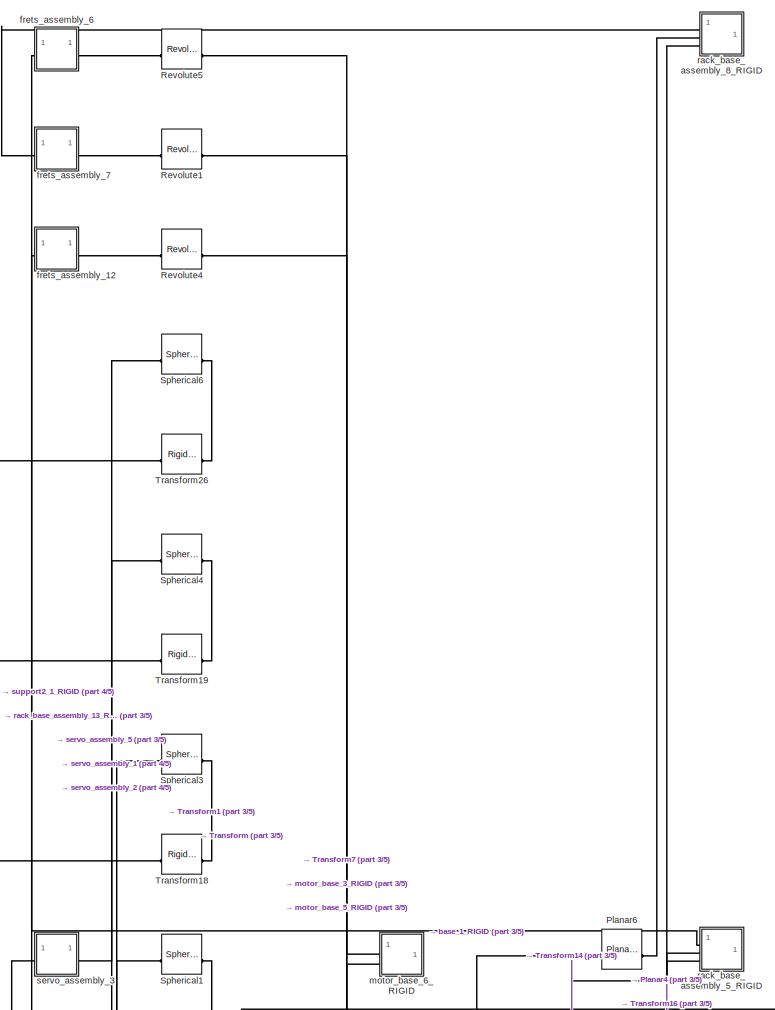
[diagram: root canvas - part 1/5, top center region]
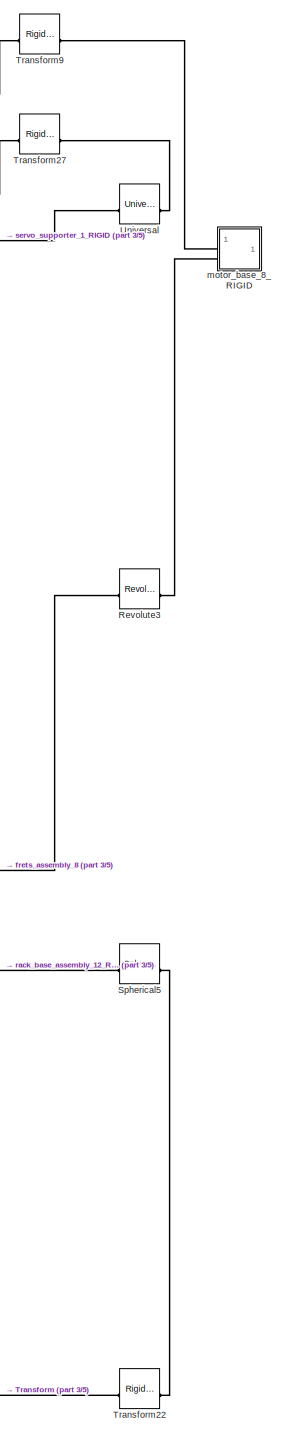
[diagram: root canvas - part 2/5, middle right region]
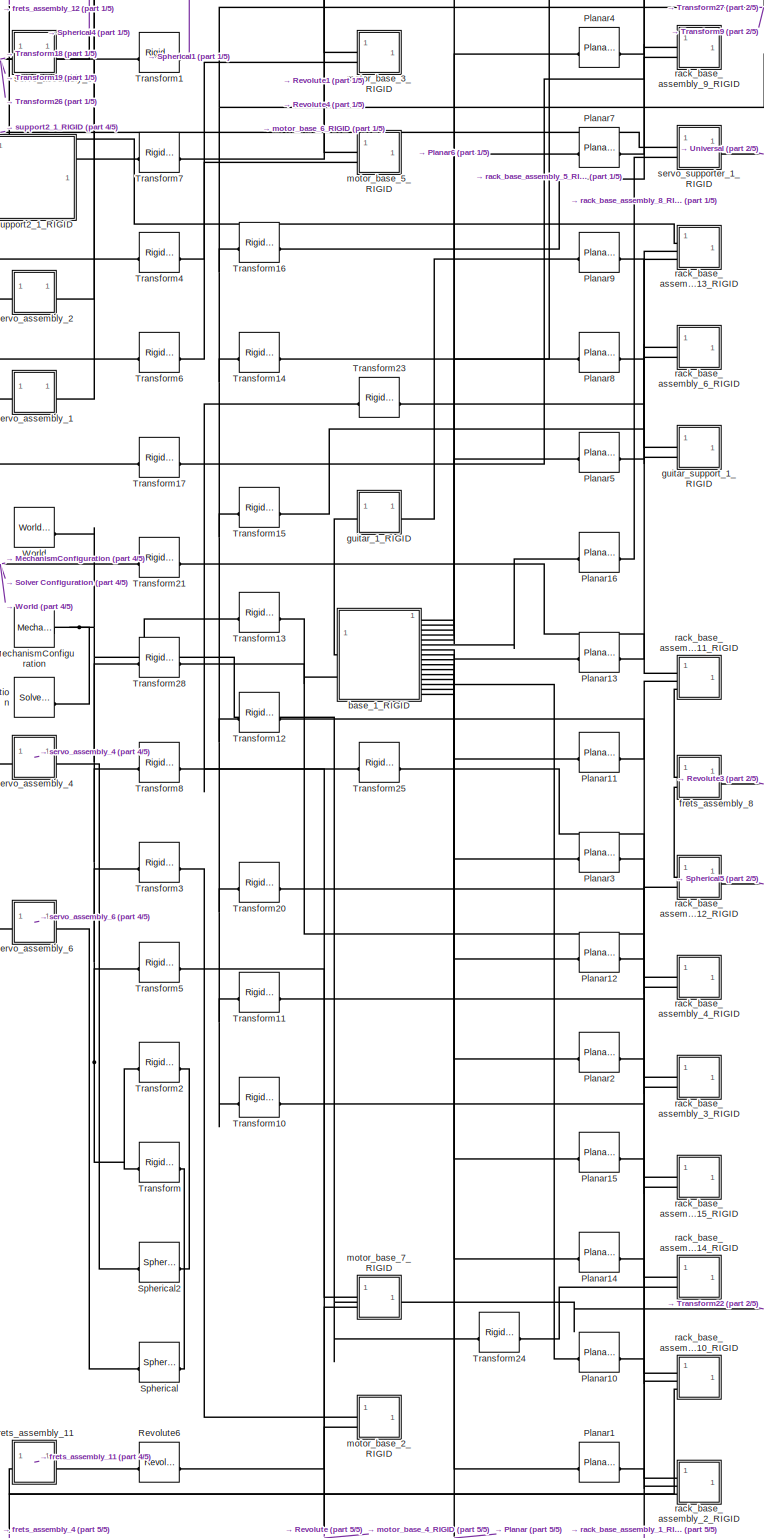
[diagram: root canvas - part 3/5, bottom center region]
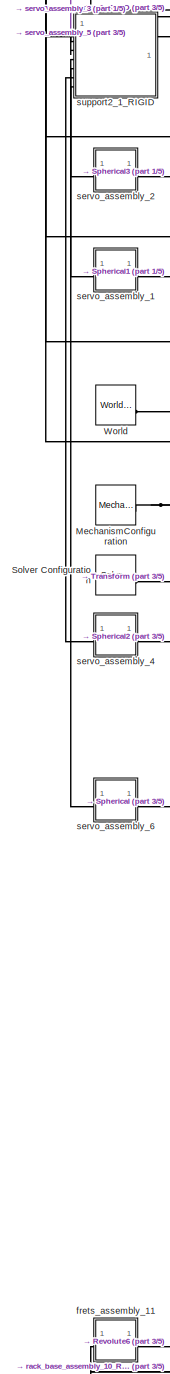
[diagram: root canvas - part 4/5, bottom left region]
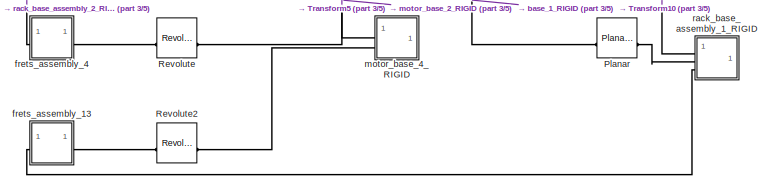
[diagram: root canvas - part 5/5, bottom center region]
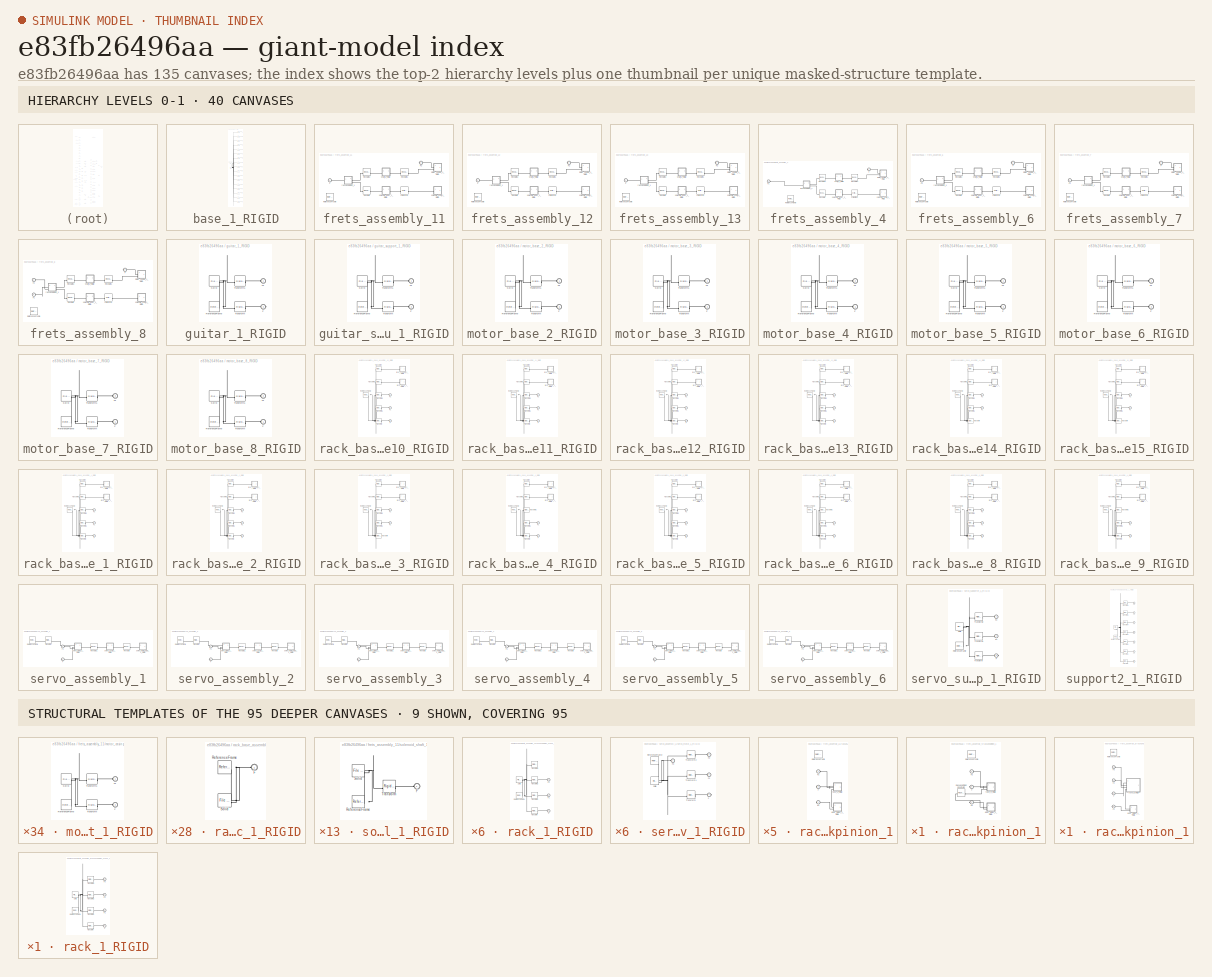
[diagram: thumbnail index - top-2 hierarchy levels (40 canvases) + 9 structural-template representatives of the remaining 95 canvases]
MODEL slx_e83fb26496aa
KIND model
CONFIG AbsTol = auto
CONFIG EnableMultiTasking = off
CONFIG FixedStep = auto
CONFIG MaxStep = auto
CONFIG MinStep = auto
CONFIG RelTol = 1e-3
CONFIG SampleTimeConstraint = Unconstrained
CONFIG SolverName = VariableStepAuto
CONFIG StartTime = 0.0
CONFIG StopTime = 10.0
WORKSPACE source: external: MATLAB File  (data not in archive)
BLOCK [Reference] MechanismConfiguration  REF=sm_lib/Utilities/Mechanism
Configuration
  SourceBlock = sm_lib/Utilities/Mechanism\nConfiguration
  SourceType = Mechanism\nConfiguration
BLOCK [Reference] Planar  REF=sm_lib/Joints/Planar Joint
  SourceBlock = sm_lib/Joints/Planar Joint
  SourceType = Planar Joint
BLOCK [Reference] Planar1  REF=sm_lib/Joints/Planar Joint
  SourceBlock = sm_lib/Joints/Planar Joint
  SourceType = Planar Joint
BLOCK [Reference] Planar10  REF=sm_lib/Joints/Planar Joint
  SourceBlock = sm_lib/Joints/Planar Joint
  SourceType = Planar Joint
BLOCK [Reference] Planar11  REF=sm_lib/Joints/Planar Joint
  SourceBlock = sm_lib/Joints/Planar Joint
  SourceType = Planar Joint
BLOCK [Reference] Planar12  REF=sm_lib/Joints/Planar Joint
  SourceBlock = sm_lib/Joints/Planar Joint
  SourceType = Planar Joint
BLOCK [Reference] Planar13  REF=sm_lib/Joints/Planar Joint
  SourceBlock = sm_lib/Joints/Planar Joint
  SourceType = Planar Joint
BLOCK [Reference] Planar14  REF=sm_lib/Joints/Planar Joint
  SourceBlock = sm_lib/Joints/Planar Joint
  SourceType = Planar Joint
BLOCK [Reference] Planar15  REF=sm_lib/Joints/Planar Joint
  SourceBlock = sm_lib/Joints/Planar Joint
  SourceType = Planar Joint
BLOCK [Reference] Planar16  REF=sm_lib/Joints/Planar Joint
  SourceBlock = sm_lib/Joints/Planar Joint
  SourceType = Planar Joint
BLOCK [Reference] Planar2  REF=sm_lib/Joints/Planar Joint
  SourceBlock = sm_lib/Joints/Planar Joint
  SourceType = Planar Joint
BLOCK [Reference] Planar3  REF=sm_lib/Joints/Planar Joint
  SourceBlock = sm_lib/Joints/Planar Joint
  SourceType = Planar Joint
BLOCK [Reference] Planar4  REF=sm_lib/Joints/Planar Joint
  SourceBlock = sm_lib/Joints/Planar Joint
  SourceType = Planar Joint
BLOCK [Reference] Planar5  REF=sm_lib/Joints/Planar Joint
  SourceBlock = sm_lib/Joints/Planar Joint
  SourceType = Planar Joint
BLOCK [Reference] Planar6  REF=sm_lib/Joints/Planar Joint
  SourceBlock = sm_lib/Joints/Planar Joint
  SourceType = Planar Joint
BLOCK [Reference] Planar7  REF=sm_lib/Joints/Planar Joint
  SourceBlock = sm_lib/Joints/Planar Joint
  SourceType = Planar Joint
BLOCK [Reference] Planar8  REF=sm_lib/Joints/Planar Joint
  SourceBlock = sm_lib/Joints/Planar Joint
  SourceType = Planar Joint
BLOCK [Reference] Planar9  REF=sm_lib/Joints/Planar Joint
  SourceBlock = sm_lib/Joints/Planar Joint
  SourceType = Planar Joint
BLOCK [Reference] Revolute  REF=sm_lib/Joints/Revolute Joint
  SourceBlock = sm_lib/Joints/Revolute Joint
  SourceType = Revolute Joint
BLOCK [Reference] Revolute1  REF=sm_lib/Joints/Revolute Joint
  SourceBlock = sm_lib/Joints/Revolute Joint
  SourceType = Revolute Joint
BLOCK [Reference] Revolute2  REF=sm_lib/Joints/Revolute Joint
  SourceBlock = sm_lib/Joints/Revolute Joint
  SourceType = Revolute Joint
BLOCK [Reference] Revolute3  REF=sm_lib/Joints/Revolute Joint
  SourceBlock = sm_lib/Joints/Revolute Joint
  SourceType = Revolute Joint
BLOCK [Reference] Revolute4  REF=sm_lib/Joints/Revolute Joint
  SourceBlock = sm_lib/Joints/Revolute Joint
  SourceType = Revolute Joint
BLOCK [Reference] Revolute5  REF=sm_lib/Joints/Revolute Joint
  SourceBlock = sm_lib/Joints/Revolute Joint
  SourceType = Revolute Joint
BLOCK [Reference] Revolute6  REF=sm_lib/Joints/Revolute Joint
  SourceBlock = sm_lib/Joints/Revolute Joint
  SourceType = Revolute Joint
BLOCK [Reference] Solver Configuration  REF=nesl_utility/Solver
Configuration
  SourceBlock = nesl_utility/Solver\nConfiguration
  SourceType = Solver\nConfiguration
BLOCK [Reference] Spherical  REF=sm_lib/Joints/Spherical
Joint
  SourceBlock = sm_lib/Joints/Spherical\nJoint
  SourceType = Spherical\nJoint
BLOCK [Reference] Spherical1  REF=sm_lib/Joints/Spherical
Joint
  SourceBlock = sm_lib/Joints/Spherical\nJoint
  SourceType = Spherical\nJoint
BLOCK [Reference] Spherical2  REF=sm_lib/Joints/Spherical
Joint
  SourceBlock = sm_lib/Joints/Spherical\nJoint
  SourceType = Spherical\nJoint
BLOCK [Reference] Spherical3  REF=sm_lib/Joints/Spherical
Joint
  SourceBlock = sm_lib/Joints/Spherical\nJoint
  SourceType = Spherical\nJoint
BLOCK [Reference] Spherical4  REF=sm_lib/Joints/Spherical
Joint
  SourceBlock = sm_lib/Joints/Spherical\nJoint
  SourceType = Spherical\nJoint
BLOCK [Reference] Spherical5  REF=sm_lib/Joints/Spherical
Joint
  SourceBlock = sm_lib/Joints/Spherical\nJoint
  SourceType = Spherical\nJoint
BLOCK [Reference] Spherical6  REF=sm_lib/Joints/Spherical
Joint
  SourceBlock = sm_lib/Joints/Spherical\nJoint
  SourceType = Spherical\nJoint
BLOCK [Reference] Transform  REF=sm_lib/Frames and
Transforms/Rigid
Transform
  SourceBlock = sm_lib/Frames and\nTransforms/Rigid\nTransform
  SourceType = Rigid\nTransform
BLOCK [Reference] Transform1  REF=sm_lib/Frames and
Transforms/Rigid
Transform
  SourceBlock = sm_lib/Frames and\nTransforms/Rigid\nTransform
  SourceType = Rigid\nTransform
BLOCK [Reference] Transform10  REF=sm_lib/Frames and
Transforms/Rigid
Transform
  SourceBlock = sm_lib/Frames and\nTransforms/Rigid\nTransform
  SourceType = Rigid\nTransform
BLOCK [Reference] Transform11  REF=sm_lib/Frames and
Transforms/Rigid
Transform
  SourceBlock = sm_lib/Frames and\nTransforms/Rigid\nTransform
  SourceType = Rigid\nTransform
BLOCK [Reference] Transform12  REF=sm_lib/Frames and
Transforms/Rigid
Transform
  SourceBlock = sm_lib/Frames and\nTransforms/Rigid\nTransform
  SourceType = Rigid\nTransform
BLOCK [Reference] Transform13  REF=sm_lib/Frames and
Transforms/Rigid
Transform
  SourceBlock = sm_lib/Frames and\nTransforms/Rigid\nTransform
  SourceType = Rigid\nTransform
BLOCK [Reference] Transform14  REF=sm_lib/Frames and
Transforms/Rigid
Transform
  SourceBlock = sm_lib/Frames and\nTransforms/Rigid\nTransform
  SourceType = Rigid\nTransform
BLOCK [Reference] Transform15  REF=sm_lib/Frames and
Transforms/Rigid
Transform
  SourceBlock = sm_lib/Frames and\nTransforms/Rigid\nTransform
  SourceType = Rigid\nTransform
BLOCK [Reference] Transform16  REF=sm_lib/Frames and
Transforms/Rigid
Transform
  SourceBlock = sm_lib/Frames and\nTransforms/Rigid\nTransform
  SourceType = Rigid\nTransform
BLOCK [Reference] Transform17  REF=sm_lib/Frames and
Transforms/Rigid
Transform
  SourceBlock = sm_lib/Frames and\nTransforms/Rigid\nTransform
  SourceType = Rigid\nTransform
BLOCK [Reference] Transform18  REF=sm_lib/Frames and
Transforms/Rigid
Transform
  SourceBlock = sm_lib/Frames and\nTransforms/Rigid\nTransform
  SourceType = Rigid\nTransform
BLOCK [Reference] Transform19  REF=sm_lib/Frames and
Transforms/Rigid
Transform
  SourceBlock = sm_lib/Frames and\nTransforms/Rigid\nTransform
  SourceType = Rigid\nTransform
BLOCK [Reference] Transform2  REF=sm_lib/Frames and
Transforms/Rigid
Transform
  SourceBlock = sm_lib/Frames and\nTransforms/Rigid\nTransform
  SourceType = Rigid\nTransform
BLOCK [Reference] Transform20  REF=sm_lib/Frames and
Transforms/Rigid
Transform
  SourceBlock = sm_lib/Frames and\nTransforms/Rigid\nTransform
  SourceType = Rigid\nTransform
BLOCK [Reference] Transform21  REF=sm_lib/Frames and
Transforms/Rigid
Transform
  SourceBlock = sm_lib/Frames and\nTransforms/Rigid\nTransform
  SourceType = Rigid\nTransform
BLOCK [Reference] Transform22  REF=sm_lib/Frames and
Transforms/Rigid
Transform
  SourceBlock = sm_lib/Frames and\nTransforms/Rigid\nTransform
  SourceType = Rigid\nTransform
BLOCK [Reference] Transform23  REF=sm_lib/Frames and
Transforms/Rigid
Transform
  SourceBlock = sm_lib/Frames and\nTransforms/Rigid\nTransform
  SourceType = Rigid\nTransform
BLOCK [Reference] Transform24  REF=sm_lib/Frames and
Transforms/Rigid
Transform
  SourceBlock = sm_lib/Frames and\nTransforms/Rigid\nTransform
  SourceType = Rigid\nTransform
BLOCK [Reference] Transform25  REF=sm_lib/Frames and
Transforms/Rigid
Transform
  SourceBlock = sm_lib/Frames and\nTransforms/Rigid\nTransform
  SourceType = Rigid\nTransform
BLOCK [Reference] Transform26  REF=sm_lib/Frames and
Transforms/Rigid
Transform
  SourceBlock = sm_lib/Frames and\nTransforms/Rigid\nTransform
  SourceType = Rigid\nTransform
BLOCK [Reference] Transform27  REF=sm_lib/Frames and
Transforms/Rigid
Transform
  SourceBlock = sm_lib/Frames and\nTransforms/Rigid\nTransform
  SourceType = Rigid\nTransform
BLOCK [Reference] Transform28  REF=sm_lib/Frames and
Transforms/Rigid
Transform
  SourceBlock = sm_lib/Frames and\nTransforms/Rigid\nTransform
  SourceType = Rigid\nTransform
BLOCK [Reference] Transform3  REF=sm_lib/Frames and
Transforms/Rigid
Transform
  SourceBlock = sm_lib/Frames and\nTransforms/Rigid\nTransform
  SourceType = Rigid\nTransform
BLOCK [Reference] Transform4  REF=sm_lib/Frames and
Transforms/Rigid
Transform
  SourceBlock = sm_lib/Frames and\nTransforms/Rigid\nTransform
  SourceType = Rigid\nTransform
BLOCK [Reference] Transform5  REF=sm_lib/Frames and
Transforms/Rigid
Transform
  SourceBlock = sm_lib/Frames and\nTransforms/Rigid\nTransform
  SourceType = Rigid\nTransform
BLOCK [Reference] Transform6  REF=sm_lib/Frames and
Transforms/Rigid
Transform
  SourceBlock = sm_lib/Frames and\nTransforms/Rigid\nTransform
  SourceType = Rigid\nTransform
BLOCK [Reference] Transform7  REF=sm_lib/Frames and
Transforms/Rigid
Transform
  SourceBlock = sm_lib/Frames and\nTransforms/Rigid\nTransform
  SourceType = Rigid\nTransform
BLOCK [Reference] Transform8  REF=sm_lib/Frames and
Transforms/Rigid
Transform
  SourceBlock = sm_lib/Frames and\nTransforms/Rigid\nTransform
  SourceType = Rigid\nTransform
BLOCK [Reference] Transform9  REF=sm_lib/Frames and
Transforms/Rigid
Transform
  SourceBlock = sm_lib/Frames and\nTransforms/Rigid\nTransform
  SourceType = Rigid\nTransform
BLOCK [Reference] Universal  REF=sm_lib/Joints/Universal
Joint
  SourceBlock = sm_lib/Joints/Universal\nJoint
  SourceType = Universal\nJoint
BLOCK [Reference] World  REF=sm_lib/Frames and
Transforms/World Frame
  SourceBlock = sm_lib/Frames and\nTransforms/World Frame
  SourceType = World Frame
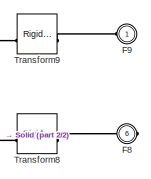
[diagram: base_1_RIGID - part 1/2, top right region]
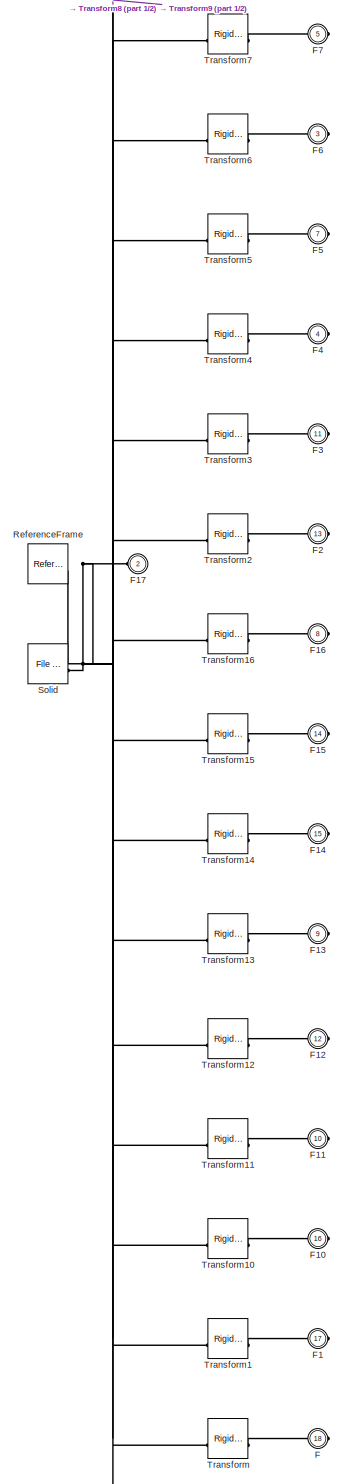
[diagram: base_1_RIGID - part 2/2, most of the canvas]
BLOCK [SubSystem] base_1_RIGID
BLOCK [PMIOPort] base_1_RIGID/F
  Port = 18
  Side = Right
BLOCK [PMIOPort] base_1_RIGID/F1
  Port = 17
  Side = Right
BLOCK [PMIOPort] base_1_RIGID/F10
  Port = 16
  Side = Right
BLOCK [PMIOPort] base_1_RIGID/F11
  Port = 10
  Side = Right
BLOCK [PMIOPort] base_1_RIGID/F12
  Port = 12
  Side = Right
BLOCK [PMIOPort] base_1_RIGID/F13
  Port = 9
  Side = Right
BLOCK [PMIOPort] base_1_RIGID/F14
  Port = 15
  Side = Right
BLOCK [PMIOPort] base_1_RIGID/F15
  Port = 14
  Side = Right
BLOCK [PMIOPort] base_1_RIGID/F16
  Port = 8
  Side = Right
BLOCK [PMIOPort] base_1_RIGID/F17
  Port = 2
  Side = Left
BLOCK [PMIOPort] base_1_RIGID/F2
  Port = 13
  Side = Right
BLOCK [PMIOPort] base_1_RIGID/F3
  Port = 11
  Side = Right
BLOCK [PMIOPort] base_1_RIGID/F4
  Port = 4
  Side = Right
BLOCK [PMIOPort] base_1_RIGID/F5
  Port = 7
  Side = Right
BLOCK [PMIOPort] base_1_RIGID/F6
  Port = 3
  Side = Right
BLOCK [PMIOPort] base_1_RIGID/F7
  Port = 5
  Side = Right
BLOCK [PMIOPort] base_1_RIGID/F8
  Port = 6
  Side = Right
BLOCK [PMIOPort] base_1_RIGID/F9
  Side = Left
BLOCK [Reference] base_1_RIGID/ReferenceFrame  REF=sm_lib/Frames and
Transforms/Reference
Frame
  SourceBlock = sm_lib/Frames and\nTransforms/Reference\nFrame
  SourceType = Reference\nFrame
BLOCK [Reference] base_1_RIGID/Solid  REF=sm_lib/Body Elements/File Solid
  SourceBlock = sm_lib/Body Elements/File Solid
  SourceType = File Solid
BLOCK [Reference] base_1_RIGID/Transform  REF=sm_lib/Frames and
Transforms/Rigid
Transform
  SourceBlock = sm_lib/Frames and\nTransforms/Rigid\nTransform
  SourceType = Rigid\nTransform
BLOCK [Reference] base_1_RIGID/Transform1  REF=sm_lib/Frames and
Transforms/Rigid
Transform
  SourceBlock = sm_lib/Frames and\nTransforms/Rigid\nTransform
  SourceType = Rigid\nTransform
BLOCK [Reference] base_1_RIGID/Transform10  REF=sm_lib/Frames and
Transforms/Rigid
Transform
  SourceBlock = sm_lib/Frames and\nTransforms/Rigid\nTransform
  SourceType = Rigid\nTransform
BLOCK [Reference] base_1_RIGID/Transform11  REF=sm_lib/Frames and
Transforms/Rigid
Transform
  SourceBlock = sm_lib/Frames and\nTransforms/Rigid\nTransform
  SourceType = Rigid\nTransform
BLOCK [Reference] base_1_RIGID/Transform12  REF=sm_lib/Frames and
Transforms/Rigid
Transform
  SourceBlock = sm_lib/Frames and\nTransforms/Rigid\nTransform
  SourceType = Rigid\nTransform
BLOCK [Reference] base_1_RIGID/Transform13  REF=sm_lib/Frames and
Transforms/Rigid
Transform
  SourceBlock = sm_lib/Frames and\nTransforms/Rigid\nTransform
  SourceType = Rigid\nTransform
BLOCK [Reference] base_1_RIGID/Transform14  REF=sm_lib/Frames and
Transforms/Rigid
Transform
  SourceBlock = sm_lib/Frames and\nTransforms/Rigid\nTransform
  SourceType = Rigid\nTransform
BLOCK [Reference] base_1_RIGID/Transform15  REF=sm_lib/Frames and
Transforms/Rigid
Transform
  SourceBlock = sm_lib/Frames and\nTransforms/Rigid\nTransform
  SourceType = Rigid\nTransform
BLOCK [Reference] base_1_RIGID/Transform16  REF=sm_lib/Frames and
Transforms/Rigid
Transform
  SourceBlock = sm_lib/Frames and\nTransforms/Rigid\nTransform
  SourceType = Rigid\nTransform
BLOCK [Reference] base_1_RIGID/Transform2  REF=sm_lib/Frames and
Transforms/Rigid
Transform
  SourceBlock = sm_lib/Frames and\nTransforms/Rigid\nTransform
  SourceType = Rigid\nTransform
BLOCK [Reference] base_1_RIGID/Transform3  REF=sm_lib/Frames and
Transforms/Rigid
Transform
  SourceBlock = sm_lib/Frames and\nTransforms/Rigid\nTransform
  SourceType = Rigid\nTransform
BLOCK [Reference] base_1_RIGID/Transform4  REF=sm_lib/Frames and
Transforms/Rigid
Transform
  SourceBlock = sm_lib/Frames and\nTransforms/Rigid\nTransform
  SourceType = Rigid\nTransform
BLOCK [Reference] base_1_RIGID/Transform5  REF=sm_lib/Frames and
Transforms/Rigid
Transform
  SourceBlock = sm_lib/Frames and\nTransforms/Rigid\nTransform
  SourceType = Rigid\nTransform
BLOCK [Reference] base_1_RIGID/Transform6  REF=sm_lib/Frames and
Transforms/Rigid
Transform
  SourceBlock = sm_lib/Frames and\nTransforms/Rigid\nTransform
  SourceType = Rigid\nTransform
BLOCK [Reference] base_1_RIGID/Transform7  REF=sm_lib/Frames and
Transforms/Rigid
Transform
  SourceBlock = sm_lib/Frames and\nTransforms/Rigid\nTransform
  SourceType = Rigid\nTransform
BLOCK [Reference] base_1_RIGID/Transform8  REF=sm_lib/Frames and
Transforms/Rigid
Transform
  SourceBlock = sm_lib/Frames and\nTransforms/Rigid\nTransform
  SourceType = Rigid\nTransform
BLOCK [Reference] base_1_RIGID/Transform9  REF=sm_lib/Frames and
Transforms/Rigid
Transform
  SourceBlock = sm_lib/Frames and\nTransforms/Rigid\nTransform
  SourceType = Rigid\nTransform
BLOCK [SubSystem] frets_assembly_11
BLOCK [Reference] frets_assembly_11/Cylindrical  REF=sm_lib/Joints/Cylindrical
Joint
  SourceBlock = sm_lib/Joints/Cylindrical\nJoint
  SourceType = Cylindrical\nJoint
BLOCK [PMIOPort] frets_assembly_11/F
  Side = Left
BLOCK [PMIOPort] frets_assembly_11/F2
  Port = 2
  Side = Right
BLOCK [Reference] frets_assembly_11/ReferenceFrame  REF=sm_lib/Frames and
Transforms/Reference
Frame
  SourceBlock = sm_lib/Frames and\nTransforms/Reference\nFrame
  SourceType = Reference\nFrame
BLOCK [Reference] frets_assembly_11/Revolute  REF=sm_lib/Joints/Revolute Joint
  SourceBlock = sm_lib/Joints/Revolute Joint
  SourceType = Revolute Joint
BLOCK [Reference] frets_assembly_11/Revolute1  REF=sm_lib/Joints/Revolute Joint
  SourceBlock = sm_lib/Joints/Revolute Joint
  SourceType = Revolute Joint
BLOCK [Reference] frets_assembly_11/Revolute2  REF=sm_lib/Joints/Revolute Joint
  SourceBlock = sm_lib/Joints/Revolute Joint
  SourceType = Revolute Joint
BLOCK [SubSystem] frets_assembly_11/motor_casing_1_RIGID
BLOCK [PMIOPort] frets_assembly_11/motor_casing_1_RIGID/F
  Port = 2
  Side = Left
BLOCK [PMIOPort] frets_assembly_11/motor_casing_1_RIGID/F1
  Side = Left
BLOCK [Reference] frets_assembly_11/motor_casing_1_RIGID/ReferenceFrame  REF=sm_lib/Frames and
Transforms/Reference
Frame
  SourceBlock = sm_lib/Frames and\nTransforms/Reference\nFrame
  SourceType = Reference\nFrame
BLOCK [Reference] frets_assembly_11/motor_casing_1_RIGID/Solid  REF=sm_lib/Body Elements/File Solid
  SourceBlock = sm_lib/Body Elements/File Solid
  SourceType = File Solid
BLOCK [Reference] frets_assembly_11/motor_casing_1_RIGID/Transform  REF=sm_lib/Frames and
Transforms/Rigid
Transform
  SourceBlock = sm_lib/Frames and\nTransforms/Rigid\nTransform
  SourceType = Rigid\nTransform
BLOCK [Reference] frets_assembly_11/motor_casing_1_RIGID/Transform1  REF=sm_lib/Frames and
Transforms/Rigid
Transform
  SourceBlock = sm_lib/Frames and\nTransforms/Rigid\nTransform
  SourceType = Rigid\nTransform
BLOCK [SubSystem] frets_assembly_11/rackandpinion_1
BLOCK [PMIOPort] frets_assembly_11/rackandpinion_1/F
  Port = 3
  Side = Right
BLOCK [PMIOPort] frets_assembly_11/rackandpinion_1/F1
  Port = 2
  Side = Right
BLOCK [PMIOPort] frets_assembly_11/rackandpinion_1/F2
  Side = Left
BLOCK [Reference] frets_assembly_11/rackandpinion_1/ReferenceFrame  REF=sm_lib/Frames and
Transforms/Reference
Frame
  SourceBlock = sm_lib/Frames and\nTransforms/Reference\nFrame
  SourceType = Reference\nFrame
BLOCK [SubSystem] frets_assembly_11/rackandpinion_1/gear_pinion_1_RIGID
BLOCK [PMIOPort] frets_assembly_11/rackandpinion_1/gear_pinion_1_RIGID/F
  Side = Left
BLOCK [PMIOPort] frets_assembly_11/rackandpinion_1/gear_pinion_1_RIGID/F1
  Port = 2
  Side = Left
BLOCK [Reference] frets_assembly_11/rackandpinion_1/gear_pinion_1_RIGID/ReferenceFrame  REF=sm_lib/Frames and
Transforms/Reference
Frame
  SourceBlock = sm_lib/Frames and\nTransforms/Reference\nFrame
  SourceType = Reference\nFrame
BLOCK [Reference] frets_assembly_11/rackandpinion_1/gear_pinion_1_RIGID/Solid  REF=sm_lib/Body Elements/File Solid
  SourceBlock = sm_lib/Body Elements/File Solid
  SourceType = File Solid
BLOCK [Reference] frets_assembly_11/rackandpinion_1/gear_pinion_1_RIGID/Transform  REF=sm_lib/Frames and
Transforms/Rigid
Transform
  SourceBlock = sm_lib/Frames and\nTransforms/Rigid\nTransform
  SourceType = Rigid\nTransform
BLOCK [Reference] frets_assembly_11/rackandpinion_1/gear_pinion_1_RIGID/Transform1  REF=sm_lib/Frames and
Transforms/Rigid
Transform
  SourceBlock = sm_lib/Frames and\nTransforms/Rigid\nTransform
  SourceType = Rigid\nTransform
BLOCK [SubSystem] frets_assembly_11/rackandpinion_1/rack_1_RIGID
BLOCK [PMIOPort] frets_assembly_11/rackandpinion_1/rack_1_RIGID/F
  Port = 3
  Side = Left
BLOCK [PMIOPort] frets_assembly_11/rackandpinion_1/rack_1_RIGID/F1
  Side = Left
BLOCK [PMIOPort] frets_assembly_11/rackandpinion_1/rack_1_RIGID/F2
  Port = 2
  Side = Left
BLOCK [Reference] frets_assembly_11/rackandpinion_1/rack_1_RIGID/ReferenceFrame  REF=sm_lib/Frames and
Transforms/Reference
Frame
  SourceBlock = sm_lib/Frames and\nTransforms/Reference\nFrame
  SourceType = Reference\nFrame
BLOCK [Reference] frets_assembly_11/rackandpinion_1/rack_1_RIGID/Solid  REF=sm_lib/Body Elements/File Solid
  SourceBlock = sm_lib/Body Elements/File Solid
  SourceType = File Solid
BLOCK [Reference] frets_assembly_11/rackandpinion_1/rack_1_RIGID/Transform  REF=sm_lib/Frames and
Transforms/Rigid
Transform
  SourceBlock = sm_lib/Frames and\nTransforms/Rigid\nTransform
  SourceType = Rigid\nTransform
BLOCK [Reference] frets_assembly_11/rackandpinion_1/rack_1_RIGID/Transform1  REF=sm_lib/Frames and
Transforms/Rigid
Transform
  SourceBlock = sm_lib/Frames and\nTransforms/Rigid\nTransform
  SourceType = Rigid\nTransform
BLOCK [Reference] frets_assembly_11/rackandpinion_1/rack_1_RIGID/Transform2  REF=sm_lib/Frames and
Transforms/Rigid
Transform
  SourceBlock = sm_lib/Frames and\nTransforms/Rigid\nTransform
  SourceType = Rigid\nTransform
BLOCK [Reference] frets_assembly_11/rackandpinion_1/rack_1_RIGID/Transform3  REF=sm_lib/Frames and
Transforms/Rigid
Transform
  SourceBlock = sm_lib/Frames and\nTransforms/Rigid\nTransform
  SourceType = Rigid\nTransform
BLOCK [SubSystem] frets_assembly_11/shaft_2_RIGID
BLOCK [PMIOPort] frets_assembly_11/shaft_2_RIGID/F
  Port = 2
  Side = Right
BLOCK [PMIOPort] frets_assembly_11/shaft_2_RIGID/F1
  Side = Left
BLOCK [Reference] frets_assembly_11/shaft_2_RIGID/ReferenceFrame  REF=sm_lib/Frames and
Transforms/Reference
Frame
  SourceBlock = sm_lib/Frames and\nTransforms/Reference\nFrame
  SourceType = Reference\nFrame
BLOCK [Reference] frets_assembly_11/shaft_2_RIGID/Solid  REF=sm_lib/Body Elements/File Solid
  SourceBlock = sm_lib/Body Elements/File Solid
  SourceType = File Solid
BLOCK [Reference] frets_assembly_11/shaft_2_RIGID/Transform  REF=sm_lib/Frames and
Transforms/Rigid
Transform
  SourceBlock = sm_lib/Frames and\nTransforms/Rigid\nTransform
  SourceType = Rigid\nTransform
BLOCK [Reference] frets_assembly_11/shaft_2_RIGID/Transform1  REF=sm_lib/Frames and
Transforms/Rigid
Transform
  SourceBlock = sm_lib/Frames and\nTransforms/Rigid\nTransform
  SourceType = Rigid\nTransform
BLOCK [SubSystem] frets_assembly_11/solenoid_body_1_RIGID
BLOCK [PMIOPort] frets_assembly_11/solenoid_body_1_RIGID/F
  Side = Left
BLOCK [PMIOPort] frets_assembly_11/solenoid_body_1_RIGID/F1
  Port = 2
  Side = Right
BLOCK [Reference] frets_assembly_11/solenoid_body_1_RIGID/ReferenceFrame  REF=sm_lib/Frames and
Transforms/Reference
Frame
  SourceBlock = sm_lib/Frames and\nTransforms/Reference\nFrame
  SourceType = Reference\nFrame
BLOCK [Reference] frets_assembly_11/solenoid_body_1_RIGID/Solid  REF=sm_lib/Body Elements/File Solid
  SourceBlock = sm_lib/Body Elements/File Solid
  SourceType = File Solid
BLOCK [Reference] frets_assembly_11/solenoid_body_1_RIGID/Transform  REF=sm_lib/Frames and
Transforms/Rigid
Transform
  SourceBlock = sm_lib/Frames and\nTransforms/Rigid\nTransform
  SourceType = Rigid\nTransform
BLOCK [Reference] frets_assembly_11/solenoid_body_1_RIGID/Transform1  REF=sm_lib/Frames and
Transforms/Rigid
Transform
  SourceBlock = sm_lib/Frames and\nTransforms/Rigid\nTransform
  SourceType = Rigid\nTransform
BLOCK [SubSystem] frets_assembly_11/solenoid_shaft_1_RIGID
BLOCK [PMIOPort] frets_assembly_11/solenoid_shaft_1_RIGID/F
  Side = Left
BLOCK [Reference] frets_assembly_11/solenoid_shaft_1_RIGID/ReferenceFrame  REF=sm_lib/Frames and
Transforms/Reference
Frame
  SourceBlock = sm_lib/Frames and\nTransforms/Reference\nFrame
  SourceType = Reference\nFrame
BLOCK [Reference] frets_assembly_11/solenoid_shaft_1_RIGID/Solid  REF=sm_lib/Body Elements/File Solid
  SourceBlock = sm_lib/Body Elements/File Solid
  SourceType = File Solid
BLOCK [Reference] frets_assembly_11/solenoid_shaft_1_RIGID/Transform  REF=sm_lib/Frames and
Transforms/Rigid
Transform
  SourceBlock = sm_lib/Frames and\nTransforms/Rigid\nTransform
  SourceType = Rigid\nTransform
BLOCK [SubSystem] frets_assembly_12
BLOCK [Reference] frets_assembly_12/Cylindrical  REF=sm_lib/Joints/Cylindrical
Joint
  SourceBlock = sm_lib/Joints/Cylindrical\nJoint
  SourceType = Cylindrical\nJoint
BLOCK [PMIOPort] frets_assembly_12/F
  Side = Left
BLOCK [PMIOPort] frets_assembly_12/F2
  Port = 2
  Side = Right
BLOCK [Reference] frets_assembly_12/ReferenceFrame  REF=sm_lib/Frames and
Transforms/Reference
Frame
  SourceBlock = sm_lib/Frames and\nTransforms/Reference\nFrame
  SourceType = Reference\nFrame
BLOCK [Reference] frets_assembly_12/Revolute  REF=sm_lib/Joints/Revolute Joint
  SourceBlock = sm_lib/Joints/Revolute Joint
  SourceType = Revolute Joint
BLOCK [Reference] frets_assembly_12/Revolute1  REF=sm_lib/Joints/Revolute Joint
  SourceBlock = sm_lib/Joints/Revolute Joint
  SourceType = Revolute Joint
BLOCK [Reference] frets_assembly_12/Revolute2  REF=sm_lib/Joints/Revolute Joint
  SourceBlock = sm_lib/Joints/Revolute Joint
  SourceType = Revolute Joint
BLOCK [SubSystem] frets_assembly_12/motor_casing_1_RIGID
BLOCK [PMIOPort] frets_assembly_12/motor_casing_1_RIGID/F
  Port = 2
  Side = Left
BLOCK [PMIOPort] frets_assembly_12/motor_casing_1_RIGID/F1
  Side = Left
BLOCK [Reference] frets_assembly_12/motor_casing_1_RIGID/ReferenceFrame  REF=sm_lib/Frames and
Transforms/Reference
Frame
  SourceBlock = sm_lib/Frames and\nTransforms/Reference\nFrame
  SourceType = Reference\nFrame
BLOCK [Reference] frets_assembly_12/motor_casing_1_RIGID/Solid  REF=sm_lib/Body Elements/File Solid
  SourceBlock = sm_lib/Body Elements/File Solid
  SourceType = File Solid
BLOCK [Reference] frets_assembly_12/motor_casing_1_RIGID/Transform  REF=sm_lib/Frames and
Transforms/Rigid
Transform
  SourceBlock = sm_lib/Frames and\nTransforms/Rigid\nTransform
  SourceType = Rigid\nTransform
BLOCK [Reference] frets_assembly_12/motor_casing_1_RIGID/Transform1  REF=sm_lib/Frames and
Transforms/Rigid
Transform
  SourceBlock = sm_lib/Frames and\nTransforms/Rigid\nTransform
  SourceType = Rigid\nTransform
BLOCK [SubSystem] frets_assembly_12/rackandpinion_1
BLOCK [PMIOPort] frets_assembly_12/rackandpinion_1/F
  Port = 3
  Side = Right
BLOCK [PMIOPort] frets_assembly_12/rackandpinion_1/F1
  Port = 2
  Side = Right
BLOCK [PMIOPort] frets_assembly_12/rackandpinion_1/F2
  Side = Left
BLOCK [Reference] frets_assembly_12/rackandpinion_1/ReferenceFrame  REF=sm_lib/Frames and
Transforms/Reference
Frame
  SourceBlock = sm_lib/Frames and\nTransforms/Reference\nFrame
  SourceType = Reference\nFrame
BLOCK [SubSystem] frets_assembly_12/rackandpinion_1/gear_pinion_1_RIGID
BLOCK [PMIOPort] frets_assembly_12/rackandpinion_1/gear_pinion_1_RIGID/F
  Side = Left
BLOCK [PMIOPort] frets_assembly_12/rackandpinion_1/gear_pinion_1_RIGID/F1
  Port = 2
  Side = Left
BLOCK [Reference] frets_assembly_12/rackandpinion_1/gear_pinion_1_RIGID/ReferenceFrame  REF=sm_lib/Frames and
Transforms/Reference
Frame
  SourceBlock = sm_lib/Frames and\nTransforms/Reference\nFrame
  SourceType = Reference\nFrame
BLOCK [Reference] frets_assembly_12/rackandpinion_1/gear_pinion_1_RIGID/Solid  REF=sm_lib/Body Elements/File Solid
  SourceBlock = sm_lib/Body Elements/File Solid
  SourceType = File Solid
BLOCK [Reference] frets_assembly_12/rackandpinion_1/gear_pinion_1_RIGID/Transform  REF=sm_lib/Frames and
Transforms/Rigid
Transform
  SourceBlock = sm_lib/Frames and\nTransforms/Rigid\nTransform
  SourceType = Rigid\nTransform
BLOCK [Reference] frets_assembly_12/rackandpinion_1/gear_pinion_1_RIGID/Transform1  REF=sm_lib/Frames and
Transforms/Rigid
Transform
  SourceBlock = sm_lib/Frames and\nTransforms/Rigid\nTransform
  SourceType = Rigid\nTransform
BLOCK [SubSystem] frets_assembly_12/rackandpinion_1/rack_1_RIGID
BLOCK [PMIOPort] frets_assembly_12/rackandpinion_1/rack_1_RIGID/F
  Port = 3
  Side = Left
BLOCK [PMIOPort] frets_assembly_12/rackandpinion_1/rack_1_RIGID/F1
  Side = Left
BLOCK [PMIOPort] frets_assembly_12/rackandpinion_1/rack_1_RIGID/F2
  Port = 2
  Side = Left
BLOCK [Reference] frets_assembly_12/rackandpinion_1/rack_1_RIGID/ReferenceFrame  REF=sm_lib/Frames and
Transforms/Reference
Frame
  SourceBlock = sm_lib/Frames and\nTransforms/Reference\nFrame
  SourceType = Reference\nFrame
BLOCK [Reference] frets_assembly_12/rackandpinion_1/rack_1_RIGID/Solid  REF=sm_lib/Body Elements/File Solid
  SourceBlock = sm_lib/Body Elements/File Solid
  SourceType = File Solid
BLOCK [Reference] frets_assembly_12/rackandpinion_1/rack_1_RIGID/Transform  REF=sm_lib/Frames and
Transforms/Rigid
Transform
  SourceBlock = sm_lib/Frames and\nTransforms/Rigid\nTransform
  SourceType = Rigid\nTransform
BLOCK [Reference] frets_assembly_12/rackandpinion_1/rack_1_RIGID/Transform1  REF=sm_lib/Frames and
Transforms/Rigid
Transform
  SourceBlock = sm_lib/Frames and\nTransforms/Rigid\nTransform
  SourceType = Rigid\nTransform
BLOCK [Reference] frets_assembly_12/rackandpinion_1/rack_1_RIGID/Transform2  REF=sm_lib/Frames and
Transforms/Rigid
Transform
  SourceBlock = sm_lib/Frames and\nTransforms/Rigid\nTransform
  SourceType = Rigid\nTransform
BLOCK [Reference] frets_assembly_12/rackandpinion_1/rack_1_RIGID/Transform3  REF=sm_lib/Frames and
Transforms/Rigid
Transform
  SourceBlock = sm_lib/Frames and\nTransforms/Rigid\nTransform
  SourceType = Rigid\nTransform
BLOCK [SubSystem] frets_assembly_12/shaft_2_RIGID
BLOCK [PMIOPort] frets_assembly_12/shaft_2_RIGID/F
  Port = 2
  Side = Right
BLOCK [PMIOPort] frets_assembly_12/shaft_2_RIGID/F1
  Side = Left
BLOCK [Reference] frets_assembly_12/shaft_2_RIGID/ReferenceFrame  REF=sm_lib/Frames and
Transforms/Reference
Frame
  SourceBlock = sm_lib/Frames and\nTransforms/Reference\nFrame
  SourceType = Reference\nFrame
BLOCK [Reference] frets_assembly_12/shaft_2_RIGID/Solid  REF=sm_lib/Body Elements/File Solid
  SourceBlock = sm_lib/Body Elements/File Solid
  SourceType = File Solid
BLOCK [Reference] frets_assembly_12/shaft_2_RIGID/Transform  REF=sm_lib/Frames and
Transforms/Rigid
Transform
  SourceBlock = sm_lib/Frames and\nTransforms/Rigid\nTransform
  SourceType = Rigid\nTransform
BLOCK [Reference] frets_assembly_12/shaft_2_RIGID/Transform1  REF=sm_lib/Frames and
Transforms/Rigid
Transform
  SourceBlock = sm_lib/Frames and\nTransforms/Rigid\nTransform
  SourceType = Rigid\nTransform
BLOCK [SubSystem] frets_assembly_12/solenoid_body_1_RIGID
BLOCK [PMIOPort] frets_assembly_12/solenoid_body_1_RIGID/F
  Side = Left
BLOCK [PMIOPort] frets_assembly_12/solenoid_body_1_RIGID/F1
  Port = 2
  Side = Right
BLOCK [Reference] frets_assembly_12/solenoid_body_1_RIGID/ReferenceFrame  REF=sm_lib/Frames and
Transforms/Reference
Frame
  SourceBlock = sm_lib/Frames and\nTransforms/Reference\nFrame
  SourceType = Reference\nFrame
BLOCK [Reference] frets_assembly_12/solenoid_body_1_RIGID/Solid  REF=sm_lib/Body Elements/File Solid
  SourceBlock = sm_lib/Body Elements/File Solid
  SourceType = File Solid
BLOCK [Reference] frets_assembly_12/solenoid_body_1_RIGID/Transform  REF=sm_lib/Frames and
Transforms/Rigid
Transform
  SourceBlock = sm_lib/Frames and\nTransforms/Rigid\nTransform
  SourceType = Rigid\nTransform
BLOCK [Reference] frets_assembly_12/solenoid_body_1_RIGID/Transform1  REF=sm_lib/Frames and
Transforms/Rigid
Transform
  SourceBlock = sm_lib/Frames and\nTransforms/Rigid\nTransform
  SourceType = Rigid\nTransform
BLOCK [SubSystem] frets_assembly_12/solenoid_shaft_1_RIGID
BLOCK [PMIOPort] frets_assembly_12/solenoid_shaft_1_RIGID/F
  Side = Left
BLOCK [Reference] frets_assembly_12/solenoid_shaft_1_RIGID/ReferenceFrame  REF=sm_lib/Frames and
Transforms/Reference
Frame
  SourceBlock = sm_lib/Frames and\nTransforms/Reference\nFrame
  SourceType = Reference\nFrame
BLOCK [Reference] frets_assembly_12/solenoid_shaft_1_RIGID/Solid  REF=sm_lib/Body Elements/File Solid
  SourceBlock = sm_lib/Body Elements/File Solid
  SourceType = File Solid
BLOCK [Reference] frets_assembly_12/solenoid_shaft_1_RIGID/Transform  REF=sm_lib/Frames and
Transforms/Rigid
Transform
  SourceBlock = sm_lib/Frames and\nTransforms/Rigid\nTransform
  SourceType = Rigid\nTransform
BLOCK [SubSystem] frets_assembly_13
BLOCK [Reference] frets_assembly_13/Cylindrical  REF=sm_lib/Joints/Cylindrical
Joint
  SourceBlock = sm_lib/Joints/Cylindrical\nJoint
  SourceType = Cylindrical\nJoint
BLOCK [PMIOPort] frets_assembly_13/F
  Side = Left
BLOCK [PMIOPort] frets_assembly_13/F2
  Port = 2
  Side = Right
BLOCK [Reference] frets_assembly_13/ReferenceFrame  REF=sm_lib/Frames and
Transforms/Reference
Frame
  SourceBlock = sm_lib/Frames and\nTransforms/Reference\nFrame
  SourceType = Reference\nFrame
BLOCK [Reference] frets_assembly_13/Revolute  REF=sm_lib/Joints/Revolute Joint
  SourceBlock = sm_lib/Joints/Revolute Joint
  SourceType = Revolute Joint
BLOCK [Reference] frets_assembly_13/Revolute1  REF=sm_lib/Joints/Revolute Joint
  SourceBlock = sm_lib/Joints/Revolute Joint
  SourceType = Revolute Joint
BLOCK [Reference] frets_assembly_13/Revolute2  REF=sm_lib/Joints/Revolute Joint
  SourceBlock = sm_lib/Joints/Revolute Joint
  SourceType = Revolute Joint
BLOCK [SubSystem] frets_assembly_13/motor_casing_1_RIGID
BLOCK [PMIOPort] frets_assembly_13/motor_casing_1_RIGID/F
  Port = 2
  Side = Left
BLOCK [PMIOPort] frets_assembly_13/motor_casing_1_RIGID/F1
  Side = Left
BLOCK [Reference] frets_assembly_13/motor_casing_1_RIGID/ReferenceFrame  REF=sm_lib/Frames and
Transforms/Reference
Frame
  SourceBlock = sm_lib/Frames and\nTransforms/Reference\nFrame
  SourceType = Reference\nFrame
BLOCK [Reference] frets_assembly_13/motor_casing_1_RIGID/Solid  REF=sm_lib/Body Elements/File Solid
  SourceBlock = sm_lib/Body Elements/File Solid
  SourceType = File Solid
BLOCK [Reference] frets_assembly_13/motor_casing_1_RIGID/Transform  REF=sm_lib/Frames and
Transforms/Rigid
Transform
  SourceBlock = sm_lib/Frames and\nTransforms/Rigid\nTransform
  SourceType = Rigid\nTransform
BLOCK [Reference] frets_assembly_13/motor_casing_1_RIGID/Transform1  REF=sm_lib/Frames and
Transforms/Rigid
Transform
  SourceBlock = sm_lib/Frames and\nTransforms/Rigid\nTransform
  SourceType = Rigid\nTransform
BLOCK [SubSystem] frets_assembly_13/rackandpinion_1
BLOCK [PMIOPort] frets_assembly_13/rackandpinion_1/F
  Port = 3
  Side = Right
BLOCK [PMIOPort] frets_assembly_13/rackandpinion_1/F1
  Port = 2
  Side = Right
BLOCK [PMIOPort] frets_assembly_13/rackandpinion_1/F2
  Side = Left
BLOCK [Reference] frets_assembly_13/rackandpinion_1/ReferenceFrame  REF=sm_lib/Frames and
Transforms/Reference
Frame
  SourceBlock = sm_lib/Frames and\nTransforms/Reference\nFrame
  SourceType = Reference\nFrame
BLOCK [SubSystem] frets_assembly_13/rackandpinion_1/gear_pinion_1_RIGID
BLOCK [PMIOPort] frets_assembly_13/rackandpinion_1/gear_pinion_1_RIGID/F
  Side = Left
BLOCK [PMIOPort] frets_assembly_13/rackandpinion_1/gear_pinion_1_RIGID/F1
  Port = 2
  Side = Left
BLOCK [Reference] frets_assembly_13/rackandpinion_1/gear_pinion_1_RIGID/ReferenceFrame  REF=sm_lib/Frames and
Transforms/Reference
Frame
  SourceBlock = sm_lib/Frames and\nTransforms/Reference\nFrame
  SourceType = Reference\nFrame
BLOCK [Reference] frets_assembly_13/rackandpinion_1/gear_pinion_1_RIGID/Solid  REF=sm_lib/Body Elements/File Solid
  SourceBlock = sm_lib/Body Elements/File Solid
  SourceType = File Solid
BLOCK [Reference] frets_assembly_13/rackandpinion_1/gear_pinion_1_RIGID/Transform  REF=sm_lib/Frames and
Transforms/Rigid
Transform
  SourceBlock = sm_lib/Frames and\nTransforms/Rigid\nTransform
  SourceType = Rigid\nTransform
BLOCK [Reference] frets_assembly_13/rackandpinion_1/gear_pinion_1_RIGID/Transform1  REF=sm_lib/Frames and
Transforms/Rigid
Transform
  SourceBlock = sm_lib/Frames and\nTransforms/Rigid\nTransform
  SourceType = Rigid\nTransform
BLOCK [SubSystem] frets_assembly_13/rackandpinion_1/rack_1_RIGID
BLOCK [PMIOPort] frets_assembly_13/rackandpinion_1/rack_1_RIGID/F
  Port = 3
  Side = Left
BLOCK [PMIOPort] frets_assembly_13/rackandpinion_1/rack_1_RIGID/F1
  Side = Left
BLOCK [PMIOPort] frets_assembly_13/rackandpinion_1/rack_1_RIGID/F2
  Port = 2
  Side = Left
BLOCK [Reference] frets_assembly_13/rackandpinion_1/rack_1_RIGID/ReferenceFrame  REF=sm_lib/Frames and
Transforms/Reference
Frame
  SourceBlock = sm_lib/Frames and\nTransforms/Reference\nFrame
  SourceType = Reference\nFrame
BLOCK [Reference] frets_assembly_13/rackandpinion_1/rack_1_RIGID/Solid  REF=sm_lib/Body Elements/File Solid
  SourceBlock = sm_lib/Body Elements/File Solid
  SourceType = File Solid
BLOCK [Reference] frets_assembly_13/rackandpinion_1/rack_1_RIGID/Transform  REF=sm_lib/Frames and
Transforms/Rigid
Transform
  SourceBlock = sm_lib/Frames and\nTransforms/Rigid\nTransform
  SourceType = Rigid\nTransform
BLOCK [Reference] frets_assembly_13/rackandpinion_1/rack_1_RIGID/Transform1  REF=sm_lib/Frames and
Transforms/Rigid
Transform
  SourceBlock = sm_lib/Frames and\nTransforms/Rigid\nTransform
  SourceType = Rigid\nTransform
BLOCK [Reference] frets_assembly_13/rackandpinion_1/rack_1_RIGID/Transform2  REF=sm_lib/Frames and
Transforms/Rigid
Transform
  SourceBlock = sm_lib/Frames and\nTransforms/Rigid\nTransform
  SourceType = Rigid\nTransform
BLOCK [Reference] frets_assembly_13/rackandpinion_1/rack_1_RIGID/Transform3  REF=sm_lib/Frames and
Transforms/Rigid
Transform
  SourceBlock = sm_lib/Frames and\nTransforms/Rigid\nTransform
  SourceType = Rigid\nTransform
BLOCK [SubSystem] frets_assembly_13/shaft_2_RIGID
BLOCK [PMIOPort] frets_assembly_13/shaft_2_RIGID/F
  Port = 2
  Side = Right
BLOCK [PMIOPort] frets_assembly_13/shaft_2_RIGID/F1
  Side = Left
BLOCK [Reference] frets_assembly_13/shaft_2_RIGID/ReferenceFrame  REF=sm_lib/Frames and
Transforms/Reference
Frame
  SourceBlock = sm_lib/Frames and\nTransforms/Reference\nFrame
  SourceType = Reference\nFrame
BLOCK [Reference] frets_assembly_13/shaft_2_RIGID/Solid  REF=sm_lib/Body Elements/File Solid
  SourceBlock = sm_lib/Body Elements/File Solid
  SourceType = File Solid
BLOCK [Reference] frets_assembly_13/shaft_2_RIGID/Transform  REF=sm_lib/Frames and
Transforms/Rigid
Transform
  SourceBlock = sm_lib/Frames and\nTransforms/Rigid\nTransform
  SourceType = Rigid\nTransform
BLOCK [Reference] frets_assembly_13/shaft_2_RIGID/Transform1  REF=sm_lib/Frames and
Transforms/Rigid
Transform
  SourceBlock = sm_lib/Frames and\nTransforms/Rigid\nTransform
  SourceType = Rigid\nTransform
BLOCK [SubSystem] frets_assembly_13/solenoid_body_1_RIGID
BLOCK [PMIOPort] frets_assembly_13/solenoid_body_1_RIGID/F
  Side = Left
BLOCK [PMIOPort] frets_assembly_13/solenoid_body_1_RIGID/F1
  Port = 2
  Side = Right
BLOCK [Reference] frets_assembly_13/solenoid_body_1_RIGID/ReferenceFrame  REF=sm_lib/Frames and
Transforms/Reference
Frame
  SourceBlock = sm_lib/Frames and\nTransforms/Reference\nFrame
  SourceType = Reference\nFrame
BLOCK [Reference] frets_assembly_13/solenoid_body_1_RIGID/Solid  REF=sm_lib/Body Elements/File Solid
  SourceBlock = sm_lib/Body Elements/File Solid
  SourceType = File Solid
BLOCK [Reference] frets_assembly_13/solenoid_body_1_RIGID/Transform  REF=sm_lib/Frames and
Transforms/Rigid
Transform
  SourceBlock = sm_lib/Frames and\nTransforms/Rigid\nTransform
  SourceType = Rigid\nTransform
BLOCK [Reference] frets_assembly_13/solenoid_body_1_RIGID/Transform1  REF=sm_lib/Frames and
Transforms/Rigid
Transform
  SourceBlock = sm_lib/Frames and\nTransforms/Rigid\nTransform
  SourceType = Rigid\nTransform
BLOCK [SubSystem] frets_assembly_13/solenoid_shaft_1_RIGID
BLOCK [PMIOPort] frets_assembly_13/solenoid_shaft_1_RIGID/F
  Side = Left
BLOCK [Reference] frets_assembly_13/solenoid_shaft_1_RIGID/ReferenceFrame  REF=sm_lib/Frames and
Transforms/Reference
Frame
  SourceBlock = sm_lib/Frames and\nTransforms/Reference\nFrame
  SourceType = Reference\nFrame
BLOCK [Reference] frets_assembly_13/solenoid_shaft_1_RIGID/Solid  REF=sm_lib/Body Elements/File Solid
  SourceBlock = sm_lib/Body Elements/File Solid
  SourceType = File Solid
BLOCK [Reference] frets_assembly_13/solenoid_shaft_1_RIGID/Transform  REF=sm_lib/Frames and
Transforms/Rigid
Transform
  SourceBlock = sm_lib/Frames and\nTransforms/Rigid\nTransform
  SourceType = Rigid\nTransform
BLOCK [SubSystem] frets_assembly_4
BLOCK [Reference] frets_assembly_4/Cylindrical  REF=sm_lib/Joints/Cylindrical
Joint
  SourceBlock = sm_lib/Joints/Cylindrical\nJoint
  SourceType = Cylindrical\nJoint
BLOCK [PMIOPort] frets_assembly_4/F
  Port = 2
  Side = Right
BLOCK [PMIOPort] frets_assembly_4/F1
  Side = Left
BLOCK [Reference] frets_assembly_4/ReferenceFrame  REF=sm_lib/Frames and
Transforms/Reference
Frame
  SourceBlock = sm_lib/Frames and\nTransforms/Reference\nFrame
  SourceType = Reference\nFrame
BLOCK [Reference] frets_assembly_4/Revolute  REF=sm_lib/Joints/Revolute Joint
  SourceBlock = sm_lib/Joints/Revolute Joint
  SourceType = Revolute Joint
BLOCK [Reference] frets_assembly_4/Revolute1  REF=sm_lib/Joints/Revolute Joint
  SourceBlock = sm_lib/Joints/Revolute Joint
  SourceType = Revolute Joint
BLOCK [Reference] frets_assembly_4/Revolute2  REF=sm_lib/Joints/Revolute Joint
  SourceBlock = sm_lib/Joints/Revolute Joint
  SourceType = Revolute Joint
BLOCK [SubSystem] frets_assembly_4/motor_casing_1_RIGID
BLOCK [PMIOPort] frets_assembly_4/motor_casing_1_RIGID/F
  Port = 2
  Side = Left
BLOCK [PMIOPort] frets_assembly_4/motor_casing_1_RIGID/F1
  Side = Left
BLOCK [Reference] frets_assembly_4/motor_casing_1_RIGID/ReferenceFrame  REF=sm_lib/Frames and
Transforms/Reference
Frame
  SourceBlock = sm_lib/Frames and\nTransforms/Reference\nFrame
  SourceType = Reference\nFrame
BLOCK [Reference] frets_assembly_4/motor_casing_1_RIGID/Solid  REF=sm_lib/Body Elements/File Solid
  SourceBlock = sm_lib/Body Elements/File Solid
  SourceType = File Solid
BLOCK [Reference] frets_assembly_4/motor_casing_1_RIGID/Transform  REF=sm_lib/Frames and
Transforms/Rigid
Transform
  SourceBlock = sm_lib/Frames and\nTransforms/Rigid\nTransform
  SourceType = Rigid\nTransform
BLOCK [Reference] frets_assembly_4/motor_casing_1_RIGID/Transform1  REF=sm_lib/Frames and
Transforms/Rigid
Transform
  SourceBlock = sm_lib/Frames and\nTransforms/Rigid\nTransform
  SourceType = Rigid\nTransform
BLOCK [SubSystem] frets_assembly_4/rackandpinion_1
BLOCK [PMIOPort] frets_assembly_4/rackandpinion_1/F
  Port = 3
  Side = Right
BLOCK [PMIOPort] frets_assembly_4/rackandpinion_1/F1
  Port = 2
  Side = Right
BLOCK [PMIOPort] frets_assembly_4/rackandpinion_1/F2
  Side = Left
BLOCK [Reference] frets_assembly_4/rackandpinion_1/Rack and Pinion Constraint  REF=sm_lib/Gears and
Couplings/Gears/Rack and Pinion
Constraint
  SourceBlock = sm_lib/Gears and\nCouplings/Gears/Rack and Pinion\nConstraint
  SourceType = Rack and Pinion\nConstraint
BLOCK [Reference] frets_assembly_4/rackandpinion_1/ReferenceFrame  REF=sm_lib/Frames and
Transforms/Reference
Frame
  SourceBlock = sm_lib/Frames and\nTransforms/Reference\nFrame
  SourceType = Reference\nFrame
BLOCK [SubSystem] frets_assembly_4/rackandpinion_1/gear_pinion_1_RIGID
BLOCK [PMIOPort] frets_assembly_4/rackandpinion_1/gear_pinion_1_RIGID/F
  Side = Left
BLOCK [PMIOPort] frets_assembly_4/rackandpinion_1/gear_pinion_1_RIGID/F1
  Port = 2
  Side = Left
BLOCK [Reference] frets_assembly_4/rackandpinion_1/gear_pinion_1_RIGID/ReferenceFrame  REF=sm_lib/Frames and
Transforms/Reference
Frame
  SourceBlock = sm_lib/Frames and\nTransforms/Reference\nFrame
  SourceType = Reference\nFrame
BLOCK [Reference] frets_assembly_4/rackandpinion_1/gear_pinion_1_RIGID/Solid  REF=sm_lib/Body Elements/File Solid
  SourceBlock = sm_lib/Body Elements/File Solid
  SourceType = File Solid
BLOCK [Reference] frets_assembly_4/rackandpinion_1/gear_pinion_1_RIGID/Transform  REF=sm_lib/Frames and
Transforms/Rigid
Transform
  SourceBlock = sm_lib/Frames and\nTransforms/Rigid\nTransform
  SourceType = Rigid\nTransform
BLOCK [Reference] frets_assembly_4/rackandpinion_1/gear_pinion_1_RIGID/Transform1  REF=sm_lib/Frames and
Transforms/Rigid
Transform
  SourceBlock = sm_lib/Frames and\nTransforms/Rigid\nTransform
  SourceType = Rigid\nTransform
BLOCK [SubSystem] frets_assembly_4/rackandpinion_1/rack_1_RIGID
BLOCK [PMIOPort] frets_assembly_4/rackandpinion_1/rack_1_RIGID/F
  Port = 3
  Side = Left
BLOCK [PMIOPort] frets_assembly_4/rackandpinion_1/rack_1_RIGID/F1
  Side = Left
BLOCK [PMIOPort] frets_assembly_4/rackandpinion_1/rack_1_RIGID/F2
  Port = 2
  Side = Left
BLOCK [Reference] frets_assembly_4/rackandpinion_1/rack_1_RIGID/ReferenceFrame  REF=sm_lib/Frames and
Transforms/Reference
Frame
  SourceBlock = sm_lib/Frames and\nTransforms/Reference\nFrame
  SourceType = Reference\nFrame
BLOCK [Reference] frets_assembly_4/rackandpinion_1/rack_1_RIGID/Solid  REF=sm_lib/Body Elements/File Solid
  SourceBlock = sm_lib/Body Elements/File Solid
  SourceType = File Solid
BLOCK [Reference] frets_assembly_4/rackandpinion_1/rack_1_RIGID/Transform  REF=sm_lib/Frames and
Transforms/Rigid
Transform
  SourceBlock = sm_lib/Frames and\nTransforms/Rigid\nTransform
  SourceType = Rigid\nTransform
BLOCK [Reference] frets_assembly_4/rackandpinion_1/rack_1_RIGID/Transform1  REF=sm_lib/Frames and
Transforms/Rigid
Transform
  SourceBlock = sm_lib/Frames and\nTransforms/Rigid\nTransform
  SourceType = Rigid\nTransform
BLOCK [Reference] frets_assembly_4/rackandpinion_1/rack_1_RIGID/Transform2  REF=sm_lib/Frames and
Transforms/Rigid
Transform
  SourceBlock = sm_lib/Frames and\nTransforms/Rigid\nTransform
  SourceType = Rigid\nTransform
BLOCK [Reference] frets_assembly_4/rackandpinion_1/rack_1_RIGID/Transform3  REF=sm_lib/Frames and
Transforms/Rigid
Transform
  SourceBlock = sm_lib/Frames and\nTransforms/Rigid\nTransform
  SourceType = Rigid\nTransform
BLOCK [SubSystem] frets_assembly_4/shaft_2_RIGID
BLOCK [PMIOPort] frets_assembly_4/shaft_2_RIGID/F
  Port = 2
  Side = Right
BLOCK [PMIOPort] frets_assembly_4/shaft_2_RIGID/F1
  Side = Left
BLOCK [Reference] frets_assembly_4/shaft_2_RIGID/ReferenceFrame  REF=sm_lib/Frames and
Transforms/Reference
Frame
  SourceBlock = sm_lib/Frames and\nTransforms/Reference\nFrame
  SourceType = Reference\nFrame
BLOCK [Reference] frets_assembly_4/shaft_2_RIGID/Solid  REF=sm_lib/Body Elements/File Solid
  SourceBlock = sm_lib/Body Elements/File Solid
  SourceType = File Solid
BLOCK [Reference] frets_assembly_4/shaft_2_RIGID/Transform  REF=sm_lib/Frames and
Transforms/Rigid
Transform
  SourceBlock = sm_lib/Frames and\nTransforms/Rigid\nTransform
  SourceType = Rigid\nTransform
BLOCK [Reference] frets_assembly_4/shaft_2_RIGID/Transform1  REF=sm_lib/Frames and
Transforms/Rigid
Transform
  SourceBlock = sm_lib/Frames and\nTransforms/Rigid\nTransform
  SourceType = Rigid\nTransform
BLOCK [SubSystem] frets_assembly_4/solenoid_body_1_RIGID
BLOCK [PMIOPort] frets_assembly_4/solenoid_body_1_RIGID/F
  Side = Left
BLOCK [PMIOPort] frets_assembly_4/solenoid_body_1_RIGID/F1
  Port = 2
  Side = Right
BLOCK [Reference] frets_assembly_4/solenoid_body_1_RIGID/ReferenceFrame  REF=sm_lib/Frames and
Transforms/Reference
Frame
  SourceBlock = sm_lib/Frames and\nTransforms/Reference\nFrame
  SourceType = Reference\nFrame
BLOCK [Reference] frets_assembly_4/solenoid_body_1_RIGID/Solid  REF=sm_lib/Body Elements/File Solid
  SourceBlock = sm_lib/Body Elements/File Solid
  SourceType = File Solid
BLOCK [Reference] frets_assembly_4/solenoid_body_1_RIGID/Transform  REF=sm_lib/Frames and
Transforms/Rigid
Transform
  SourceBlock = sm_lib/Frames and\nTransforms/Rigid\nTransform
  SourceType = Rigid\nTransform
BLOCK [Reference] frets_assembly_4/solenoid_body_1_RIGID/Transform1  REF=sm_lib/Frames and
Transforms/Rigid
Transform
  SourceBlock = sm_lib/Frames and\nTransforms/Rigid\nTransform
  SourceType = Rigid\nTransform
BLOCK [SubSystem] frets_assembly_4/solenoid_shaft_1_RIGID
BLOCK [PMIOPort] frets_assembly_4/solenoid_shaft_1_RIGID/F
  Side = Left
BLOCK [Reference] frets_assembly_4/solenoid_shaft_1_RIGID/ReferenceFrame  REF=sm_lib/Frames and
Transforms/Reference
Frame
  SourceBlock = sm_lib/Frames and\nTransforms/Reference\nFrame
  SourceType = Reference\nFrame
BLOCK [Reference] frets_assembly_4/solenoid_shaft_1_RIGID/Solid  REF=sm_lib/Body Elements/File Solid
  SourceBlock = sm_lib/Body Elements/File Solid
  SourceType = File Solid
BLOCK [Reference] frets_assembly_4/solenoid_shaft_1_RIGID/Transform  REF=sm_lib/Frames and
Transforms/Rigid
Transform
  SourceBlock = sm_lib/Frames and\nTransforms/Rigid\nTransform
  SourceType = Rigid\nTransform
BLOCK [SubSystem] frets_assembly_6
BLOCK [Reference] frets_assembly_6/Cylindrical  REF=sm_lib/Joints/Cylindrical
Joint
  SourceBlock = sm_lib/Joints/Cylindrical\nJoint
  SourceType = Cylindrical\nJoint
BLOCK [PMIOPort] frets_assembly_6/F
  Port = 2
  Side = Right
BLOCK [PMIOPort] frets_assembly_6/F1
  Side = Left
BLOCK [Reference] frets_assembly_6/ReferenceFrame  REF=sm_lib/Frames and
Transforms/Reference
Frame
  SourceBlock = sm_lib/Frames and\nTransforms/Reference\nFrame
  SourceType = Reference\nFrame
BLOCK [Reference] frets_assembly_6/Revolute  REF=sm_lib/Joints/Revolute Joint
  SourceBlock = sm_lib/Joints/Revolute Joint
  SourceType = Revolute Joint
BLOCK [Reference] frets_assembly_6/Revolute1  REF=sm_lib/Joints/Revolute Joint
  SourceBlock = sm_lib/Joints/Revolute Joint
  SourceType = Revolute Joint
BLOCK [Reference] frets_assembly_6/Revolute2  REF=sm_lib/Joints/Revolute Joint
  SourceBlock = sm_lib/Joints/Revolute Joint
  SourceType = Revolute Joint
BLOCK [SubSystem] frets_assembly_6/motor_casing_1_RIGID
BLOCK [PMIOPort] frets_assembly_6/motor_casing_1_RIGID/F
  Port = 2
  Side = Left
BLOCK [PMIOPort] frets_assembly_6/motor_casing_1_RIGID/F1
  Side = Left
BLOCK [Reference] frets_assembly_6/motor_casing_1_RIGID/ReferenceFrame  REF=sm_lib/Frames and
Transforms/Reference
Frame
  SourceBlock = sm_lib/Frames and\nTransforms/Reference\nFrame
  SourceType = Reference\nFrame
BLOCK [Reference] frets_assembly_6/motor_casing_1_RIGID/Solid  REF=sm_lib/Body Elements/File Solid
  SourceBlock = sm_lib/Body Elements/File Solid
  SourceType = File Solid
BLOCK [Reference] frets_assembly_6/motor_casing_1_RIGID/Transform  REF=sm_lib/Frames and
Transforms/Rigid
Transform
  SourceBlock = sm_lib/Frames and\nTransforms/Rigid\nTransform
  SourceType = Rigid\nTransform
BLOCK [Reference] frets_assembly_6/motor_casing_1_RIGID/Transform1  REF=sm_lib/Frames and
Transforms/Rigid
Transform
  SourceBlock = sm_lib/Frames and\nTransforms/Rigid\nTransform
  SourceType = Rigid\nTransform
BLOCK [SubSystem] frets_assembly_6/rackandpinion_1
BLOCK [PMIOPort] frets_assembly_6/rackandpinion_1/F
  Port = 3
  Side = Right
BLOCK [PMIOPort] frets_assembly_6/rackandpinion_1/F1
  Port = 2
  Side = Right
BLOCK [PMIOPort] frets_assembly_6/rackandpinion_1/F2
  Side = Left
BLOCK [Reference] frets_assembly_6/rackandpinion_1/ReferenceFrame  REF=sm_lib/Frames and
Transforms/Reference
Frame
  SourceBlock = sm_lib/Frames and\nTransforms/Reference\nFrame
  SourceType = Reference\nFrame
BLOCK [SubSystem] frets_assembly_6/rackandpinion_1/gear_pinion_1_RIGID
BLOCK [PMIOPort] frets_assembly_6/rackandpinion_1/gear_pinion_1_RIGID/F
  Side = Left
BLOCK [PMIOPort] frets_assembly_6/rackandpinion_1/gear_pinion_1_RIGID/F1
  Port = 2
  Side = Left
BLOCK [Reference] frets_assembly_6/rackandpinion_1/gear_pinion_1_RIGID/ReferenceFrame  REF=sm_lib/Frames and
Transforms/Reference
Frame
  SourceBlock = sm_lib/Frames and\nTransforms/Reference\nFrame
  SourceType = Reference\nFrame
BLOCK [Reference] frets_assembly_6/rackandpinion_1/gear_pinion_1_RIGID/Solid  REF=sm_lib/Body Elements/File Solid
  SourceBlock = sm_lib/Body Elements/File Solid
  SourceType = File Solid
BLOCK [Reference] frets_assembly_6/rackandpinion_1/gear_pinion_1_RIGID/Transform  REF=sm_lib/Frames and
Transforms/Rigid
Transform
  SourceBlock = sm_lib/Frames and\nTransforms/Rigid\nTransform
  SourceType = Rigid\nTransform
BLOCK [Reference] frets_assembly_6/rackandpinion_1/gear_pinion_1_RIGID/Transform1  REF=sm_lib/Frames and
Transforms/Rigid
Transform
  SourceBlock = sm_lib/Frames and\nTransforms/Rigid\nTransform
  SourceType = Rigid\nTransform
BLOCK [SubSystem] frets_assembly_6/rackandpinion_1/rack_1_RIGID
BLOCK [PMIOPort] frets_assembly_6/rackandpinion_1/rack_1_RIGID/F
  Port = 3
  Side = Left
BLOCK [PMIOPort] frets_assembly_6/rackandpinion_1/rack_1_RIGID/F1
  Side = Left
BLOCK [PMIOPort] frets_assembly_6/rackandpinion_1/rack_1_RIGID/F2
  Port = 2
  Side = Left
BLOCK [Reference] frets_assembly_6/rackandpinion_1/rack_1_RIGID/ReferenceFrame  REF=sm_lib/Frames and
Transforms/Reference
Frame
  SourceBlock = sm_lib/Frames and\nTransforms/Reference\nFrame
  SourceType = Reference\nFrame
BLOCK [Reference] frets_assembly_6/rackandpinion_1/rack_1_RIGID/Solid  REF=sm_lib/Body Elements/File Solid
  SourceBlock = sm_lib/Body Elements/File Solid
  SourceType = File Solid
BLOCK [Reference] frets_assembly_6/rackandpinion_1/rack_1_RIGID/Transform  REF=sm_lib/Frames and
Transforms/Rigid
Transform
  SourceBlock = sm_lib/Frames and\nTransforms/Rigid\nTransform
  SourceType = Rigid\nTransform
BLOCK [Reference] frets_assembly_6/rackandpinion_1/rack_1_RIGID/Transform1  REF=sm_lib/Frames and
Transforms/Rigid
Transform
  SourceBlock = sm_lib/Frames and\nTransforms/Rigid\nTransform
  SourceType = Rigid\nTransform
BLOCK [Reference] frets_assembly_6/rackandpinion_1/rack_1_RIGID/Transform2  REF=sm_lib/Frames and
Transforms/Rigid
Transform
  SourceBlock = sm_lib/Frames and\nTransforms/Rigid\nTransform
  SourceType = Rigid\nTransform
BLOCK [Reference] frets_assembly_6/rackandpinion_1/rack_1_RIGID/Transform3  REF=sm_lib/Frames and
Transforms/Rigid
Transform
  SourceBlock = sm_lib/Frames and\nTransforms/Rigid\nTransform
  SourceType = Rigid\nTransform
BLOCK [SubSystem] frets_assembly_6/shaft_2_RIGID
BLOCK [PMIOPort] frets_assembly_6/shaft_2_RIGID/F
  Port = 2
  Side = Right
BLOCK [PMIOPort] frets_assembly_6/shaft_2_RIGID/F1
  Side = Left
BLOCK [Reference] frets_assembly_6/shaft_2_RIGID/ReferenceFrame  REF=sm_lib/Frames and
Transforms/Reference
Frame
  SourceBlock = sm_lib/Frames and\nTransforms/Reference\nFrame
  SourceType = Reference\nFrame
BLOCK [Reference] frets_assembly_6/shaft_2_RIGID/Solid  REF=sm_lib/Body Elements/File Solid
  SourceBlock = sm_lib/Body Elements/File Solid
  SourceType = File Solid
BLOCK [Reference] frets_assembly_6/shaft_2_RIGID/Transform  REF=sm_lib/Frames and
Transforms/Rigid
Transform
  SourceBlock = sm_lib/Frames and\nTransforms/Rigid\nTransform
  SourceType = Rigid\nTransform
BLOCK [Reference] frets_assembly_6/shaft_2_RIGID/Transform1  REF=sm_lib/Frames and
Transforms/Rigid
Transform
  SourceBlock = sm_lib/Frames and\nTransforms/Rigid\nTransform
  SourceType = Rigid\nTransform
BLOCK [SubSystem] frets_assembly_6/solenoid_body_1_RIGID
BLOCK [PMIOPort] frets_assembly_6/solenoid_body_1_RIGID/F
  Side = Left
BLOCK [PMIOPort] frets_assembly_6/solenoid_body_1_RIGID/F1
  Port = 2
  Side = Right
BLOCK [Reference] frets_assembly_6/solenoid_body_1_RIGID/ReferenceFrame  REF=sm_lib/Frames and
Transforms/Reference
Frame
  SourceBlock = sm_lib/Frames and\nTransforms/Reference\nFrame
  SourceType = Reference\nFrame
BLOCK [Reference] frets_assembly_6/solenoid_body_1_RIGID/Solid  REF=sm_lib/Body Elements/File Solid
  SourceBlock = sm_lib/Body Elements/File Solid
  SourceType = File Solid
BLOCK [Reference] frets_assembly_6/solenoid_body_1_RIGID/Transform  REF=sm_lib/Frames and
Transforms/Rigid
Transform
  SourceBlock = sm_lib/Frames and\nTransforms/Rigid\nTransform
  SourceType = Rigid\nTransform
BLOCK [Reference] frets_assembly_6/solenoid_body_1_RIGID/Transform1  REF=sm_lib/Frames and
Transforms/Rigid
Transform
  SourceBlock = sm_lib/Frames and\nTransforms/Rigid\nTransform
  SourceType = Rigid\nTransform
BLOCK [SubSystem] frets_assembly_6/solenoid_shaft_1_RIGID
BLOCK [PMIOPort] frets_assembly_6/solenoid_shaft_1_RIGID/F
  Side = Left
BLOCK [Reference] frets_assembly_6/solenoid_shaft_1_RIGID/ReferenceFrame  REF=sm_lib/Frames and
Transforms/Reference
Frame
  SourceBlock = sm_lib/Frames and\nTransforms/Reference\nFrame
  SourceType = Reference\nFrame
BLOCK [Reference] frets_assembly_6/solenoid_shaft_1_RIGID/Solid  REF=sm_lib/Body Elements/File Solid
  SourceBlock = sm_lib/Body Elements/File Solid
  SourceType = File Solid
BLOCK [Reference] frets_assembly_6/solenoid_shaft_1_RIGID/Transform  REF=sm_lib/Frames and
Transforms/Rigid
Transform
  SourceBlock = sm_lib/Frames and\nTransforms/Rigid\nTransform
  SourceType = Rigid\nTransform
BLOCK [SubSystem] frets_assembly_7
BLOCK [Reference] frets_assembly_7/Cylindrical  REF=sm_lib/Joints/Cylindrical
Joint
  SourceBlock = sm_lib/Joints/Cylindrical\nJoint
  SourceType = Cylindrical\nJoint
BLOCK [PMIOPort] frets_assembly_7/F
  Port = 2
  Side = Right
BLOCK [PMIOPort] frets_assembly_7/F1
  Side = Left
BLOCK [Reference] frets_assembly_7/ReferenceFrame  REF=sm_lib/Frames and
Transforms/Reference
Frame
  SourceBlock = sm_lib/Frames and\nTransforms/Reference\nFrame
  SourceType = Reference\nFrame
BLOCK [Reference] frets_assembly_7/Revolute  REF=sm_lib/Joints/Revolute Joint
  SourceBlock = sm_lib/Joints/Revolute Joint
  SourceType = Revolute Joint
BLOCK [Reference] frets_assembly_7/Revolute1  REF=sm_lib/Joints/Revolute Joint
  SourceBlock = sm_lib/Joints/Revolute Joint
  SourceType = Revolute Joint
BLOCK [Reference] frets_assembly_7/Revolute2  REF=sm_lib/Joints/Revolute Joint
  SourceBlock = sm_lib/Joints/Revolute Joint
  SourceType = Revolute Joint
BLOCK [SubSystem] frets_assembly_7/motor_casing_1_RIGID
BLOCK [PMIOPort] frets_assembly_7/motor_casing_1_RIGID/F
  Port = 2
  Side = Left
BLOCK [PMIOPort] frets_assembly_7/motor_casing_1_RIGID/F1
  Side = Left
BLOCK [Reference] frets_assembly_7/motor_casing_1_RIGID/ReferenceFrame  REF=sm_lib/Frames and
Transforms/Reference
Frame
  SourceBlock = sm_lib/Frames and\nTransforms/Reference\nFrame
  SourceType = Reference\nFrame
BLOCK [Reference] frets_assembly_7/motor_casing_1_RIGID/Solid  REF=sm_lib/Body Elements/File Solid
  SourceBlock = sm_lib/Body Elements/File Solid
  SourceType = File Solid
BLOCK [Reference] frets_assembly_7/motor_casing_1_RIGID/Transform  REF=sm_lib/Frames and
Transforms/Rigid
Transform
  SourceBlock = sm_lib/Frames and\nTransforms/Rigid\nTransform
  SourceType = Rigid\nTransform
BLOCK [Reference] frets_assembly_7/motor_casing_1_RIGID/Transform1  REF=sm_lib/Frames and
Transforms/Rigid
Transform
  SourceBlock = sm_lib/Frames and\nTransforms/Rigid\nTransform
  SourceType = Rigid\nTransform
BLOCK [SubSystem] frets_assembly_7/rackandpinion_1
BLOCK [PMIOPort] frets_assembly_7/rackandpinion_1/F
  Port = 3
  Side = Right
BLOCK [PMIOPort] frets_assembly_7/rackandpinion_1/F1
  Port = 2
  Side = Right
BLOCK [PMIOPort] frets_assembly_7/rackandpinion_1/F2
  Side = Left
BLOCK [Reference] frets_assembly_7/rackandpinion_1/ReferenceFrame  REF=sm_lib/Frames and
Transforms/Reference
Frame
  SourceBlock = sm_lib/Frames and\nTransforms/Reference\nFrame
  SourceType = Reference\nFrame
BLOCK [SubSystem] frets_assembly_7/rackandpinion_1/gear_pinion_1_RIGID
BLOCK [PMIOPort] frets_assembly_7/rackandpinion_1/gear_pinion_1_RIGID/F
  Side = Left
BLOCK [PMIOPort] frets_assembly_7/rackandpinion_1/gear_pinion_1_RIGID/F1
  Port = 2
  Side = Left
BLOCK [Reference] frets_assembly_7/rackandpinion_1/gear_pinion_1_RIGID/ReferenceFrame  REF=sm_lib/Frames and
Transforms/Reference
Frame
  SourceBlock = sm_lib/Frames and\nTransforms/Reference\nFrame
  SourceType = Reference\nFrame
BLOCK [Reference] frets_assembly_7/rackandpinion_1/gear_pinion_1_RIGID/Solid  REF=sm_lib/Body Elements/File Solid
  SourceBlock = sm_lib/Body Elements/File Solid
  SourceType = File Solid
BLOCK [Reference] frets_assembly_7/rackandpinion_1/gear_pinion_1_RIGID/Transform  REF=sm_lib/Frames and
Transforms/Rigid
Transform
  SourceBlock = sm_lib/Frames and\nTransforms/Rigid\nTransform
  SourceType = Rigid\nTransform
BLOCK [Reference] frets_assembly_7/rackandpinion_1/gear_pinion_1_RIGID/Transform1  REF=sm_lib/Frames and
Transforms/Rigid
Transform
  SourceBlock = sm_lib/Frames and\nTransforms/Rigid\nTransform
  SourceType = Rigid\nTransform
BLOCK [SubSystem] frets_assembly_7/rackandpinion_1/rack_1_RIGID
BLOCK [PMIOPort] frets_assembly_7/rackandpinion_1/rack_1_RIGID/F
  Port = 3
  Side = Left
BLOCK [PMIOPort] frets_assembly_7/rackandpinion_1/rack_1_RIGID/F1
  Side = Left
BLOCK [PMIOPort] frets_assembly_7/rackandpinion_1/rack_1_RIGID/F2
  Port = 2
  Side = Left
BLOCK [Reference] frets_assembly_7/rackandpinion_1/rack_1_RIGID/ReferenceFrame  REF=sm_lib/Frames and
Transforms/Reference
Frame
  SourceBlock = sm_lib/Frames and\nTransforms/Reference\nFrame
  SourceType = Reference\nFrame
BLOCK [Reference] frets_assembly_7/rackandpinion_1/rack_1_RIGID/Solid  REF=sm_lib/Body Elements/File Solid
  SourceBlock = sm_lib/Body Elements/File Solid
  SourceType = File Solid
BLOCK [Reference] frets_assembly_7/rackandpinion_1/rack_1_RIGID/Transform  REF=sm_lib/Frames and
Transforms/Rigid
Transform
  SourceBlock = sm_lib/Frames and\nTransforms/Rigid\nTransform
  SourceType = Rigid\nTransform
BLOCK [Reference] frets_assembly_7/rackandpinion_1/rack_1_RIGID/Transform1  REF=sm_lib/Frames and
Transforms/Rigid
Transform
  SourceBlock = sm_lib/Frames and\nTransforms/Rigid\nTransform
  SourceType = Rigid\nTransform
BLOCK [Reference] frets_assembly_7/rackandpinion_1/rack_1_RIGID/Transform2  REF=sm_lib/Frames and
Transforms/Rigid
Transform
  SourceBlock = sm_lib/Frames and\nTransforms/Rigid\nTransform
  SourceType = Rigid\nTransform
BLOCK [Reference] frets_assembly_7/rackandpinion_1/rack_1_RIGID/Transform3  REF=sm_lib/Frames and
Transforms/Rigid
Transform
  SourceBlock = sm_lib/Frames and\nTransforms/Rigid\nTransform
  SourceType = Rigid\nTransform
BLOCK [SubSystem] frets_assembly_7/shaft_2_RIGID
BLOCK [PMIOPort] frets_assembly_7/shaft_2_RIGID/F
  Port = 2
  Side = Right
BLOCK [PMIOPort] frets_assembly_7/shaft_2_RIGID/F1
  Side = Left
BLOCK [Reference] frets_assembly_7/shaft_2_RIGID/ReferenceFrame  REF=sm_lib/Frames and
Transforms/Reference
Frame
  SourceBlock = sm_lib/Frames and\nTransforms/Reference\nFrame
  SourceType = Reference\nFrame
BLOCK [Reference] frets_assembly_7/shaft_2_RIGID/Solid  REF=sm_lib/Body Elements/File Solid
  SourceBlock = sm_lib/Body Elements/File Solid
  SourceType = File Solid
BLOCK [Reference] frets_assembly_7/shaft_2_RIGID/Transform  REF=sm_lib/Frames and
Transforms/Rigid
Transform
  SourceBlock = sm_lib/Frames and\nTransforms/Rigid\nTransform
  SourceType = Rigid\nTransform
BLOCK [Reference] frets_assembly_7/shaft_2_RIGID/Transform1  REF=sm_lib/Frames and
Transforms/Rigid
Transform
  SourceBlock = sm_lib/Frames and\nTransforms/Rigid\nTransform
  SourceType = Rigid\nTransform
BLOCK [SubSystem] frets_assembly_7/solenoid_body_1_RIGID
BLOCK [PMIOPort] frets_assembly_7/solenoid_body_1_RIGID/F
  Side = Left
BLOCK [PMIOPort] frets_assembly_7/solenoid_body_1_RIGID/F1
  Port = 2
  Side = Right
BLOCK [Reference] frets_assembly_7/solenoid_body_1_RIGID/ReferenceFrame  REF=sm_lib/Frames and
Transforms/Reference
Frame
  SourceBlock = sm_lib/Frames and\nTransforms/Reference\nFrame
  SourceType = Reference\nFrame
BLOCK [Reference] frets_assembly_7/solenoid_body_1_RIGID/Solid  REF=sm_lib/Body Elements/File Solid
  SourceBlock = sm_lib/Body Elements/File Solid
  SourceType = File Solid
BLOCK [Reference] frets_assembly_7/solenoid_body_1_RIGID/Transform  REF=sm_lib/Frames and
Transforms/Rigid
Transform
  SourceBlock = sm_lib/Frames and\nTransforms/Rigid\nTransform
  SourceType = Rigid\nTransform
BLOCK [Reference] frets_assembly_7/solenoid_body_1_RIGID/Transform1  REF=sm_lib/Frames and
Transforms/Rigid
Transform
  SourceBlock = sm_lib/Frames and\nTransforms/Rigid\nTransform
  SourceType = Rigid\nTransform
BLOCK [SubSystem] frets_assembly_7/solenoid_shaft_1_RIGID
BLOCK [PMIOPort] frets_assembly_7/solenoid_shaft_1_RIGID/F
  Side = Left
BLOCK [Reference] frets_assembly_7/solenoid_shaft_1_RIGID/ReferenceFrame  REF=sm_lib/Frames and
Transforms/Reference
Frame
  SourceBlock = sm_lib/Frames and\nTransforms/Reference\nFrame
  SourceType = Reference\nFrame
BLOCK [Reference] frets_assembly_7/solenoid_shaft_1_RIGID/Solid  REF=sm_lib/Body Elements/File Solid
  SourceBlock = sm_lib/Body Elements/File Solid
  SourceType = File Solid
BLOCK [Reference] frets_assembly_7/solenoid_shaft_1_RIGID/Transform  REF=sm_lib/Frames and
Transforms/Rigid
Transform
  SourceBlock = sm_lib/Frames and\nTransforms/Rigid\nTransform
  SourceType = Rigid\nTransform
BLOCK [SubSystem] frets_assembly_8
BLOCK [Reference] frets_assembly_8/Cylindrical  REF=sm_lib/Joints/Cylindrical
Joint
  SourceBlock = sm_lib/Joints/Cylindrical\nJoint
  SourceType = Cylindrical\nJoint
BLOCK [PMIOPort] frets_assembly_8/F
  Port = 3
  Side = Right
BLOCK [PMIOPort] frets_assembly_8/F1
  Side = Left
BLOCK [PMIOPort] frets_assembly_8/F2
  Port = 2
  Side = Left
BLOCK [Reference] frets_assembly_8/ReferenceFrame  REF=sm_lib/Frames and
Transforms/Reference
Frame
  SourceBlock = sm_lib/Frames and\nTransforms/Reference\nFrame
  SourceType = Reference\nFrame
BLOCK [Reference] frets_assembly_8/Revolute  REF=sm_lib/Joints/Revolute Joint
  SourceBlock = sm_lib/Joints/Revolute Joint
  SourceType = Revolute Joint
BLOCK [Reference] frets_assembly_8/Revolute1  REF=sm_lib/Joints/Revolute Joint
  SourceBlock = sm_lib/Joints/Revolute Joint
  SourceType = Revolute Joint
BLOCK [Reference] frets_assembly_8/Revolute2  REF=sm_lib/Joints/Revolute Joint
  SourceBlock = sm_lib/Joints/Revolute Joint
  SourceType = Revolute Joint
BLOCK [SubSystem] frets_assembly_8/motor_casing_1_RIGID
BLOCK [PMIOPort] frets_assembly_8/motor_casing_1_RIGID/F
  Port = 2
  Side = Left
BLOCK [PMIOPort] frets_assembly_8/motor_casing_1_RIGID/F1
  Side = Left
BLOCK [Reference] frets_assembly_8/motor_casing_1_RIGID/ReferenceFrame  REF=sm_lib/Frames and
Transforms/Reference
Frame
  SourceBlock = sm_lib/Frames and\nTransforms/Reference\nFrame
  SourceType = Reference\nFrame
BLOCK [Reference] frets_assembly_8/motor_casing_1_RIGID/Solid  REF=sm_lib/Body Elements/File Solid
  SourceBlock = sm_lib/Body Elements/File Solid
  SourceType = File Solid
BLOCK [Reference] frets_assembly_8/motor_casing_1_RIGID/Transform  REF=sm_lib/Frames and
Transforms/Rigid
Transform
  SourceBlock = sm_lib/Frames and\nTransforms/Rigid\nTransform
  SourceType = Rigid\nTransform
BLOCK [Reference] frets_assembly_8/motor_casing_1_RIGID/Transform1  REF=sm_lib/Frames and
Transforms/Rigid
Transform
  SourceBlock = sm_lib/Frames and\nTransforms/Rigid\nTransform
  SourceType = Rigid\nTransform
BLOCK [SubSystem] frets_assembly_8/rackandpinion_1
BLOCK [PMIOPort] frets_assembly_8/rackandpinion_1/F
  Port = 4
  Side = Right
BLOCK [PMIOPort] frets_assembly_8/rackandpinion_1/F1
  Port = 3
  Side = Right
BLOCK [PMIOPort] frets_assembly_8/rackandpinion_1/F2
  Side = Left
BLOCK [PMIOPort] frets_assembly_8/rackandpinion_1/F3
  Port = 2
  Side = Left
BLOCK [Reference] frets_assembly_8/rackandpinion_1/ReferenceFrame  REF=sm_lib/Frames and
Transforms/Reference
Frame
  SourceBlock = sm_lib/Frames and\nTransforms/Reference\nFrame
  SourceType = Reference\nFrame
BLOCK [SubSystem] frets_assembly_8/rackandpinion_1/gear_pinion_1_RIGID
BLOCK [PMIOPort] frets_assembly_8/rackandpinion_1/gear_pinion_1_RIGID/F
  Side = Left
BLOCK [PMIOPort] frets_assembly_8/rackandpinion_1/gear_pinion_1_RIGID/F1
  Port = 2
  Side = Left
BLOCK [Reference] frets_assembly_8/rackandpinion_1/gear_pinion_1_RIGID/ReferenceFrame  REF=sm_lib/Frames and
Transforms/Reference
Frame
  SourceBlock = sm_lib/Frames and\nTransforms/Reference\nFrame
  SourceType = Reference\nFrame
BLOCK [Reference] frets_assembly_8/rackandpinion_1/gear_pinion_1_RIGID/Solid  REF=sm_lib/Body Elements/File Solid
  SourceBlock = sm_lib/Body Elements/File Solid
  SourceType = File Solid
BLOCK [Reference] frets_assembly_8/rackandpinion_1/gear_pinion_1_RIGID/Transform  REF=sm_lib/Frames and
Transforms/Rigid
Transform
  SourceBlock = sm_lib/Frames and\nTransforms/Rigid\nTransform
  SourceType = Rigid\nTransform
BLOCK [Reference] frets_assembly_8/rackandpinion_1/gear_pinion_1_RIGID/Transform1  REF=sm_lib/Frames and
Transforms/Rigid
Transform
  SourceBlock = sm_lib/Frames and\nTransforms/Rigid\nTransform
  SourceType = Rigid\nTransform
BLOCK [SubSystem] frets_assembly_8/rackandpinion_1/rack_1_RIGID
BLOCK [PMIOPort] frets_assembly_8/rackandpinion_1/rack_1_RIGID/F
  Port = 4
  Side = Left
BLOCK [PMIOPort] frets_assembly_8/rackandpinion_1/rack_1_RIGID/F1
  Side = Left
BLOCK [PMIOPort] frets_assembly_8/rackandpinion_1/rack_1_RIGID/F2
  Port = 2
  Side = Left
BLOCK [PMIOPort] frets_assembly_8/rackandpinion_1/rack_1_RIGID/F3
  Port = 3
  Side = Left
BLOCK [Reference] frets_assembly_8/rackandpinion_1/rack_1_RIGID/ReferenceFrame  REF=sm_lib/Frames and
Transforms/Reference
Frame
  SourceBlock = sm_lib/Frames and\nTransforms/Reference\nFrame
  SourceType = Reference\nFrame
BLOCK [Reference] frets_assembly_8/rackandpinion_1/rack_1_RIGID/Solid  REF=sm_lib/Body Elements/File Solid
  SourceBlock = sm_lib/Body Elements/File Solid
  SourceType = File Solid
BLOCK [Reference] frets_assembly_8/rackandpinion_1/rack_1_RIGID/Transform  REF=sm_lib/Frames and
Transforms/Rigid
Transform
  SourceBlock = sm_lib/Frames and\nTransforms/Rigid\nTransform
  SourceType = Rigid\nTransform
BLOCK [Reference] frets_assembly_8/rackandpinion_1/rack_1_RIGID/Transform1  REF=sm_lib/Frames and
Transforms/Rigid
Transform
  SourceBlock = sm_lib/Frames and\nTransforms/Rigid\nTransform
  SourceType = Rigid\nTransform
BLOCK [Reference] frets_assembly_8/rackandpinion_1/rack_1_RIGID/Transform2  REF=sm_lib/Frames and
Transforms/Rigid
Transform
  SourceBlock = sm_lib/Frames and\nTransforms/Rigid\nTransform
  SourceType = Rigid\nTransform
BLOCK [Reference] frets_assembly_8/rackandpinion_1/rack_1_RIGID/Transform3  REF=sm_lib/Frames and
Transforms/Rigid
Transform
  SourceBlock = sm_lib/Frames and\nTransforms/Rigid\nTransform
  SourceType = Rigid\nTransform
BLOCK [SubSystem] frets_assembly_8/shaft_2_RIGID
BLOCK [PMIOPort] frets_assembly_8/shaft_2_RIGID/F
  Port = 2
  Side = Right
BLOCK [PMIOPort] frets_assembly_8/shaft_2_RIGID/F1
  Side = Left
BLOCK [Reference] frets_assembly_8/shaft_2_RIGID/ReferenceFrame  REF=sm_lib/Frames and
Transforms/Reference
Frame
  SourceBlock = sm_lib/Frames and\nTransforms/Reference\nFrame
  SourceType = Reference\nFrame
BLOCK [Reference] frets_assembly_8/shaft_2_RIGID/Solid  REF=sm_lib/Body Elements/File Solid
  SourceBlock = sm_lib/Body Elements/File Solid
  SourceType = File Solid
BLOCK [Reference] frets_assembly_8/shaft_2_RIGID/Transform  REF=sm_lib/Frames and
Transforms/Rigid
Transform
  SourceBlock = sm_lib/Frames and\nTransforms/Rigid\nTransform
  SourceType = Rigid\nTransform
BLOCK [Reference] frets_assembly_8/shaft_2_RIGID/Transform1  REF=sm_lib/Frames and
Transforms/Rigid
Transform
  SourceBlock = sm_lib/Frames and\nTransforms/Rigid\nTransform
  SourceType = Rigid\nTransform
BLOCK [SubSystem] frets_assembly_8/solenoid_body_1_RIGID
BLOCK [PMIOPort] frets_assembly_8/solenoid_body_1_RIGID/F
  Side = Left
BLOCK [PMIOPort] frets_assembly_8/solenoid_body_1_RIGID/F1
  Port = 2
  Side = Right
BLOCK [Reference] frets_assembly_8/solenoid_body_1_RIGID/ReferenceFrame  REF=sm_lib/Frames and
Transforms/Reference
Frame
  SourceBlock = sm_lib/Frames and\nTransforms/Reference\nFrame
  SourceType = Reference\nFrame
BLOCK [Reference] frets_assembly_8/solenoid_body_1_RIGID/Solid  REF=sm_lib/Body Elements/File Solid
  SourceBlock = sm_lib/Body Elements/File Solid
  SourceType = File Solid
BLOCK [Reference] frets_assembly_8/solenoid_body_1_RIGID/Transform  REF=sm_lib/Frames and
Transforms/Rigid
Transform
  SourceBlock = sm_lib/Frames and\nTransforms/Rigid\nTransform
  SourceType = Rigid\nTransform
BLOCK [Reference] frets_assembly_8/solenoid_body_1_RIGID/Transform1  REF=sm_lib/Frames and
Transforms/Rigid
Transform
  SourceBlock = sm_lib/Frames and\nTransforms/Rigid\nTransform
  SourceType = Rigid\nTransform
BLOCK [SubSystem] frets_assembly_8/solenoid_shaft_1_RIGID
BLOCK [PMIOPort] frets_assembly_8/solenoid_shaft_1_RIGID/F
  Side = Left
BLOCK [Reference] frets_assembly_8/solenoid_shaft_1_RIGID/ReferenceFrame  REF=sm_lib/Frames and
Transforms/Reference
Frame
  SourceBlock = sm_lib/Frames and\nTransforms/Reference\nFrame
  SourceType = Reference\nFrame
BLOCK [Reference] frets_assembly_8/solenoid_shaft_1_RIGID/Solid  REF=sm_lib/Body Elements/File Solid
  SourceBlock = sm_lib/Body Elements/File Solid
  SourceType = File Solid
BLOCK [Reference] frets_assembly_8/solenoid_shaft_1_RIGID/Transform  REF=sm_lib/Frames and
Transforms/Rigid
Transform
  SourceBlock = sm_lib/Frames and\nTransforms/Rigid\nTransform
  SourceType = Rigid\nTransform
BLOCK [SubSystem] guitar_1_RIGID
BLOCK [PMIOPort] guitar_1_RIGID/F
  Port = 2
  Side = Right
BLOCK [PMIOPort] guitar_1_RIGID/F1
  Side = Left
BLOCK [Reference] guitar_1_RIGID/ReferenceFrame  REF=sm_lib/Frames and
Transforms/Reference
Frame
  SourceBlock = sm_lib/Frames and\nTransforms/Reference\nFrame
  SourceType = Reference\nFrame
BLOCK [Reference] guitar_1_RIGID/Solid  REF=sm_lib/Body Elements/File Solid
  SourceBlock = sm_lib/Body Elements/File Solid
  SourceType = File Solid
BLOCK [Reference] guitar_1_RIGID/Transform  REF=sm_lib/Frames and
Transforms/Rigid
Transform
  SourceBlock = sm_lib/Frames and\nTransforms/Rigid\nTransform
  SourceType = Rigid\nTransform
BLOCK [Reference] guitar_1_RIGID/Transform1  REF=sm_lib/Frames and
Transforms/Rigid
Transform
  SourceBlock = sm_lib/Frames and\nTransforms/Rigid\nTransform
  SourceType = Rigid\nTransform
BLOCK [SubSystem] guitar_support_1_RIGID
BLOCK [PMIOPort] guitar_support_1_RIGID/F
  Port = 2
  Side = Left
BLOCK [PMIOPort] guitar_support_1_RIGID/F1
  Side = Left
BLOCK [Reference] guitar_support_1_RIGID/ReferenceFrame  REF=sm_lib/Frames and
Transforms/Reference
Frame
  SourceBlock = sm_lib/Frames and\nTransforms/Reference\nFrame
  SourceType = Reference\nFrame
BLOCK [Reference] guitar_support_1_RIGID/Solid  REF=sm_lib/Body Elements/File Solid
  SourceBlock = sm_lib/Body Elements/File Solid
  SourceType = File Solid
BLOCK [Reference] guitar_support_1_RIGID/Transform  REF=sm_lib/Frames and
Transforms/Rigid
Transform
  SourceBlock = sm_lib/Frames and\nTransforms/Rigid\nTransform
  SourceType = Rigid\nTransform
BLOCK [Reference] guitar_support_1_RIGID/Transform1  REF=sm_lib/Frames and
Transforms/Rigid
Transform
  SourceBlock = sm_lib/Frames and\nTransforms/Rigid\nTransform
  SourceType = Rigid\nTransform
BLOCK [SubSystem] motor_base_2_RIGID
BLOCK [PMIOPort] motor_base_2_RIGID/F
  Port = 2
  Side = Left
BLOCK [PMIOPort] motor_base_2_RIGID/F1
  Side = Left
BLOCK [Reference] motor_base_2_RIGID/ReferenceFrame  REF=sm_lib/Frames and
Transforms/Reference
Frame
  SourceBlock = sm_lib/Frames and\nTransforms/Reference\nFrame
  SourceType = Reference\nFrame
BLOCK [Reference] motor_base_2_RIGID/Solid  REF=sm_lib/Body Elements/File Solid
  SourceBlock = sm_lib/Body Elements/File Solid
  SourceType = File Solid
BLOCK [Reference] motor_base_2_RIGID/Transform  REF=sm_lib/Frames and
Transforms/Rigid
Transform
  SourceBlock = sm_lib/Frames and\nTransforms/Rigid\nTransform
  SourceType = Rigid\nTransform
BLOCK [Reference] motor_base_2_RIGID/Transform1  REF=sm_lib/Frames and
Transforms/Rigid
Transform
  SourceBlock = sm_lib/Frames and\nTransforms/Rigid\nTransform
  SourceType = Rigid\nTransform
BLOCK [SubSystem] motor_base_3_RIGID
BLOCK [PMIOPort] motor_base_3_RIGID/F
  Port = 2
  Side = Left
BLOCK [PMIOPort] motor_base_3_RIGID/F1
  Side = Left
BLOCK [Reference] motor_base_3_RIGID/ReferenceFrame  REF=sm_lib/Frames and
Transforms/Reference
Frame
  SourceBlock = sm_lib/Frames and\nTransforms/Reference\nFrame
  SourceType = Reference\nFrame
BLOCK [Reference] motor_base_3_RIGID/Solid  REF=sm_lib/Body Elements/File Solid
  SourceBlock = sm_lib/Body Elements/File Solid
  SourceType = File Solid
BLOCK [Reference] motor_base_3_RIGID/Transform  REF=sm_lib/Frames and
Transforms/Rigid
Transform
  SourceBlock = sm_lib/Frames and\nTransforms/Rigid\nTransform
  SourceType = Rigid\nTransform
BLOCK [Reference] motor_base_3_RIGID/Transform1  REF=sm_lib/Frames and
Transforms/Rigid
Transform
  SourceBlock = sm_lib/Frames and\nTransforms/Rigid\nTransform
  SourceType = Rigid\nTransform
BLOCK [SubSystem] motor_base_4_RIGID
BLOCK [PMIOPort] motor_base_4_RIGID/F
  Side = Left
BLOCK [PMIOPort] motor_base_4_RIGID/F1
  Port = 2
  Side = Left
BLOCK [Reference] motor_base_4_RIGID/ReferenceFrame  REF=sm_lib/Frames and
Transforms/Reference
Frame
  SourceBlock = sm_lib/Frames and\nTransforms/Reference\nFrame
  SourceType = Reference\nFrame
BLOCK [Reference] motor_base_4_RIGID/Solid  REF=sm_lib/Body Elements/File Solid
  SourceBlock = sm_lib/Body Elements/File Solid
  SourceType = File Solid
BLOCK [Reference] motor_base_4_RIGID/Transform  REF=sm_lib/Frames and
Transforms/Rigid
Transform
  SourceBlock = sm_lib/Frames and\nTransforms/Rigid\nTransform
  SourceType = Rigid\nTransform
BLOCK [Reference] motor_base_4_RIGID/Transform1  REF=sm_lib/Frames and
Transforms/Rigid
Transform
  SourceBlock = sm_lib/Frames and\nTransforms/Rigid\nTransform
  SourceType = Rigid\nTransform
BLOCK [SubSystem] motor_base_5_RIGID
BLOCK [PMIOPort] motor_base_5_RIGID/F
  Port = 2
  Side = Left
BLOCK [PMIOPort] motor_base_5_RIGID/F1
  Side = Left
BLOCK [Reference] motor_base_5_RIGID/ReferenceFrame  REF=sm_lib/Frames and
Transforms/Reference
Frame
  SourceBlock = sm_lib/Frames and\nTransforms/Reference\nFrame
  SourceType = Reference\nFrame
BLOCK [Reference] motor_base_5_RIGID/Solid  REF=sm_lib/Body Elements/File Solid
  SourceBlock = sm_lib/Body Elements/File Solid
  SourceType = File Solid
BLOCK [Reference] motor_base_5_RIGID/Transform  REF=sm_lib/Frames and
Transforms/Rigid
Transform
  SourceBlock = sm_lib/Frames and\nTransforms/Rigid\nTransform
  SourceType = Rigid\nTransform
BLOCK [Reference] motor_base_5_RIGID/Transform1  REF=sm_lib/Frames and
Transforms/Rigid
Transform
  SourceBlock = sm_lib/Frames and\nTransforms/Rigid\nTransform
  SourceType = Rigid\nTransform
BLOCK [SubSystem] motor_base_6_RIGID
BLOCK [PMIOPort] motor_base_6_RIGID/F
  Port = 2
  Side = Left
BLOCK [PMIOPort] motor_base_6_RIGID/F1
  Side = Left
BLOCK [Reference] motor_base_6_RIGID/ReferenceFrame  REF=sm_lib/Frames and
Transforms/Reference
Frame
  SourceBlock = sm_lib/Frames and\nTransforms/Reference\nFrame
  SourceType = Reference\nFrame
BLOCK [Reference] motor_base_6_RIGID/Solid  REF=sm_lib/Body Elements/File Solid
  SourceBlock = sm_lib/Body Elements/File Solid
  SourceType = File Solid
BLOCK [Reference] motor_base_6_RIGID/Transform  REF=sm_lib/Frames and
Transforms/Rigid
Transform
  SourceBlock = sm_lib/Frames and\nTransforms/Rigid\nTransform
  SourceType = Rigid\nTransform
BLOCK [Reference] motor_base_6_RIGID/Transform1  REF=sm_lib/Frames and
Transforms/Rigid
Transform
  SourceBlock = sm_lib/Frames and\nTransforms/Rigid\nTransform
  SourceType = Rigid\nTransform
BLOCK [SubSystem] motor_base_7_RIGID
BLOCK [PMIOPort] motor_base_7_RIGID/F
  Side = Left
BLOCK [PMIOPort] motor_base_7_RIGID/F1
  Port = 2
  Side = Left
BLOCK [Reference] motor_base_7_RIGID/ReferenceFrame  REF=sm_lib/Frames and
Transforms/Reference
Frame
  SourceBlock = sm_lib/Frames and\nTransforms/Reference\nFrame
  SourceType = Reference\nFrame
BLOCK [Reference] motor_base_7_RIGID/Solid  REF=sm_lib/Body Elements/File Solid
  SourceBlock = sm_lib/Body Elements/File Solid
  SourceType = File Solid
BLOCK [Reference] motor_base_7_RIGID/Transform  REF=sm_lib/Frames and
Transforms/Rigid
Transform
  SourceBlock = sm_lib/Frames and\nTransforms/Rigid\nTransform
  SourceType = Rigid\nTransform
BLOCK [Reference] motor_base_7_RIGID/Transform1  REF=sm_lib/Frames and
Transforms/Rigid
Transform
  SourceBlock = sm_lib/Frames and\nTransforms/Rigid\nTransform
  SourceType = Rigid\nTransform
BLOCK [SubSystem] motor_base_8_RIGID
BLOCK [PMIOPort] motor_base_8_RIGID/F
  Side = Left
BLOCK [PMIOPort] motor_base_8_RIGID/F1
  Port = 2
  Side = Left
BLOCK [Reference] motor_base_8_RIGID/ReferenceFrame  REF=sm_lib/Frames and
Transforms/Reference
Frame
  SourceBlock = sm_lib/Frames and\nTransforms/Reference\nFrame
  SourceType = Reference\nFrame
BLOCK [Reference] motor_base_8_RIGID/Solid  REF=sm_lib/Body Elements/File Solid
  SourceBlock = sm_lib/Body Elements/File Solid
  SourceType = File Solid
BLOCK [Reference] motor_base_8_RIGID/Transform  REF=sm_lib/Frames and
Transforms/Rigid
Transform
  SourceBlock = sm_lib/Frames and\nTransforms/Rigid\nTransform
  SourceType = Rigid\nTransform
BLOCK [Reference] motor_base_8_RIGID/Transform1  REF=sm_lib/Frames and
Transforms/Rigid
Transform
  SourceBlock = sm_lib/Frames and\nTransforms/Rigid\nTransform
  SourceType = Rigid\nTransform
BLOCK [SubSystem] rack_base_assembly_10_RIGID
BLOCK [PMIOPort] rack_base_assembly_10_RIGID/F
  Port = 3
  Side = Left
BLOCK [PMIOPort] rack_base_assembly_10_RIGID/F1
  Side = Left
BLOCK [PMIOPort] rack_base_assembly_10_RIGID/F2
  Port = 2
  Side = Left
BLOCK [Reference] rack_base_assembly_10_RIGID/ReferenceFrame  REF=sm_lib/Frames and
Transforms/Reference
Frame
  SourceBlock = sm_lib/Frames and\nTransforms/Reference\nFrame
  SourceType = Reference\nFrame
BLOCK [Reference] rack_base_assembly_10_RIGID/Transform  REF=sm_lib/Frames and
Transforms/Rigid
Transform
  SourceBlock = sm_lib/Frames and\nTransforms/Rigid\nTransform
  SourceType = Rigid\nTransform
BLOCK [Reference] rack_base_assembly_10_RIGID/Transform1  REF=sm_lib/Frames and
Transforms/Rigid
Transform
  SourceBlock = sm_lib/Frames and\nTransforms/Rigid\nTransform
  SourceType = Rigid\nTransform
BLOCK [Reference] rack_base_assembly_10_RIGID/Transform2  REF=sm_lib/Frames and
Transforms/Rigid
Transform
  SourceBlock = sm_lib/Frames and\nTransforms/Rigid\nTransform
  SourceType = Rigid\nTransform
BLOCK [Reference] rack_base_assembly_10_RIGID/Transform3  REF=sm_lib/Frames and
Transforms/Rigid
Transform
  SourceBlock = sm_lib/Frames and\nTransforms/Rigid\nTransform
  SourceType = Rigid\nTransform
BLOCK [Reference] rack_base_assembly_10_RIGID/Transform4  REF=sm_lib/Frames and
Transforms/Rigid
Transform
  SourceBlock = sm_lib/Frames and\nTransforms/Rigid\nTransform
  SourceType = Rigid\nTransform
BLOCK [SubSystem] rack_base_assembly_10_RIGID/rack_base_1_RIGID
BLOCK [PMIOPort] rack_base_assembly_10_RIGID/rack_base_1_RIGID/F
  Side = Left
BLOCK [Reference] rack_base_assembly_10_RIGID/rack_base_1_RIGID/ReferenceFrame  REF=sm_lib/Frames and
Transforms/Reference
Frame
  SourceBlock = sm_lib/Frames and\nTransforms/Reference\nFrame
  SourceType = Reference\nFrame
BLOCK [Reference] rack_base_assembly_10_RIGID/rack_base_1_RIGID/Solid  REF=sm_lib/Body Elements/File Solid
  SourceBlock = sm_lib/Body Elements/File Solid
  SourceType = File Solid
BLOCK [SubSystem] rack_base_assembly_10_RIGID/rack_support_1_RIGID
BLOCK [PMIOPort] rack_base_assembly_10_RIGID/rack_support_1_RIGID/F
  Side = Left
BLOCK [Reference] rack_base_assembly_10_RIGID/rack_support_1_RIGID/ReferenceFrame  REF=sm_lib/Frames and
Transforms/Reference
Frame
  SourceBlock = sm_lib/Frames and\nTransforms/Reference\nFrame
  SourceType = Reference\nFrame
BLOCK [Reference] rack_base_assembly_10_RIGID/rack_support_1_RIGID/Solid  REF=sm_lib/Body Elements/File Solid
  SourceBlock = sm_lib/Body Elements/File Solid
  SourceType = File Solid
BLOCK [SubSystem] rack_base_assembly_11_RIGID
BLOCK [PMIOPort] rack_base_assembly_11_RIGID/F
  Side = Left
BLOCK [PMIOPort] rack_base_assembly_11_RIGID/F1
  Port = 2
  Side = Left
BLOCK [PMIOPort] rack_base_assembly_11_RIGID/F2
  Port = 3
  Side = Left
BLOCK [Reference] rack_base_assembly_11_RIGID/ReferenceFrame  REF=sm_lib/Frames and
Transforms/Reference
Frame
  SourceBlock = sm_lib/Frames and\nTransforms/Reference\nFrame
  SourceType = Reference\nFrame
BLOCK [Reference] rack_base_assembly_11_RIGID/Transform  REF=sm_lib/Frames and
Transforms/Rigid
Transform
  SourceBlock = sm_lib/Frames and\nTransforms/Rigid\nTransform
  SourceType = Rigid\nTransform
BLOCK [Reference] rack_base_assembly_11_RIGID/Transform1  REF=sm_lib/Frames and
Transforms/Rigid
Transform
  SourceBlock = sm_lib/Frames and\nTransforms/Rigid\nTransform
  SourceType = Rigid\nTransform
BLOCK [Reference] rack_base_assembly_11_RIGID/Transform2  REF=sm_lib/Frames and
Transforms/Rigid
Transform
  SourceBlock = sm_lib/Frames and\nTransforms/Rigid\nTransform
  SourceType = Rigid\nTransform
BLOCK [Reference] rack_base_assembly_11_RIGID/Transform3  REF=sm_lib/Frames and
Transforms/Rigid
Transform
  SourceBlock = sm_lib/Frames and\nTransforms/Rigid\nTransform
  SourceType = Rigid\nTransform
BLOCK [Reference] rack_base_assembly_11_RIGID/Transform4  REF=sm_lib/Frames and
Transforms/Rigid
Transform
  SourceBlock = sm_lib/Frames and\nTransforms/Rigid\nTransform
  SourceType = Rigid\nTransform
BLOCK [SubSystem] rack_base_assembly_11_RIGID/rack_base_1_RIGID
BLOCK [PMIOPort] rack_base_assembly_11_RIGID/rack_base_1_RIGID/F
  Side = Left
BLOCK [Reference] rack_base_assembly_11_RIGID/rack_base_1_RIGID/ReferenceFrame  REF=sm_lib/Frames and
Transforms/Reference
Frame
  SourceBlock = sm_lib/Frames and\nTransforms/Reference\nFrame
  SourceType = Reference\nFrame
BLOCK [Reference] rack_base_assembly_11_RIGID/rack_base_1_RIGID/Solid  REF=sm_lib/Body Elements/File Solid
  SourceBlock = sm_lib/Body Elements/File Solid
  SourceType = File Solid
BLOCK [SubSystem] rack_base_assembly_11_RIGID/rack_support_1_RIGID
BLOCK [PMIOPort] rack_base_assembly_11_RIGID/rack_support_1_RIGID/F
  Side = Left
BLOCK [Reference] rack_base_assembly_11_RIGID/rack_support_1_RIGID/ReferenceFrame  REF=sm_lib/Frames and
Transforms/Reference
Frame
  SourceBlock = sm_lib/Frames and\nTransforms/Reference\nFrame
  SourceType = Reference\nFrame
BLOCK [Reference] rack_base_assembly_11_RIGID/rack_support_1_RIGID/Solid  REF=sm_lib/Body Elements/File Solid
  SourceBlock = sm_lib/Body Elements/File Solid
  SourceType = File Solid
BLOCK [SubSystem] rack_base_assembly_12_RIGID
BLOCK [PMIOPort] rack_base_assembly_12_RIGID/F
  Port = 3
  Side = Right
BLOCK [PMIOPort] rack_base_assembly_12_RIGID/F1
  Port = 2
  Side = Left
BLOCK [PMIOPort] rack_base_assembly_12_RIGID/F2
  Side = Left
BLOCK [Reference] rack_base_assembly_12_RIGID/ReferenceFrame  REF=sm_lib/Frames and
Transforms/Reference
Frame
  SourceBlock = sm_lib/Frames and\nTransforms/Reference\nFrame
  SourceType = Reference\nFrame
BLOCK [Reference] rack_base_assembly_12_RIGID/Transform  REF=sm_lib/Frames and
Transforms/Rigid
Transform
  SourceBlock = sm_lib/Frames and\nTransforms/Rigid\nTransform
  SourceType = Rigid\nTransform
BLOCK [Reference] rack_base_assembly_12_RIGID/Transform1  REF=sm_lib/Frames and
Transforms/Rigid
Transform
  SourceBlock = sm_lib/Frames and\nTransforms/Rigid\nTransform
  SourceType = Rigid\nTransform
BLOCK [Reference] rack_base_assembly_12_RIGID/Transform2  REF=sm_lib/Frames and
Transforms/Rigid
Transform
  SourceBlock = sm_lib/Frames and\nTransforms/Rigid\nTransform
  SourceType = Rigid\nTransform
BLOCK [Reference] rack_base_assembly_12_RIGID/Transform3  REF=sm_lib/Frames and
Transforms/Rigid
Transform
  SourceBlock = sm_lib/Frames and\nTransforms/Rigid\nTransform
  SourceType = Rigid\nTransform
BLOCK [Reference] rack_base_assembly_12_RIGID/Transform4  REF=sm_lib/Frames and
Transforms/Rigid
Transform
  SourceBlock = sm_lib/Frames and\nTransforms/Rigid\nTransform
  SourceType = Rigid\nTransform
BLOCK [SubSystem] rack_base_assembly_12_RIGID/rack_base_1_RIGID
BLOCK [PMIOPort] rack_base_assembly_12_RIGID/rack_base_1_RIGID/F
  Side = Left
BLOCK [Reference] rack_base_assembly_12_RIGID/rack_base_1_RIGID/ReferenceFrame  REF=sm_lib/Frames and
Transforms/Reference
Frame
  SourceBlock = sm_lib/Frames and\nTransforms/Reference\nFrame
  SourceType = Reference\nFrame
BLOCK [Reference] rack_base_assembly_12_RIGID/rack_base_1_RIGID/Solid  REF=sm_lib/Body Elements/File Solid
  SourceBlock = sm_lib/Body Elements/File Solid
  SourceType = File Solid
BLOCK [SubSystem] rack_base_assembly_12_RIGID/rack_support_1_RIGID
BLOCK [PMIOPort] rack_base_assembly_12_RIGID/rack_support_1_RIGID/F
  Side = Left
BLOCK [Reference] rack_base_assembly_12_RIGID/rack_support_1_RIGID/ReferenceFrame  REF=sm_lib/Frames and
Transforms/Reference
Frame
  SourceBlock = sm_lib/Frames and\nTransforms/Reference\nFrame
  SourceType = Reference\nFrame
BLOCK [Reference] rack_base_assembly_12_RIGID/rack_support_1_RIGID/Solid  REF=sm_lib/Body Elements/File Solid
  SourceBlock = sm_lib/Body Elements/File Solid
  SourceType = File Solid
BLOCK [SubSystem] rack_base_assembly_13_RIGID
BLOCK [PMIOPort] rack_base_assembly_13_RIGID/F
  Side = Left
BLOCK [PMIOPort] rack_base_assembly_13_RIGID/F1
  Port = 2
  Side = Left
BLOCK [PMIOPort] rack_base_assembly_13_RIGID/F2
  Port = 3
  Side = Left
BLOCK [Reference] rack_base_assembly_13_RIGID/ReferenceFrame  REF=sm_lib/Frames and
Transforms/Reference
Frame
  SourceBlock = sm_lib/Frames and\nTransforms/Reference\nFrame
  SourceType = Reference\nFrame
BLOCK [Reference] rack_base_assembly_13_RIGID/Transform  REF=sm_lib/Frames and
Transforms/Rigid
Transform
  SourceBlock = sm_lib/Frames and\nTransforms/Rigid\nTransform
  SourceType = Rigid\nTransform
BLOCK [Reference] rack_base_assembly_13_RIGID/Transform1  REF=sm_lib/Frames and
Transforms/Rigid
Transform
  SourceBlock = sm_lib/Frames and\nTransforms/Rigid\nTransform
  SourceType = Rigid\nTransform
BLOCK [Reference] rack_base_assembly_13_RIGID/Transform2  REF=sm_lib/Frames and
Transforms/Rigid
Transform
  SourceBlock = sm_lib/Frames and\nTransforms/Rigid\nTransform
  SourceType = Rigid\nTransform
BLOCK [Reference] rack_base_assembly_13_RIGID/Transform3  REF=sm_lib/Frames and
Transforms/Rigid
Transform
  SourceBlock = sm_lib/Frames and\nTransforms/Rigid\nTransform
  SourceType = Rigid\nTransform
BLOCK [Reference] rack_base_assembly_13_RIGID/Transform4  REF=sm_lib/Frames and
Transforms/Rigid
Transform
  SourceBlock = sm_lib/Frames and\nTransforms/Rigid\nTransform
  SourceType = Rigid\nTransform
BLOCK [SubSystem] rack_base_assembly_13_RIGID/rack_base_1_RIGID
BLOCK [PMIOPort] rack_base_assembly_13_RIGID/rack_base_1_RIGID/F
  Side = Left
BLOCK [Reference] rack_base_assembly_13_RIGID/rack_base_1_RIGID/ReferenceFrame  REF=sm_lib/Frames and
Transforms/Reference
Frame
  SourceBlock = sm_lib/Frames and\nTransforms/Reference\nFrame
  SourceType = Reference\nFrame
BLOCK [Reference] rack_base_assembly_13_RIGID/rack_base_1_RIGID/Solid  REF=sm_lib/Body Elements/File Solid
  SourceBlock = sm_lib/Body Elements/File Solid
  SourceType = File Solid
BLOCK [SubSystem] rack_base_assembly_13_RIGID/rack_support_1_RIGID
BLOCK [PMIOPort] rack_base_assembly_13_RIGID/rack_support_1_RIGID/F
  Side = Left
BLOCK [Reference] rack_base_assembly_13_RIGID/rack_support_1_RIGID/ReferenceFrame  REF=sm_lib/Frames and
Transforms/Reference
Frame
  SourceBlock = sm_lib/Frames and\nTransforms/Reference\nFrame
  SourceType = Reference\nFrame
BLOCK [Reference] rack_base_assembly_13_RIGID/rack_support_1_RIGID/Solid  REF=sm_lib/Body Elements/File Solid
  SourceBlock = sm_lib/Body Elements/File Solid
  SourceType = File Solid
BLOCK [SubSystem] rack_base_assembly_14_RIGID
BLOCK [PMIOPort] rack_base_assembly_14_RIGID/F1
  Port = 2
  Side = Left
BLOCK [PMIOPort] rack_base_assembly_14_RIGID/F2
  Side = Left
BLOCK [Reference] rack_base_assembly_14_RIGID/ReferenceFrame  REF=sm_lib/Frames and
Transforms/Reference
Frame
  SourceBlock = sm_lib/Frames and\nTransforms/Reference\nFrame
  SourceType = Reference\nFrame
BLOCK [Reference] rack_base_assembly_14_RIGID/Transform  REF=sm_lib/Frames and
Transforms/Rigid
Transform
  SourceBlock = sm_lib/Frames and\nTransforms/Rigid\nTransform
  SourceType = Rigid\nTransform
BLOCK [Reference] rack_base_assembly_14_RIGID/Transform1  REF=sm_lib/Frames and
Transforms/Rigid
Transform
  SourceBlock = sm_lib/Frames and\nTransforms/Rigid\nTransform
  SourceType = Rigid\nTransform
BLOCK [Reference] rack_base_assembly_14_RIGID/Transform2  REF=sm_lib/Frames and
Transforms/Rigid
Transform
  SourceBlock = sm_lib/Frames and\nTransforms/Rigid\nTransform
  SourceType = Rigid\nTransform
BLOCK [Reference] rack_base_assembly_14_RIGID/Transform3  REF=sm_lib/Frames and
Transforms/Rigid
Transform
  SourceBlock = sm_lib/Frames and\nTransforms/Rigid\nTransform
  SourceType = Rigid\nTransform
BLOCK [Reference] rack_base_assembly_14_RIGID/Transform4  REF=sm_lib/Frames and
Transforms/Rigid
Transform
  SourceBlock = sm_lib/Frames and\nTransforms/Rigid\nTransform
  SourceType = Rigid\nTransform
BLOCK [SubSystem] rack_base_assembly_14_RIGID/rack_base_1_RIGID
BLOCK [PMIOPort] rack_base_assembly_14_RIGID/rack_base_1_RIGID/F
  Side = Left
BLOCK [Reference] rack_base_assembly_14_RIGID/rack_base_1_RIGID/ReferenceFrame  REF=sm_lib/Frames and
Transforms/Reference
Frame
  SourceBlock = sm_lib/Frames and\nTransforms/Reference\nFrame
  SourceType = Reference\nFrame
BLOCK [Reference] rack_base_assembly_14_RIGID/rack_base_1_RIGID/Solid  REF=sm_lib/Body Elements/File Solid
  SourceBlock = sm_lib/Body Elements/File Solid
  SourceType = File Solid
BLOCK [SubSystem] rack_base_assembly_14_RIGID/rack_support_1_RIGID
BLOCK [PMIOPort] rack_base_assembly_14_RIGID/rack_support_1_RIGID/F
  Side = Left
BLOCK [Reference] rack_base_assembly_14_RIGID/rack_support_1_RIGID/ReferenceFrame  REF=sm_lib/Frames and
Transforms/Reference
Frame
  SourceBlock = sm_lib/Frames and\nTransforms/Reference\nFrame
  SourceType = Reference\nFrame
BLOCK [Reference] rack_base_assembly_14_RIGID/rack_support_1_RIGID/Solid  REF=sm_lib/Body Elements/File Solid
  SourceBlock = sm_lib/Body Elements/File Solid
  SourceType = File Solid
BLOCK [SubSystem] rack_base_assembly_15_RIGID
BLOCK [PMIOPort] rack_base_assembly_15_RIGID/F1
  Side = Left
BLOCK [PMIOPort] rack_base_assembly_15_RIGID/F2
  Port = 2
  Side = Left
BLOCK [Reference] rack_base_assembly_15_RIGID/ReferenceFrame  REF=sm_lib/Frames and
Transforms/Reference
Frame
  SourceBlock = sm_lib/Frames and\nTransforms/Reference\nFrame
  SourceType = Reference\nFrame
BLOCK [Reference] rack_base_assembly_15_RIGID/Transform  REF=sm_lib/Frames and
Transforms/Rigid
Transform
  SourceBlock = sm_lib/Frames and\nTransforms/Rigid\nTransform
  SourceType = Rigid\nTransform
BLOCK [Reference] rack_base_assembly_15_RIGID/Transform1  REF=sm_lib/Frames and
Transforms/Rigid
Transform
  SourceBlock = sm_lib/Frames and\nTransforms/Rigid\nTransform
  SourceType = Rigid\nTransform
BLOCK [Reference] rack_base_assembly_15_RIGID/Transform2  REF=sm_lib/Frames and
Transforms/Rigid
Transform
  SourceBlock = sm_lib/Frames and\nTransforms/Rigid\nTransform
  SourceType = Rigid\nTransform
BLOCK [Reference] rack_base_assembly_15_RIGID/Transform3  REF=sm_lib/Frames and
Transforms/Rigid
Transform
  SourceBlock = sm_lib/Frames and\nTransforms/Rigid\nTransform
  SourceType = Rigid\nTransform
BLOCK [Reference] rack_base_assembly_15_RIGID/Transform4  REF=sm_lib/Frames and
Transforms/Rigid
Transform
  SourceBlock = sm_lib/Frames and\nTransforms/Rigid\nTransform
  SourceType = Rigid\nTransform
BLOCK [SubSystem] rack_base_assembly_15_RIGID/rack_base_1_RIGID
BLOCK [PMIOPort] rack_base_assembly_15_RIGID/rack_base_1_RIGID/F
  Side = Left
BLOCK [Reference] rack_base_assembly_15_RIGID/rack_base_1_RIGID/ReferenceFrame  REF=sm_lib/Frames and
Transforms/Reference
Frame
  SourceBlock = sm_lib/Frames and\nTransforms/Reference\nFrame
  SourceType = Reference\nFrame
BLOCK [Reference] rack_base_assembly_15_RIGID/rack_base_1_RIGID/Solid  REF=sm_lib/Body Elements/File Solid
  SourceBlock = sm_lib/Body Elements/File Solid
  SourceType = File Solid
BLOCK [SubSystem] rack_base_assembly_15_RIGID/rack_support_1_RIGID
BLOCK [PMIOPort] rack_base_assembly_15_RIGID/rack_support_1_RIGID/F
  Side = Left
BLOCK [Reference] rack_base_assembly_15_RIGID/rack_support_1_RIGID/ReferenceFrame  REF=sm_lib/Frames and
Transforms/Reference
Frame
  SourceBlock = sm_lib/Frames and\nTransforms/Reference\nFrame
  SourceType = Reference\nFrame
BLOCK [Reference] rack_base_assembly_15_RIGID/rack_support_1_RIGID/Solid  REF=sm_lib/Body Elements/File Solid
  SourceBlock = sm_lib/Body Elements/File Solid
  SourceType = File Solid
BLOCK [SubSystem] rack_base_assembly_1_RIGID
BLOCK [PMIOPort] rack_base_assembly_1_RIGID/F
  Port = 3
  Side = Left
BLOCK [PMIOPort] rack_base_assembly_1_RIGID/F1
  Side = Left
BLOCK [PMIOPort] rack_base_assembly_1_RIGID/F2
  Port = 2
  Side = Left
BLOCK [Reference] rack_base_assembly_1_RIGID/ReferenceFrame  REF=sm_lib/Frames and
Transforms/Reference
Frame
  SourceBlock = sm_lib/Frames and\nTransforms/Reference\nFrame
  SourceType = Reference\nFrame
BLOCK [Reference] rack_base_assembly_1_RIGID/Transform  REF=sm_lib/Frames and
Transforms/Rigid
Transform
  SourceBlock = sm_lib/Frames and\nTransforms/Rigid\nTransform
  SourceType = Rigid\nTransform
BLOCK [Reference] rack_base_assembly_1_RIGID/Transform1  REF=sm_lib/Frames and
Transforms/Rigid
Transform
  SourceBlock = sm_lib/Frames and\nTransforms/Rigid\nTransform
  SourceType = Rigid\nTransform
BLOCK [Reference] rack_base_assembly_1_RIGID/Transform2  REF=sm_lib/Frames and
Transforms/Rigid
Transform
  SourceBlock = sm_lib/Frames and\nTransforms/Rigid\nTransform
  SourceType = Rigid\nTransform
BLOCK [Reference] rack_base_assembly_1_RIGID/Transform3  REF=sm_lib/Frames and
Transforms/Rigid
Transform
  SourceBlock = sm_lib/Frames and\nTransforms/Rigid\nTransform
  SourceType = Rigid\nTransform
BLOCK [Reference] rack_base_assembly_1_RIGID/Transform4  REF=sm_lib/Frames and
Transforms/Rigid
Transform
  SourceBlock = sm_lib/Frames and\nTransforms/Rigid\nTransform
  SourceType = Rigid\nTransform
BLOCK [SubSystem] rack_base_assembly_1_RIGID/rack_base_1_RIGID
BLOCK [PMIOPort] rack_base_assembly_1_RIGID/rack_base_1_RIGID/F
  Side = Left
BLOCK [Reference] rack_base_assembly_1_RIGID/rack_base_1_RIGID/ReferenceFrame  REF=sm_lib/Frames and
Transforms/Reference
Frame
  SourceBlock = sm_lib/Frames and\nTransforms/Reference\nFrame
  SourceType = Reference\nFrame
BLOCK [Reference] rack_base_assembly_1_RIGID/rack_base_1_RIGID/Solid  REF=sm_lib/Body Elements/File Solid
  SourceBlock = sm_lib/Body Elements/File Solid
  SourceType = File Solid
BLOCK [SubSystem] rack_base_assembly_1_RIGID/rack_support_1_RIGID
BLOCK [PMIOPort] rack_base_assembly_1_RIGID/rack_support_1_RIGID/F
  Side = Left
BLOCK [Reference] rack_base_assembly_1_RIGID/rack_support_1_RIGID/ReferenceFrame  REF=sm_lib/Frames and
Transforms/Reference
Frame
  SourceBlock = sm_lib/Frames and\nTransforms/Reference\nFrame
  SourceType = Reference\nFrame
BLOCK [Reference] rack_base_assembly_1_RIGID/rack_support_1_RIGID/Solid  REF=sm_lib/Body Elements/File Solid
  SourceBlock = sm_lib/Body Elements/File Solid
  SourceType = File Solid
BLOCK [SubSystem] rack_base_assembly_2_RIGID
BLOCK [PMIOPort] rack_base_assembly_2_RIGID/F
  Side = Left
BLOCK [PMIOPort] rack_base_assembly_2_RIGID/F1
  Port = 2
  Side = Left
BLOCK [PMIOPort] rack_base_assembly_2_RIGID/F2
  Port = 3
  Side = Left
BLOCK [Reference] rack_base_assembly_2_RIGID/ReferenceFrame  REF=sm_lib/Frames and
Transforms/Reference
Frame
  SourceBlock = sm_lib/Frames and\nTransforms/Reference\nFrame
  SourceType = Reference\nFrame
BLOCK [Reference] rack_base_assembly_2_RIGID/Transform  REF=sm_lib/Frames and
Transforms/Rigid
Transform
  SourceBlock = sm_lib/Frames and\nTransforms/Rigid\nTransform
  SourceType = Rigid\nTransform
BLOCK [Reference] rack_base_assembly_2_RIGID/Transform1  REF=sm_lib/Frames and
Transforms/Rigid
Transform
  SourceBlock = sm_lib/Frames and\nTransforms/Rigid\nTransform
  SourceType = Rigid\nTransform
BLOCK [Reference] rack_base_assembly_2_RIGID/Transform2  REF=sm_lib/Frames and
Transforms/Rigid
Transform
  SourceBlock = sm_lib/Frames and\nTransforms/Rigid\nTransform
  SourceType = Rigid\nTransform
BLOCK [Reference] rack_base_assembly_2_RIGID/Transform3  REF=sm_lib/Frames and
Transforms/Rigid
Transform
  SourceBlock = sm_lib/Frames and\nTransforms/Rigid\nTransform
  SourceType = Rigid\nTransform
BLOCK [Reference] rack_base_assembly_2_RIGID/Transform4  REF=sm_lib/Frames and
Transforms/Rigid
Transform
  SourceBlock = sm_lib/Frames and\nTransforms/Rigid\nTransform
  SourceType = Rigid\nTransform
BLOCK [SubSystem] rack_base_assembly_2_RIGID/rack_base_1_RIGID
BLOCK [PMIOPort] rack_base_assembly_2_RIGID/rack_base_1_RIGID/F
  Side = Left
BLOCK [Reference] rack_base_assembly_2_RIGID/rack_base_1_RIGID/ReferenceFrame  REF=sm_lib/Frames and
Transforms/Reference
Frame
  SourceBlock = sm_lib/Frames and\nTransforms/Reference\nFrame
  SourceType = Reference\nFrame
BLOCK [Reference] rack_base_assembly_2_RIGID/rack_base_1_RIGID/Solid  REF=sm_lib/Body Elements/File Solid
  SourceBlock = sm_lib/Body Elements/File Solid
  SourceType = File Solid
BLOCK [SubSystem] rack_base_assembly_2_RIGID/rack_support_1_RIGID
BLOCK [PMIOPort] rack_base_assembly_2_RIGID/rack_support_1_RIGID/F
  Side = Left
BLOCK [Reference] rack_base_assembly_2_RIGID/rack_support_1_RIGID/ReferenceFrame  REF=sm_lib/Frames and
Transforms/Reference
Frame
  SourceBlock = sm_lib/Frames and\nTransforms/Reference\nFrame
  SourceType = Reference\nFrame
BLOCK [Reference] rack_base_assembly_2_RIGID/rack_support_1_RIGID/Solid  REF=sm_lib/Body Elements/File Solid
  SourceBlock = sm_lib/Body Elements/File Solid
  SourceType = File Solid
BLOCK [SubSystem] rack_base_assembly_3_RIGID
BLOCK [PMIOPort] rack_base_assembly_3_RIGID/F1
  Side = Left
BLOCK [PMIOPort] rack_base_assembly_3_RIGID/F2
  Port = 2
  Side = Left
BLOCK [Reference] rack_base_assembly_3_RIGID/ReferenceFrame  REF=sm_lib/Frames and
Transforms/Reference
Frame
  SourceBlock = sm_lib/Frames and\nTransforms/Reference\nFrame
  SourceType = Reference\nFrame
BLOCK [Reference] rack_base_assembly_3_RIGID/Transform  REF=sm_lib/Frames and
Transforms/Rigid
Transform
  SourceBlock = sm_lib/Frames and\nTransforms/Rigid\nTransform
  SourceType = Rigid\nTransform
BLOCK [Reference] rack_base_assembly_3_RIGID/Transform1  REF=sm_lib/Frames and
Transforms/Rigid
Transform
  SourceBlock = sm_lib/Frames and\nTransforms/Rigid\nTransform
  SourceType = Rigid\nTransform
BLOCK [Reference] rack_base_assembly_3_RIGID/Transform2  REF=sm_lib/Frames and
Transforms/Rigid
Transform
  SourceBlock = sm_lib/Frames and\nTransforms/Rigid\nTransform
  SourceType = Rigid\nTransform
BLOCK [Reference] rack_base_assembly_3_RIGID/Transform3  REF=sm_lib/Frames and
Transforms/Rigid
Transform
  SourceBlock = sm_lib/Frames and\nTransforms/Rigid\nTransform
  SourceType = Rigid\nTransform
BLOCK [Reference] rack_base_assembly_3_RIGID/Transform4  REF=sm_lib/Frames and
Transforms/Rigid
Transform
  SourceBlock = sm_lib/Frames and\nTransforms/Rigid\nTransform
  SourceType = Rigid\nTransform
BLOCK [SubSystem] rack_base_assembly_3_RIGID/rack_base_1_RIGID
BLOCK [PMIOPort] rack_base_assembly_3_RIGID/rack_base_1_RIGID/F
  Side = Left
BLOCK [Reference] rack_base_assembly_3_RIGID/rack_base_1_RIGID/ReferenceFrame  REF=sm_lib/Frames and
Transforms/Reference
Frame
  SourceBlock = sm_lib/Frames and\nTransforms/Reference\nFrame
  SourceType = Reference\nFrame
BLOCK [Reference] rack_base_assembly_3_RIGID/rack_base_1_RIGID/Solid  REF=sm_lib/Body Elements/File Solid
  SourceBlock = sm_lib/Body Elements/File Solid
  SourceType = File Solid
BLOCK [SubSystem] rack_base_assembly_3_RIGID/rack_support_1_RIGID
BLOCK [PMIOPort] rack_base_assembly_3_RIGID/rack_support_1_RIGID/F
  Side = Left
BLOCK [Reference] rack_base_assembly_3_RIGID/rack_support_1_RIGID/ReferenceFrame  REF=sm_lib/Frames and
Transforms/Reference
Frame
  SourceBlock = sm_lib/Frames and\nTransforms/Reference\nFrame
  SourceType = Reference\nFrame
BLOCK [Reference] rack_base_assembly_3_RIGID/rack_support_1_RIGID/Solid  REF=sm_lib/Body Elements/File Solid
  SourceBlock = sm_lib/Body Elements/File Solid
  SourceType = File Solid
BLOCK [SubSystem] rack_base_assembly_4_RIGID
BLOCK [PMIOPort] rack_base_assembly_4_RIGID/F
  Side = Left
BLOCK [PMIOPort] rack_base_assembly_4_RIGID/F1
  Port = 2
  Side = Left
BLOCK [Reference] rack_base_assembly_4_RIGID/ReferenceFrame  REF=sm_lib/Frames and
Transforms/Reference
Frame
  SourceBlock = sm_lib/Frames and\nTransforms/Reference\nFrame
  SourceType = Reference\nFrame
BLOCK [Reference] rack_base_assembly_4_RIGID/Transform  REF=sm_lib/Frames and
Transforms/Rigid
Transform
  SourceBlock = sm_lib/Frames and\nTransforms/Rigid\nTransform
  SourceType = Rigid\nTransform
BLOCK [Reference] rack_base_assembly_4_RIGID/Transform1  REF=sm_lib/Frames and
Transforms/Rigid
Transform
  SourceBlock = sm_lib/Frames and\nTransforms/Rigid\nTransform
  SourceType = Rigid\nTransform
BLOCK [Reference] rack_base_assembly_4_RIGID/Transform2  REF=sm_lib/Frames and
Transforms/Rigid
Transform
  SourceBlock = sm_lib/Frames and\nTransforms/Rigid\nTransform
  SourceType = Rigid\nTransform
BLOCK [Reference] rack_base_assembly_4_RIGID/Transform3  REF=sm_lib/Frames and
Transforms/Rigid
Transform
  SourceBlock = sm_lib/Frames and\nTransforms/Rigid\nTransform
  SourceType = Rigid\nTransform
BLOCK [Reference] rack_base_assembly_4_RIGID/Transform4  REF=sm_lib/Frames and
Transforms/Rigid
Transform
  SourceBlock = sm_lib/Frames and\nTransforms/Rigid\nTransform
  SourceType = Rigid\nTransform
BLOCK [SubSystem] rack_base_assembly_4_RIGID/rack_base_1_RIGID
BLOCK [PMIOPort] rack_base_assembly_4_RIGID/rack_base_1_RIGID/F
  Side = Left
BLOCK [Reference] rack_base_assembly_4_RIGID/rack_base_1_RIGID/ReferenceFrame  REF=sm_lib/Frames and
Transforms/Reference
Frame
  SourceBlock = sm_lib/Frames and\nTransforms/Reference\nFrame
  SourceType = Reference\nFrame
BLOCK [Reference] rack_base_assembly_4_RIGID/rack_base_1_RIGID/Solid  REF=sm_lib/Body Elements/File Solid
  SourceBlock = sm_lib/Body Elements/File Solid
  SourceType = File Solid
BLOCK [SubSystem] rack_base_assembly_4_RIGID/rack_support_1_RIGID
BLOCK [PMIOPort] rack_base_assembly_4_RIGID/rack_support_1_RIGID/F
  Side = Left
BLOCK [Reference] rack_base_assembly_4_RIGID/rack_support_1_RIGID/ReferenceFrame  REF=sm_lib/Frames and
Transforms/Reference
Frame
  SourceBlock = sm_lib/Frames and\nTransforms/Reference\nFrame
  SourceType = Reference\nFrame
BLOCK [Reference] rack_base_assembly_4_RIGID/rack_support_1_RIGID/Solid  REF=sm_lib/Body Elements/File Solid
  SourceBlock = sm_lib/Body Elements/File Solid
  SourceType = File Solid
BLOCK [SubSystem] rack_base_assembly_5_RIGID
BLOCK [PMIOPort] rack_base_assembly_5_RIGID/F
  Port = 3
  Side = Left
BLOCK [PMIOPort] rack_base_assembly_5_RIGID/F1
  Port = 2
  Side = Left
BLOCK [PMIOPort] rack_base_assembly_5_RIGID/F2
  Side = Left
BLOCK [Reference] rack_base_assembly_5_RIGID/ReferenceFrame  REF=sm_lib/Frames and
Transforms/Reference
Frame
  SourceBlock = sm_lib/Frames and\nTransforms/Reference\nFrame
  SourceType = Reference\nFrame
BLOCK [Reference] rack_base_assembly_5_RIGID/Transform  REF=sm_lib/Frames and
Transforms/Rigid
Transform
  SourceBlock = sm_lib/Frames and\nTransforms/Rigid\nTransform
  SourceType = Rigid\nTransform
BLOCK [Reference] rack_base_assembly_5_RIGID/Transform1  REF=sm_lib/Frames and
Transforms/Rigid
Transform
  SourceBlock = sm_lib/Frames and\nTransforms/Rigid\nTransform
  SourceType = Rigid\nTransform
BLOCK [Reference] rack_base_assembly_5_RIGID/Transform2  REF=sm_lib/Frames and
Transforms/Rigid
Transform
  SourceBlock = sm_lib/Frames and\nTransforms/Rigid\nTransform
  SourceType = Rigid\nTransform
BLOCK [Reference] rack_base_assembly_5_RIGID/Transform3  REF=sm_lib/Frames and
Transforms/Rigid
Transform
  SourceBlock = sm_lib/Frames and\nTransforms/Rigid\nTransform
  SourceType = Rigid\nTransform
BLOCK [Reference] rack_base_assembly_5_RIGID/Transform4  REF=sm_lib/Frames and
Transforms/Rigid
Transform
  SourceBlock = sm_lib/Frames and\nTransforms/Rigid\nTransform
  SourceType = Rigid\nTransform
BLOCK [SubSystem] rack_base_assembly_5_RIGID/rack_base_1_RIGID
BLOCK [PMIOPort] rack_base_assembly_5_RIGID/rack_base_1_RIGID/F
  Side = Left
BLOCK [Reference] rack_base_assembly_5_RIGID/rack_base_1_RIGID/ReferenceFrame  REF=sm_lib/Frames and
Transforms/Reference
Frame
  SourceBlock = sm_lib/Frames and\nTransforms/Reference\nFrame
  SourceType = Reference\nFrame
BLOCK [Reference] rack_base_assembly_5_RIGID/rack_base_1_RIGID/Solid  REF=sm_lib/Body Elements/File Solid
  SourceBlock = sm_lib/Body Elements/File Solid
  SourceType = File Solid
BLOCK [SubSystem] rack_base_assembly_5_RIGID/rack_support_1_RIGID
BLOCK [PMIOPort] rack_base_assembly_5_RIGID/rack_support_1_RIGID/F
  Side = Left
BLOCK [Reference] rack_base_assembly_5_RIGID/rack_support_1_RIGID/ReferenceFrame  REF=sm_lib/Frames and
Transforms/Reference
Frame
  SourceBlock = sm_lib/Frames and\nTransforms/Reference\nFrame
  SourceType = Reference\nFrame
BLOCK [Reference] rack_base_assembly_5_RIGID/rack_support_1_RIGID/Solid  REF=sm_lib/Body Elements/File Solid
  SourceBlock = sm_lib/Body Elements/File Solid
  SourceType = File Solid
BLOCK [SubSystem] rack_base_assembly_6_RIGID
BLOCK [PMIOPort] rack_base_assembly_6_RIGID/F
  Port = 2
  Side = Left
BLOCK [PMIOPort] rack_base_assembly_6_RIGID/F1
  Side = Left
BLOCK [Reference] rack_base_assembly_6_RIGID/ReferenceFrame  REF=sm_lib/Frames and
Transforms/Reference
Frame
  SourceBlock = sm_lib/Frames and\nTransforms/Reference\nFrame
  SourceType = Reference\nFrame
BLOCK [Reference] rack_base_assembly_6_RIGID/Transform  REF=sm_lib/Frames and
Transforms/Rigid
Transform
  SourceBlock = sm_lib/Frames and\nTransforms/Rigid\nTransform
  SourceType = Rigid\nTransform
BLOCK [Reference] rack_base_assembly_6_RIGID/Transform1  REF=sm_lib/Frames and
Transforms/Rigid
Transform
  SourceBlock = sm_lib/Frames and\nTransforms/Rigid\nTransform
  SourceType = Rigid\nTransform
BLOCK [Reference] rack_base_assembly_6_RIGID/Transform2  REF=sm_lib/Frames and
Transforms/Rigid
Transform
  SourceBlock = sm_lib/Frames and\nTransforms/Rigid\nTransform
  SourceType = Rigid\nTransform
BLOCK [Reference] rack_base_assembly_6_RIGID/Transform3  REF=sm_lib/Frames and
Transforms/Rigid
Transform
  SourceBlock = sm_lib/Frames and\nTransforms/Rigid\nTransform
  SourceType = Rigid\nTransform
BLOCK [Reference] rack_base_assembly_6_RIGID/Transform4  REF=sm_lib/Frames and
Transforms/Rigid
Transform
  SourceBlock = sm_lib/Frames and\nTransforms/Rigid\nTransform
  SourceType = Rigid\nTransform
BLOCK [SubSystem] rack_base_assembly_6_RIGID/rack_base_1_RIGID
BLOCK [PMIOPort] rack_base_assembly_6_RIGID/rack_base_1_RIGID/F
  Side = Left
BLOCK [Reference] rack_base_assembly_6_RIGID/rack_base_1_RIGID/ReferenceFrame  REF=sm_lib/Frames and
Transforms/Reference
Frame
  SourceBlock = sm_lib/Frames and\nTransforms/Reference\nFrame
  SourceType = Reference\nFrame
BLOCK [Reference] rack_base_assembly_6_RIGID/rack_base_1_RIGID/Solid  REF=sm_lib/Body Elements/File Solid
  SourceBlock = sm_lib/Body Elements/File Solid
  SourceType = File Solid
BLOCK [SubSystem] rack_base_assembly_6_RIGID/rack_support_1_RIGID
BLOCK [PMIOPort] rack_base_assembly_6_RIGID/rack_support_1_RIGID/F
  Side = Left
BLOCK [Reference] rack_base_assembly_6_RIGID/rack_support_1_RIGID/ReferenceFrame  REF=sm_lib/Frames and
Transforms/Reference
Frame
  SourceBlock = sm_lib/Frames and\nTransforms/Reference\nFrame
  SourceType = Reference\nFrame
BLOCK [Reference] rack_base_assembly_6_RIGID/rack_support_1_RIGID/Solid  REF=sm_lib/Body Elements/File Solid
  SourceBlock = sm_lib/Body Elements/File Solid
  SourceType = File Solid
BLOCK [SubSystem] rack_base_assembly_8_RIGID
BLOCK [PMIOPort] rack_base_assembly_8_RIGID/F
  Port = 3
  Side = Left
BLOCK [PMIOPort] rack_base_assembly_8_RIGID/F1
  Port = 2
  Side = Left
BLOCK [PMIOPort] rack_base_assembly_8_RIGID/F2
  Side = Left
BLOCK [Reference] rack_base_assembly_8_RIGID/ReferenceFrame  REF=sm_lib/Frames and
Transforms/Reference
Frame
  SourceBlock = sm_lib/Frames and\nTransforms/Reference\nFrame
  SourceType = Reference\nFrame
BLOCK [Reference] rack_base_assembly_8_RIGID/Transform  REF=sm_lib/Frames and
Transforms/Rigid
Transform
  SourceBlock = sm_lib/Frames and\nTransforms/Rigid\nTransform
  SourceType = Rigid\nTransform
BLOCK [Reference] rack_base_assembly_8_RIGID/Transform1  REF=sm_lib/Frames and
Transforms/Rigid
Transform
  SourceBlock = sm_lib/Frames and\nTransforms/Rigid\nTransform
  SourceType = Rigid\nTransform
BLOCK [Reference] rack_base_assembly_8_RIGID/Transform2  REF=sm_lib/Frames and
Transforms/Rigid
Transform
  SourceBlock = sm_lib/Frames and\nTransforms/Rigid\nTransform
  SourceType = Rigid\nTransform
BLOCK [Reference] rack_base_assembly_8_RIGID/Transform3  REF=sm_lib/Frames and
Transforms/Rigid
Transform
  SourceBlock = sm_lib/Frames and\nTransforms/Rigid\nTransform
  SourceType = Rigid\nTransform
BLOCK [Reference] rack_base_assembly_8_RIGID/Transform4  REF=sm_lib/Frames and
Transforms/Rigid
Transform
  SourceBlock = sm_lib/Frames and\nTransforms/Rigid\nTransform
  SourceType = Rigid\nTransform
BLOCK [SubSystem] rack_base_assembly_8_RIGID/rack_base_1_RIGID
BLOCK [PMIOPort] rack_base_assembly_8_RIGID/rack_base_1_RIGID/F
  Side = Left
BLOCK [Reference] rack_base_assembly_8_RIGID/rack_base_1_RIGID/ReferenceFrame  REF=sm_lib/Frames and
Transforms/Reference
Frame
  SourceBlock = sm_lib/Frames and\nTransforms/Reference\nFrame
  SourceType = Reference\nFrame
BLOCK [Reference] rack_base_assembly_8_RIGID/rack_base_1_RIGID/Solid  REF=sm_lib/Body Elements/File Solid
  SourceBlock = sm_lib/Body Elements/File Solid
  SourceType = File Solid
BLOCK [SubSystem] rack_base_assembly_8_RIGID/rack_support_1_RIGID
BLOCK [PMIOPort] rack_base_assembly_8_RIGID/rack_support_1_RIGID/F
  Side = Left
BLOCK [Reference] rack_base_assembly_8_RIGID/rack_support_1_RIGID/ReferenceFrame  REF=sm_lib/Frames and
Transforms/Reference
Frame
  SourceBlock = sm_lib/Frames and\nTransforms/Reference\nFrame
  SourceType = Reference\nFrame
BLOCK [Reference] rack_base_assembly_8_RIGID/rack_support_1_RIGID/Solid  REF=sm_lib/Body Elements/File Solid
  SourceBlock = sm_lib/Body Elements/File Solid
  SourceType = File Solid
BLOCK [SubSystem] rack_base_assembly_9_RIGID
BLOCK [PMIOPort] rack_base_assembly_9_RIGID/F
  Port = 2
  Side = Left
BLOCK [PMIOPort] rack_base_assembly_9_RIGID/F1
  Side = Left
BLOCK [Reference] rack_base_assembly_9_RIGID/ReferenceFrame  REF=sm_lib/Frames and
Transforms/Reference
Frame
  SourceBlock = sm_lib/Frames and\nTransforms/Reference\nFrame
  SourceType = Reference\nFrame
BLOCK [Reference] rack_base_assembly_9_RIGID/Transform  REF=sm_lib/Frames and
Transforms/Rigid
Transform
  SourceBlock = sm_lib/Frames and\nTransforms/Rigid\nTransform
  SourceType = Rigid\nTransform
BLOCK [Reference] rack_base_assembly_9_RIGID/Transform1  REF=sm_lib/Frames and
Transforms/Rigid
Transform
  SourceBlock = sm_lib/Frames and\nTransforms/Rigid\nTransform
  SourceType = Rigid\nTransform
BLOCK [Reference] rack_base_assembly_9_RIGID/Transform2  REF=sm_lib/Frames and
Transforms/Rigid
Transform
  SourceBlock = sm_lib/Frames and\nTransforms/Rigid\nTransform
  SourceType = Rigid\nTransform
BLOCK [Reference] rack_base_assembly_9_RIGID/Transform3  REF=sm_lib/Frames and
Transforms/Rigid
Transform
  SourceBlock = sm_lib/Frames and\nTransforms/Rigid\nTransform
  SourceType = Rigid\nTransform
BLOCK [Reference] rack_base_assembly_9_RIGID/Transform4  REF=sm_lib/Frames and
Transforms/Rigid
Transform
  SourceBlock = sm_lib/Frames and\nTransforms/Rigid\nTransform
  SourceType = Rigid\nTransform
BLOCK [SubSystem] rack_base_assembly_9_RIGID/rack_base_1_RIGID
BLOCK [PMIOPort] rack_base_assembly_9_RIGID/rack_base_1_RIGID/F
  Side = Left
BLOCK [Reference] rack_base_assembly_9_RIGID/rack_base_1_RIGID/ReferenceFrame  REF=sm_lib/Frames and
Transforms/Reference
Frame
  SourceBlock = sm_lib/Frames and\nTransforms/Reference\nFrame
  SourceType = Reference\nFrame
BLOCK [Reference] rack_base_assembly_9_RIGID/rack_base_1_RIGID/Solid  REF=sm_lib/Body Elements/File Solid
  SourceBlock = sm_lib/Body Elements/File Solid
  SourceType = File Solid
BLOCK [SubSystem] rack_base_assembly_9_RIGID/rack_support_1_RIGID
BLOCK [PMIOPort] rack_base_assembly_9_RIGID/rack_support_1_RIGID/F
  Side = Left
BLOCK [Reference] rack_base_assembly_9_RIGID/rack_support_1_RIGID/ReferenceFrame  REF=sm_lib/Frames and
Transforms/Reference
Frame
  SourceBlock = sm_lib/Frames and\nTransforms/Reference\nFrame
  SourceType = Reference\nFrame
BLOCK [Reference] rack_base_assembly_9_RIGID/rack_support_1_RIGID/Solid  REF=sm_lib/Body Elements/File Solid
  SourceBlock = sm_lib/Body Elements/File Solid
  SourceType = File Solid
BLOCK [SubSystem] servo_assembly_1
BLOCK [PMIOPort] servo_assembly_1/F
  Port = 2
  Side = Right
BLOCK [PMIOPort] servo_assembly_1/F1
  Side = Left
BLOCK [Reference] servo_assembly_1/ReferenceFrame  REF=sm_lib/Frames and
Transforms/Reference
Frame
  SourceBlock = sm_lib/Frames and\nTransforms/Reference\nFrame
  SourceType = Reference\nFrame
BLOCK [Reference] servo_assembly_1/Revolute  REF=sm_lib/Joints/Revolute Joint
  SourceBlock = sm_lib/Joints/Revolute Joint
  SourceType = Revolute Joint
BLOCK [Reference] servo_assembly_1/Revolute1  REF=sm_lib/Joints/Revolute Joint
  SourceBlock = sm_lib/Joints/Revolute Joint
  SourceType = Revolute Joint
BLOCK [Reference] servo_assembly_1/Transform  REF=sm_lib/Frames and
Transforms/Rigid
Transform
  SourceBlock = sm_lib/Frames and\nTransforms/Rigid\nTransform
  SourceType = Rigid\nTransform
BLOCK [SubSystem] servo_assembly_1/servo_motor_1_RIGID
BLOCK [PMIOPort] servo_assembly_1/servo_motor_1_RIGID/F
  Port = 4
  Side = Right
BLOCK [PMIOPort] servo_assembly_1/servo_motor_1_RIGID/F1
  Port = 2
  Side = Left
BLOCK [PMIOPort] servo_assembly_1/servo_motor_1_RIGID/F2
  Port = 3
  Side = Left
BLOCK [PMIOPort] servo_assembly_1/servo_motor_1_RIGID/F3
  Side = Left
BLOCK [Reference] servo_assembly_1/servo_motor_1_RIGID/ReferenceFrame  REF=sm_lib/Frames and
Transforms/Reference
Frame
  SourceBlock = sm_lib/Frames and\nTransforms/Reference\nFrame
  SourceType = Reference\nFrame
BLOCK [Reference] servo_assembly_1/servo_motor_1_RIGID/Solid  REF=sm_lib/Body Elements/File Solid
  SourceBlock = sm_lib/Body Elements/File Solid
  SourceType = File Solid
BLOCK [Reference] servo_assembly_1/servo_motor_1_RIGID/Transform  REF=sm_lib/Frames and
Transforms/Rigid
Transform
  SourceBlock = sm_lib/Frames and\nTransforms/Rigid\nTransform
  SourceType = Rigid\nTransform
BLOCK [Reference] servo_assembly_1/servo_motor_1_RIGID/Transform1  REF=sm_lib/Frames and
Transforms/Rigid
Transform
  SourceBlock = sm_lib/Frames and\nTransforms/Rigid\nTransform
  SourceType = Rigid\nTransform
BLOCK [Reference] servo_assembly_1/servo_motor_1_RIGID/Transform2  REF=sm_lib/Frames and
Transforms/Rigid
Transform
  SourceBlock = sm_lib/Frames and\nTransforms/Rigid\nTransform
  SourceType = Rigid\nTransform
BLOCK [SubSystem] servo_assembly_1/servo_motor_plug_1_RIGID
BLOCK [PMIOPort] servo_assembly_1/servo_motor_plug_1_RIGID/F
  Side = Left
BLOCK [Reference] servo_assembly_1/servo_motor_plug_1_RIGID/ReferenceFrame  REF=sm_lib/Frames and
Transforms/Reference
Frame
  SourceBlock = sm_lib/Frames and\nTransforms/Reference\nFrame
  SourceType = Reference\nFrame
BLOCK [Reference] servo_assembly_1/servo_motor_plug_1_RIGID/Solid  REF=sm_lib/Body Elements/File Solid
  SourceBlock = sm_lib/Body Elements/File Solid
  SourceType = File Solid
BLOCK [Reference] servo_assembly_1/servo_motor_plug_1_RIGID/Transform  REF=sm_lib/Frames and
Transforms/Rigid
Transform
  SourceBlock = sm_lib/Frames and\nTransforms/Rigid\nTransform
  SourceType = Rigid\nTransform
BLOCK [SubSystem] servo_assembly_1/servo_shaft_1_RIGID
BLOCK [PMIOPort] servo_assembly_1/servo_shaft_1_RIGID/F
  Port = 2
  Side = Right
BLOCK [PMIOPort] servo_assembly_1/servo_shaft_1_RIGID/F1
  Side = Left
BLOCK [Reference] servo_assembly_1/servo_shaft_1_RIGID/ReferenceFrame  REF=sm_lib/Frames and
Transforms/Reference
Frame
  SourceBlock = sm_lib/Frames and\nTransforms/Reference\nFrame
  SourceType = Reference\nFrame
BLOCK [Reference] servo_assembly_1/servo_shaft_1_RIGID/Solid  REF=sm_lib/Body Elements/File Solid
  SourceBlock = sm_lib/Body Elements/File Solid
  SourceType = File Solid
BLOCK [Reference] servo_assembly_1/servo_shaft_1_RIGID/Transform  REF=sm_lib/Frames and
Transforms/Rigid
Transform
  SourceBlock = sm_lib/Frames and\nTransforms/Rigid\nTransform
  SourceType = Rigid\nTransform
BLOCK [Reference] servo_assembly_1/servo_shaft_1_RIGID/Transform1  REF=sm_lib/Frames and
Transforms/Rigid
Transform
  SourceBlock = sm_lib/Frames and\nTransforms/Rigid\nTransform
  SourceType = Rigid\nTransform
BLOCK [SubSystem] servo_assembly_2
BLOCK [PMIOPort] servo_assembly_2/F
  Port = 2
  Side = Right
BLOCK [PMIOPort] servo_assembly_2/F1
  Side = Left
BLOCK [Reference] servo_assembly_2/ReferenceFrame  REF=sm_lib/Frames and
Transforms/Reference
Frame
  SourceBlock = sm_lib/Frames and\nTransforms/Reference\nFrame
  SourceType = Reference\nFrame
BLOCK [Reference] servo_assembly_2/Revolute  REF=sm_lib/Joints/Revolute Joint
  SourceBlock = sm_lib/Joints/Revolute Joint
  SourceType = Revolute Joint
BLOCK [Reference] servo_assembly_2/Revolute1  REF=sm_lib/Joints/Revolute Joint
  SourceBlock = sm_lib/Joints/Revolute Joint
  SourceType = Revolute Joint
BLOCK [Reference] servo_assembly_2/Transform  REF=sm_lib/Frames and
Transforms/Rigid
Transform
  SourceBlock = sm_lib/Frames and\nTransforms/Rigid\nTransform
  SourceType = Rigid\nTransform
BLOCK [SubSystem] servo_assembly_2/servo_motor_1_RIGID
BLOCK [PMIOPort] servo_assembly_2/servo_motor_1_RIGID/F
  Port = 4
  Side = Right
BLOCK [PMIOPort] servo_assembly_2/servo_motor_1_RIGID/F1
  Port = 2
  Side = Left
BLOCK [PMIOPort] servo_assembly_2/servo_motor_1_RIGID/F2
  Port = 3
  Side = Left
BLOCK [PMIOPort] servo_assembly_2/servo_motor_1_RIGID/F3
  Side = Left
BLOCK [Reference] servo_assembly_2/servo_motor_1_RIGID/ReferenceFrame  REF=sm_lib/Frames and
Transforms/Reference
Frame
  SourceBlock = sm_lib/Frames and\nTransforms/Reference\nFrame
  SourceType = Reference\nFrame
BLOCK [Reference] servo_assembly_2/servo_motor_1_RIGID/Solid  REF=sm_lib/Body Elements/File Solid
  SourceBlock = sm_lib/Body Elements/File Solid
  SourceType = File Solid
BLOCK [Reference] servo_assembly_2/servo_motor_1_RIGID/Transform  REF=sm_lib/Frames and
Transforms/Rigid
Transform
  SourceBlock = sm_lib/Frames and\nTransforms/Rigid\nTransform
  SourceType = Rigid\nTransform
BLOCK [Reference] servo_assembly_2/servo_motor_1_RIGID/Transform1  REF=sm_lib/Frames and
Transforms/Rigid
Transform
  SourceBlock = sm_lib/Frames and\nTransforms/Rigid\nTransform
  SourceType = Rigid\nTransform
BLOCK [Reference] servo_assembly_2/servo_motor_1_RIGID/Transform2  REF=sm_lib/Frames and
Transforms/Rigid
Transform
  SourceBlock = sm_lib/Frames and\nTransforms/Rigid\nTransform
  SourceType = Rigid\nTransform
BLOCK [SubSystem] servo_assembly_2/servo_motor_plug_1_RIGID
BLOCK [PMIOPort] servo_assembly_2/servo_motor_plug_1_RIGID/F
  Side = Left
BLOCK [Reference] servo_assembly_2/servo_motor_plug_1_RIGID/ReferenceFrame  REF=sm_lib/Frames and
Transforms/Reference
Frame
  SourceBlock = sm_lib/Frames and\nTransforms/Reference\nFrame
  SourceType = Reference\nFrame
BLOCK [Reference] servo_assembly_2/servo_motor_plug_1_RIGID/Solid  REF=sm_lib/Body Elements/File Solid
  SourceBlock = sm_lib/Body Elements/File Solid
  SourceType = File Solid
BLOCK [Reference] servo_assembly_2/servo_motor_plug_1_RIGID/Transform  REF=sm_lib/Frames and
Transforms/Rigid
Transform
  SourceBlock = sm_lib/Frames and\nTransforms/Rigid\nTransform
  SourceType = Rigid\nTransform
BLOCK [SubSystem] servo_assembly_2/servo_shaft_1_RIGID
BLOCK [PMIOPort] servo_assembly_2/servo_shaft_1_RIGID/F
  Port = 2
  Side = Right
BLOCK [PMIOPort] servo_assembly_2/servo_shaft_1_RIGID/F1
  Side = Left
BLOCK [Reference] servo_assembly_2/servo_shaft_1_RIGID/ReferenceFrame  REF=sm_lib/Frames and
Transforms/Reference
Frame
  SourceBlock = sm_lib/Frames and\nTransforms/Reference\nFrame
  SourceType = Reference\nFrame
BLOCK [Reference] servo_assembly_2/servo_shaft_1_RIGID/Solid  REF=sm_lib/Body Elements/File Solid
  SourceBlock = sm_lib/Body Elements/File Solid
  SourceType = File Solid
BLOCK [Reference] servo_assembly_2/servo_shaft_1_RIGID/Transform  REF=sm_lib/Frames and
Transforms/Rigid
Transform
  SourceBlock = sm_lib/Frames and\nTransforms/Rigid\nTransform
  SourceType = Rigid\nTransform
BLOCK [Reference] servo_assembly_2/servo_shaft_1_RIGID/Transform1  REF=sm_lib/Frames and
Transforms/Rigid
Transform
  SourceBlock = sm_lib/Frames and\nTransforms/Rigid\nTransform
  SourceType = Rigid\nTransform
BLOCK [SubSystem] servo_assembly_3
BLOCK [PMIOPort] servo_assembly_3/F
  Port = 2
  Side = Right
BLOCK [PMIOPort] servo_assembly_3/F1
  Side = Left
BLOCK [Reference] servo_assembly_3/ReferenceFrame  REF=sm_lib/Frames and
Transforms/Reference
Frame
  SourceBlock = sm_lib/Frames and\nTransforms/Reference\nFrame
  SourceType = Reference\nFrame
BLOCK [Reference] servo_assembly_3/Revolute  REF=sm_lib/Joints/Revolute Joint
  SourceBlock = sm_lib/Joints/Revolute Joint
  SourceType = Revolute Joint
BLOCK [Reference] servo_assembly_3/Revolute1  REF=sm_lib/Joints/Revolute Joint
  SourceBlock = sm_lib/Joints/Revolute Joint
  SourceType = Revolute Joint
BLOCK [Reference] servo_assembly_3/Transform  REF=sm_lib/Frames and
Transforms/Rigid
Transform
  SourceBlock = sm_lib/Frames and\nTransforms/Rigid\nTransform
  SourceType = Rigid\nTransform
BLOCK [SubSystem] servo_assembly_3/servo_motor_1_RIGID
BLOCK [PMIOPort] servo_assembly_3/servo_motor_1_RIGID/F
  Port = 4
  Side = Right
BLOCK [PMIOPort] servo_assembly_3/servo_motor_1_RIGID/F1
  Port = 2
  Side = Left
BLOCK [PMIOPort] servo_assembly_3/servo_motor_1_RIGID/F2
  Port = 3
  Side = Left
BLOCK [PMIOPort] servo_assembly_3/servo_motor_1_RIGID/F3
  Side = Left
BLOCK [Reference] servo_assembly_3/servo_motor_1_RIGID/ReferenceFrame  REF=sm_lib/Frames and
Transforms/Reference
Frame
  SourceBlock = sm_lib/Frames and\nTransforms/Reference\nFrame
  SourceType = Reference\nFrame
BLOCK [Reference] servo_assembly_3/servo_motor_1_RIGID/Solid  REF=sm_lib/Body Elements/File Solid
  SourceBlock = sm_lib/Body Elements/File Solid
  SourceType = File Solid
BLOCK [Reference] servo_assembly_3/servo_motor_1_RIGID/Transform  REF=sm_lib/Frames and
Transforms/Rigid
Transform
  SourceBlock = sm_lib/Frames and\nTransforms/Rigid\nTransform
  SourceType = Rigid\nTransform
BLOCK [Reference] servo_assembly_3/servo_motor_1_RIGID/Transform1  REF=sm_lib/Frames and
Transforms/Rigid
Transform
  SourceBlock = sm_lib/Frames and\nTransforms/Rigid\nTransform
  SourceType = Rigid\nTransform
BLOCK [Reference] servo_assembly_3/servo_motor_1_RIGID/Transform2  REF=sm_lib/Frames and
Transforms/Rigid
Transform
  SourceBlock = sm_lib/Frames and\nTransforms/Rigid\nTransform
  SourceType = Rigid\nTransform
BLOCK [SubSystem] servo_assembly_3/servo_motor_plug_1_RIGID
BLOCK [PMIOPort] servo_assembly_3/servo_motor_plug_1_RIGID/F
  Side = Left
BLOCK [Reference] servo_assembly_3/servo_motor_plug_1_RIGID/ReferenceFrame  REF=sm_lib/Frames and
Transforms/Reference
Frame
  SourceBlock = sm_lib/Frames and\nTransforms/Reference\nFrame
  SourceType = Reference\nFrame
BLOCK [Reference] servo_assembly_3/servo_motor_plug_1_RIGID/Solid  REF=sm_lib/Body Elements/File Solid
  SourceBlock = sm_lib/Body Elements/File Solid
  SourceType = File Solid
BLOCK [Reference] servo_assembly_3/servo_motor_plug_1_RIGID/Transform  REF=sm_lib/Frames and
Transforms/Rigid
Transform
  SourceBlock = sm_lib/Frames and\nTransforms/Rigid\nTransform
  SourceType = Rigid\nTransform
BLOCK [SubSystem] servo_assembly_3/servo_shaft_1_RIGID
BLOCK [PMIOPort] servo_assembly_3/servo_shaft_1_RIGID/F
  Port = 2
  Side = Right
BLOCK [PMIOPort] servo_assembly_3/servo_shaft_1_RIGID/F1
  Side = Left
BLOCK [Reference] servo_assembly_3/servo_shaft_1_RIGID/ReferenceFrame  REF=sm_lib/Frames and
Transforms/Reference
Frame
  SourceBlock = sm_lib/Frames and\nTransforms/Reference\nFrame
  SourceType = Reference\nFrame
BLOCK [Reference] servo_assembly_3/servo_shaft_1_RIGID/Solid  REF=sm_lib/Body Elements/File Solid
  SourceBlock = sm_lib/Body Elements/File Solid
  SourceType = File Solid
BLOCK [Reference] servo_assembly_3/servo_shaft_1_RIGID/Transform  REF=sm_lib/Frames and
Transforms/Rigid
Transform
  SourceBlock = sm_lib/Frames and\nTransforms/Rigid\nTransform
  SourceType = Rigid\nTransform
BLOCK [Reference] servo_assembly_3/servo_shaft_1_RIGID/Transform1  REF=sm_lib/Frames and
Transforms/Rigid
Transform
  SourceBlock = sm_lib/Frames and\nTransforms/Rigid\nTransform
  SourceType = Rigid\nTransform
BLOCK [SubSystem] servo_assembly_4
BLOCK [PMIOPort] servo_assembly_4/F
  Port = 2
  Side = Right
BLOCK [PMIOPort] servo_assembly_4/F1
  Side = Left
BLOCK [Reference] servo_assembly_4/ReferenceFrame  REF=sm_lib/Frames and
Transforms/Reference
Frame
  SourceBlock = sm_lib/Frames and\nTransforms/Reference\nFrame
  SourceType = Reference\nFrame
BLOCK [Reference] servo_assembly_4/Revolute  REF=sm_lib/Joints/Revolute Joint
  SourceBlock = sm_lib/Joints/Revolute Joint
  SourceType = Revolute Joint
BLOCK [Reference] servo_assembly_4/Revolute1  REF=sm_lib/Joints/Revolute Joint
  SourceBlock = sm_lib/Joints/Revolute Joint
  SourceType = Revolute Joint
BLOCK [Reference] servo_assembly_4/Transform  REF=sm_lib/Frames and
Transforms/Rigid
Transform
  SourceBlock = sm_lib/Frames and\nTransforms/Rigid\nTransform
  SourceType = Rigid\nTransform
BLOCK [SubSystem] servo_assembly_4/servo_motor_1_RIGID
BLOCK [PMIOPort] servo_assembly_4/servo_motor_1_RIGID/F
  Port = 4
  Side = Right
BLOCK [PMIOPort] servo_assembly_4/servo_motor_1_RIGID/F1
  Port = 2
  Side = Left
BLOCK [PMIOPort] servo_assembly_4/servo_motor_1_RIGID/F2
  Port = 3
  Side = Left
BLOCK [PMIOPort] servo_assembly_4/servo_motor_1_RIGID/F3
  Side = Left
BLOCK [Reference] servo_assembly_4/servo_motor_1_RIGID/ReferenceFrame  REF=sm_lib/Frames and
Transforms/Reference
Frame
  SourceBlock = sm_lib/Frames and\nTransforms/Reference\nFrame
  SourceType = Reference\nFrame
BLOCK [Reference] servo_assembly_4/servo_motor_1_RIGID/Solid  REF=sm_lib/Body Elements/File Solid
  SourceBlock = sm_lib/Body Elements/File Solid
  SourceType = File Solid
BLOCK [Reference] servo_assembly_4/servo_motor_1_RIGID/Transform  REF=sm_lib/Frames and
Transforms/Rigid
Transform
  SourceBlock = sm_lib/Frames and\nTransforms/Rigid\nTransform
  SourceType = Rigid\nTransform
BLOCK [Reference] servo_assembly_4/servo_motor_1_RIGID/Transform1  REF=sm_lib/Frames and
Transforms/Rigid
Transform
  SourceBlock = sm_lib/Frames and\nTransforms/Rigid\nTransform
  SourceType = Rigid\nTransform
BLOCK [Reference] servo_assembly_4/servo_motor_1_RIGID/Transform2  REF=sm_lib/Frames and
Transforms/Rigid
Transform
  SourceBlock = sm_lib/Frames and\nTransforms/Rigid\nTransform
  SourceType = Rigid\nTransform
BLOCK [SubSystem] servo_assembly_4/servo_motor_plug_1_RIGID
BLOCK [PMIOPort] servo_assembly_4/servo_motor_plug_1_RIGID/F
  Side = Left
BLOCK [Reference] servo_assembly_4/servo_motor_plug_1_RIGID/ReferenceFrame  REF=sm_lib/Frames and
Transforms/Reference
Frame
  SourceBlock = sm_lib/Frames and\nTransforms/Reference\nFrame
  SourceType = Reference\nFrame
BLOCK [Reference] servo_assembly_4/servo_motor_plug_1_RIGID/Solid  REF=sm_lib/Body Elements/File Solid
  SourceBlock = sm_lib/Body Elements/File Solid
  SourceType = File Solid
BLOCK [Reference] servo_assembly_4/servo_motor_plug_1_RIGID/Transform  REF=sm_lib/Frames and
Transforms/Rigid
Transform
  SourceBlock = sm_lib/Frames and\nTransforms/Rigid\nTransform
  SourceType = Rigid\nTransform
BLOCK [SubSystem] servo_assembly_4/servo_shaft_1_RIGID
BLOCK [PMIOPort] servo_assembly_4/servo_shaft_1_RIGID/F
  Port = 2
  Side = Right
BLOCK [PMIOPort] servo_assembly_4/servo_shaft_1_RIGID/F1
  Side = Left
BLOCK [Reference] servo_assembly_4/servo_shaft_1_RIGID/ReferenceFrame  REF=sm_lib/Frames and
Transforms/Reference
Frame
  SourceBlock = sm_lib/Frames and\nTransforms/Reference\nFrame
  SourceType = Reference\nFrame
BLOCK [Reference] servo_assembly_4/servo_shaft_1_RIGID/Solid  REF=sm_lib/Body Elements/File Solid
  SourceBlock = sm_lib/Body Elements/File Solid
  SourceType = File Solid
BLOCK [Reference] servo_assembly_4/servo_shaft_1_RIGID/Transform  REF=sm_lib/Frames and
Transforms/Rigid
Transform
  SourceBlock = sm_lib/Frames and\nTransforms/Rigid\nTransform
  SourceType = Rigid\nTransform
BLOCK [Reference] servo_assembly_4/servo_shaft_1_RIGID/Transform1  REF=sm_lib/Frames and
Transforms/Rigid
Transform
  SourceBlock = sm_lib/Frames and\nTransforms/Rigid\nTransform
  SourceType = Rigid\nTransform
BLOCK [SubSystem] servo_assembly_5
BLOCK [PMIOPort] servo_assembly_5/F
  Port = 2
  Side = Right
BLOCK [PMIOPort] servo_assembly_5/F1
  Side = Left
BLOCK [Reference] servo_assembly_5/ReferenceFrame  REF=sm_lib/Frames and
Transforms/Reference
Frame
  SourceBlock = sm_lib/Frames and\nTransforms/Reference\nFrame
  SourceType = Reference\nFrame
BLOCK [Reference] servo_assembly_5/Revolute  REF=sm_lib/Joints/Revolute Joint
  SourceBlock = sm_lib/Joints/Revolute Joint
  SourceType = Revolute Joint
BLOCK [Reference] servo_assembly_5/Revolute1  REF=sm_lib/Joints/Revolute Joint
  SourceBlock = sm_lib/Joints/Revolute Joint
  SourceType = Revolute Joint
BLOCK [Reference] servo_assembly_5/Transform  REF=sm_lib/Frames and
Transforms/Rigid
Transform
  SourceBlock = sm_lib/Frames and\nTransforms/Rigid\nTransform
  SourceType = Rigid\nTransform
BLOCK [SubSystem] servo_assembly_5/servo_motor_1_RIGID
BLOCK [PMIOPort] servo_assembly_5/servo_motor_1_RIGID/F
  Port = 4
  Side = Right
BLOCK [PMIOPort] servo_assembly_5/servo_motor_1_RIGID/F1
  Port = 2
  Side = Left
BLOCK [PMIOPort] servo_assembly_5/servo_motor_1_RIGID/F2
  Port = 3
  Side = Left
BLOCK [PMIOPort] servo_assembly_5/servo_motor_1_RIGID/F3
  Side = Left
BLOCK [Reference] servo_assembly_5/servo_motor_1_RIGID/ReferenceFrame  REF=sm_lib/Frames and
Transforms/Reference
Frame
  SourceBlock = sm_lib/Frames and\nTransforms/Reference\nFrame
  SourceType = Reference\nFrame
BLOCK [Reference] servo_assembly_5/servo_motor_1_RIGID/Solid  REF=sm_lib/Body Elements/File Solid
  SourceBlock = sm_lib/Body Elements/File Solid
  SourceType = File Solid
BLOCK [Reference] servo_assembly_5/servo_motor_1_RIGID/Transform  REF=sm_lib/Frames and
Transforms/Rigid
Transform
  SourceBlock = sm_lib/Frames and\nTransforms/Rigid\nTransform
  SourceType = Rigid\nTransform
BLOCK [Reference] servo_assembly_5/servo_motor_1_RIGID/Transform1  REF=sm_lib/Frames and
Transforms/Rigid
Transform
  SourceBlock = sm_lib/Frames and\nTransforms/Rigid\nTransform
  SourceType = Rigid\nTransform
BLOCK [Reference] servo_assembly_5/servo_motor_1_RIGID/Transform2  REF=sm_lib/Frames and
Transforms/Rigid
Transform
  SourceBlock = sm_lib/Frames and\nTransforms/Rigid\nTransform
  SourceType = Rigid\nTransform
BLOCK [SubSystem] servo_assembly_5/servo_motor_plug_1_RIGID
BLOCK [PMIOPort] servo_assembly_5/servo_motor_plug_1_RIGID/F
  Side = Left
BLOCK [Reference] servo_assembly_5/servo_motor_plug_1_RIGID/ReferenceFrame  REF=sm_lib/Frames and
Transforms/Reference
Frame
  SourceBlock = sm_lib/Frames and\nTransforms/Reference\nFrame
  SourceType = Reference\nFrame
BLOCK [Reference] servo_assembly_5/servo_motor_plug_1_RIGID/Solid  REF=sm_lib/Body Elements/File Solid
  SourceBlock = sm_lib/Body Elements/File Solid
  SourceType = File Solid
BLOCK [Reference] servo_assembly_5/servo_motor_plug_1_RIGID/Transform  REF=sm_lib/Frames and
Transforms/Rigid
Transform
  SourceBlock = sm_lib/Frames and\nTransforms/Rigid\nTransform
  SourceType = Rigid\nTransform
BLOCK [SubSystem] servo_assembly_5/servo_shaft_1_RIGID
BLOCK [PMIOPort] servo_assembly_5/servo_shaft_1_RIGID/F
  Port = 2
  Side = Right
BLOCK [PMIOPort] servo_assembly_5/servo_shaft_1_RIGID/F1
  Side = Left
BLOCK [Reference] servo_assembly_5/servo_shaft_1_RIGID/ReferenceFrame  REF=sm_lib/Frames and
Transforms/Reference
Frame
  SourceBlock = sm_lib/Frames and\nTransforms/Reference\nFrame
  SourceType = Reference\nFrame
BLOCK [Reference] servo_assembly_5/servo_shaft_1_RIGID/Solid  REF=sm_lib/Body Elements/File Solid
  SourceBlock = sm_lib/Body Elements/File Solid
  SourceType = File Solid
BLOCK [Reference] servo_assembly_5/servo_shaft_1_RIGID/Transform  REF=sm_lib/Frames and
Transforms/Rigid
Transform
  SourceBlock = sm_lib/Frames and\nTransforms/Rigid\nTransform
  SourceType = Rigid\nTransform
BLOCK [Reference] servo_assembly_5/servo_shaft_1_RIGID/Transform1  REF=sm_lib/Frames and
Transforms/Rigid
Transform
  SourceBlock = sm_lib/Frames and\nTransforms/Rigid\nTransform
  SourceType = Rigid\nTransform
BLOCK [SubSystem] servo_assembly_6
BLOCK [PMIOPort] servo_assembly_6/F
  Port = 2
  Side = Right
BLOCK [PMIOPort] servo_assembly_6/F1
  Side = Left
BLOCK [Reference] servo_assembly_6/ReferenceFrame  REF=sm_lib/Frames and
Transforms/Reference
Frame
  SourceBlock = sm_lib/Frames and\nTransforms/Reference\nFrame
  SourceType = Reference\nFrame
BLOCK [Reference] servo_assembly_6/Revolute  REF=sm_lib/Joints/Revolute Joint
  SourceBlock = sm_lib/Joints/Revolute Joint
  SourceType = Revolute Joint
BLOCK [Reference] servo_assembly_6/Revolute1  REF=sm_lib/Joints/Revolute Joint
  SourceBlock = sm_lib/Joints/Revolute Joint
  SourceType = Revolute Joint
BLOCK [Reference] servo_assembly_6/Transform  REF=sm_lib/Frames and
Transforms/Rigid
Transform
  SourceBlock = sm_lib/Frames and\nTransforms/Rigid\nTransform
  SourceType = Rigid\nTransform
BLOCK [SubSystem] servo_assembly_6/servo_motor_1_RIGID
BLOCK [PMIOPort] servo_assembly_6/servo_motor_1_RIGID/F
  Port = 4
  Side = Right
BLOCK [PMIOPort] servo_assembly_6/servo_motor_1_RIGID/F1
  Port = 2
  Side = Left
BLOCK [PMIOPort] servo_assembly_6/servo_motor_1_RIGID/F2
  Port = 3
  Side = Left
BLOCK [PMIOPort] servo_assembly_6/servo_motor_1_RIGID/F3
  Side = Left
BLOCK [Reference] servo_assembly_6/servo_motor_1_RIGID/ReferenceFrame  REF=sm_lib/Frames and
Transforms/Reference
Frame
  SourceBlock = sm_lib/Frames and\nTransforms/Reference\nFrame
  SourceType = Reference\nFrame
BLOCK [Reference] servo_assembly_6/servo_motor_1_RIGID/Solid  REF=sm_lib/Body Elements/File Solid
  SourceBlock = sm_lib/Body Elements/File Solid
  SourceType = File Solid
BLOCK [Reference] servo_assembly_6/servo_motor_1_RIGID/Transform  REF=sm_lib/Frames and
Transforms/Rigid
Transform
  SourceBlock = sm_lib/Frames and\nTransforms/Rigid\nTransform
  SourceType = Rigid\nTransform
BLOCK [Reference] servo_assembly_6/servo_motor_1_RIGID/Transform1  REF=sm_lib/Frames and
Transforms/Rigid
Transform
  SourceBlock = sm_lib/Frames and\nTransforms/Rigid\nTransform
  SourceType = Rigid\nTransform
BLOCK [Reference] servo_assembly_6/servo_motor_1_RIGID/Transform2  REF=sm_lib/Frames and
Transforms/Rigid
Transform
  SourceBlock = sm_lib/Frames and\nTransforms/Rigid\nTransform
  SourceType = Rigid\nTransform
BLOCK [SubSystem] servo_assembly_6/servo_motor_plug_1_RIGID
BLOCK [PMIOPort] servo_assembly_6/servo_motor_plug_1_RIGID/F
  Side = Left
BLOCK [Reference] servo_assembly_6/servo_motor_plug_1_RIGID/ReferenceFrame  REF=sm_lib/Frames and
Transforms/Reference
Frame
  SourceBlock = sm_lib/Frames and\nTransforms/Reference\nFrame
  SourceType = Reference\nFrame
BLOCK [Reference] servo_assembly_6/servo_motor_plug_1_RIGID/Solid  REF=sm_lib/Body Elements/File Solid
  SourceBlock = sm_lib/Body Elements/File Solid
  SourceType = File Solid
BLOCK [Reference] servo_assembly_6/servo_motor_plug_1_RIGID/Transform  REF=sm_lib/Frames and
Transforms/Rigid
Transform
  SourceBlock = sm_lib/Frames and\nTransforms/Rigid\nTransform
  SourceType = Rigid\nTransform
BLOCK [SubSystem] servo_assembly_6/servo_shaft_1_RIGID
BLOCK [PMIOPort] servo_assembly_6/servo_shaft_1_RIGID/F
  Port = 2
  Side = Right
BLOCK [PMIOPort] servo_assembly_6/servo_shaft_1_RIGID/F1
  Side = Left
BLOCK [Reference] servo_assembly_6/servo_shaft_1_RIGID/ReferenceFrame  REF=sm_lib/Frames and
Transforms/Reference
Frame
  SourceBlock = sm_lib/Frames and\nTransforms/Reference\nFrame
  SourceType = Reference\nFrame
BLOCK [Reference] servo_assembly_6/servo_shaft_1_RIGID/Solid  REF=sm_lib/Body Elements/File Solid
  SourceBlock = sm_lib/Body Elements/File Solid
  SourceType = File Solid
BLOCK [Reference] servo_assembly_6/servo_shaft_1_RIGID/Transform  REF=sm_lib/Frames and
Transforms/Rigid
Transform
  SourceBlock = sm_lib/Frames and\nTransforms/Rigid\nTransform
  SourceType = Rigid\nTransform
BLOCK [Reference] servo_assembly_6/servo_shaft_1_RIGID/Transform1  REF=sm_lib/Frames and
Transforms/Rigid
Transform
  SourceBlock = sm_lib/Frames and\nTransforms/Rigid\nTransform
  SourceType = Rigid\nTransform
BLOCK [SubSystem] servo_supporter_1_RIGID
BLOCK [PMIOPort] servo_supporter_1_RIGID/F
  Port = 3
  Side = Right
BLOCK [PMIOPort] servo_supporter_1_RIGID/F1
  Port = 2
  Side = Left
BLOCK [PMIOPort] servo_supporter_1_RIGID/F2
  Side = Left
BLOCK [Reference] servo_supporter_1_RIGID/ReferenceFrame  REF=sm_lib/Frames and
Transforms/Reference
Frame
  SourceBlock = sm_lib/Frames and\nTransforms/Reference\nFrame
  SourceType = Reference\nFrame
BLOCK [Reference] servo_supporter_1_RIGID/Solid  REF=sm_lib/Body Elements/File Solid
  SourceBlock = sm_lib/Body Elements/File Solid
  SourceType = File Solid
BLOCK [Reference] servo_supporter_1_RIGID/Transform  REF=sm_lib/Frames and
Transforms/Rigid
Transform
  SourceBlock = sm_lib/Frames and\nTransforms/Rigid\nTransform
  SourceType = Rigid\nTransform
BLOCK [Reference] servo_supporter_1_RIGID/Transform1  REF=sm_lib/Frames and
Transforms/Rigid
Transform
  SourceBlock = sm_lib/Frames and\nTransforms/Rigid\nTransform
  SourceType = Rigid\nTransform
BLOCK [Reference] servo_supporter_1_RIGID/Transform2  REF=sm_lib/Frames and
Transforms/Rigid
Transform
  SourceBlock = sm_lib/Frames and\nTransforms/Rigid\nTransform
  SourceType = Rigid\nTransform
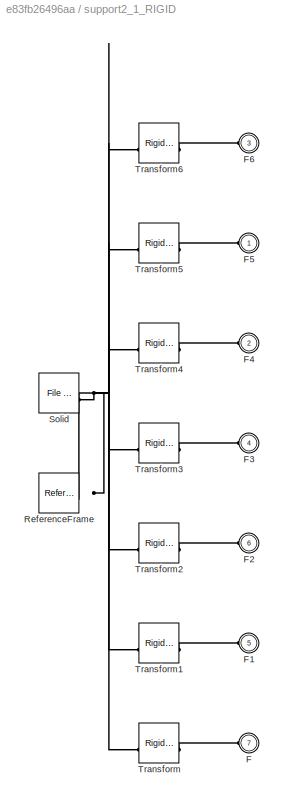
BLOCK [SubSystem] support2_1_RIGID
BLOCK [PMIOPort] support2_1_RIGID/F
  Port = 7
  Side = Left
BLOCK [PMIOPort] support2_1_RIGID/F1
  Port = 5
  Side = Left
BLOCK [PMIOPort] support2_1_RIGID/F2
  Port = 6
  Side = Left
BLOCK [PMIOPort] support2_1_RIGID/F3
  Port = 4
  Side = Left
BLOCK [PMIOPort] support2_1_RIGID/F4
  Port = 2
  Side = Left
BLOCK [PMIOPort] support2_1_RIGID/F5
  Side = Left
BLOCK [PMIOPort] support2_1_RIGID/F6
  Port = 3
  Side = Left
BLOCK [Reference] support2_1_RIGID/ReferenceFrame  REF=sm_lib/Frames and
Transforms/Reference
Frame
  SourceBlock = sm_lib/Frames and\nTransforms/Reference\nFrame
  SourceType = Reference\nFrame
BLOCK [Reference] support2_1_RIGID/Solid  REF=sm_lib/Body Elements/File Solid
  SourceBlock = sm_lib/Body Elements/File Solid
  SourceType = File Solid
BLOCK [Reference] support2_1_RIGID/Transform  REF=sm_lib/Frames and
Transforms/Rigid
Transform
  SourceBlock = sm_lib/Frames and\nTransforms/Rigid\nTransform
  SourceType = Rigid\nTransform
BLOCK [Reference] support2_1_RIGID/Transform1  REF=sm_lib/Frames and
Transforms/Rigid
Transform
  SourceBlock = sm_lib/Frames and\nTransforms/Rigid\nTransform
  SourceType = Rigid\nTransform
BLOCK [Reference] support2_1_RIGID/Transform2  REF=sm_lib/Frames and
Transforms/Rigid
Transform
  SourceBlock = sm_lib/Frames and\nTransforms/Rigid\nTransform
  SourceType = Rigid\nTransform
BLOCK [Reference] support2_1_RIGID/Transform3  REF=sm_lib/Frames and
Transforms/Rigid
Transform
  SourceBlock = sm_lib/Frames and\nTransforms/Rigid\nTransform
  SourceType = Rigid\nTransform
BLOCK [Reference] support2_1_RIGID/Transform4  REF=sm_lib/Frames and
Transforms/Rigid
Transform
  SourceBlock = sm_lib/Frames and\nTransforms/Rigid\nTransform
  SourceType = Rigid\nTransform
BLOCK [Reference] support2_1_RIGID/Transform5  REF=sm_lib/Frames and
Transforms/Rigid
Transform
  SourceBlock = sm_lib/Frames and\nTransforms/Rigid\nTransform
  SourceType = Rigid\nTransform
BLOCK [Reference] support2_1_RIGID/Transform6  REF=sm_lib/Frames and
Transforms/Rigid
Transform
  SourceBlock = sm_lib/Frames and\nTransforms/Rigid\nTransform
  SourceType = Rigid\nTransform
PNET net1: MechanismConfiguration:RConn1 -- Solver Configuration:RConn1 -- Transform10:LConn1 -- Transform11:LConn1 -- Transform12:LConn1 -- Transform13:LConn1 -- Transform14:LConn1 -- Transform15:LConn1 -- Transform16:LConn1 -- Transform17:LConn1 -- Transform18:LConn1 -- Transform19:LConn1 -- Transform1:LConn1 -- Transform20:LConn1 -- Transform21:LConn1 -- Transform22:LConn1 -- Transform23:LConn1 -- Transform24:LConn1 -- Transform25:LConn1 -- Transform26:LConn1 -- Transform27:LConn1 -- Transform28:LConn1 -- Transform2:LConn1 -- Transform3:LConn1 -- Transform4:LConn1 -- Transform5:LConn1 -- Transform6:LConn1 -- Transform7:LConn1 -- Transform8:LConn1 -- Transform9:LConn1 -- Transform:LConn1 -- World:RConn1
PLINE Planar10:LConn1 -- base_1_RIGID:RConn14
PLINE Planar10:RConn1 -- rack_base_assembly_10_RIGID:LConn2
PLINE Planar11:LConn1 -- base_1_RIGID:RConn8
PLINE Planar11:RConn1 -- rack_base_assembly_11_RIGID:LConn2
PLINE Planar12:LConn1 -- base_1_RIGID:RConn10
PLINE Planar12:RConn1 -- rack_base_assembly_12_RIGID:LConn2
PLINE Planar13:LConn1 -- base_1_RIGID:RConn7
PLINE Planar13:RConn1 -- rack_base_assembly_13_RIGID:LConn3
PLINE Planar14:LConn1 -- base_1_RIGID:RConn13
PLINE Planar14:RConn1 -- rack_base_assembly_14_RIGID:LConn1
PLINE Planar15:LConn1 -- base_1_RIGID:RConn12
PLINE Planar15:RConn1 -- rack_base_assembly_15_RIGID:LConn2
PLINE Planar16:LConn1 -- base_1_RIGID:RConn6
PLINE Planar16:RConn1 -- servo_supporter_1_RIGID:LConn2
PLINE Planar1:LConn1 -- base_1_RIGID:RConn15
PLINE Planar1:RConn1 -- rack_base_assembly_2_RIGID:LConn2
PLINE Planar2:LConn1 -- base_1_RIGID:RConn11
PLINE Planar2:RConn1 -- rack_base_assembly_3_RIGID:LConn2
PLINE Planar3:LConn1 -- base_1_RIGID:RConn9
PLINE Planar3:RConn1 -- rack_base_assembly_4_RIGID:LConn2
PLINE Planar4:LConn1 -- base_1_RIGID:RConn2
PLINE Planar4:RConn1 -- rack_base_assembly_5_RIGID:LConn2
PLINE Planar5:LConn1 -- base_1_RIGID:RConn5
PLINE Planar5:RConn1 -- rack_base_assembly_6_RIGID:LConn1
PLINE Planar6:LConn1 -- base_1_RIGID:RConn1
PLINE Planar6:RConn1 -- rack_base_assembly_8_RIGID:LConn2
PLINE Planar7:LConn1 -- base_1_RIGID:RConn3
PLINE Planar7:RConn1 -- rack_base_assembly_9_RIGID:LConn1
PLINE Planar8:LConn1 -- base_1_RIGID:RConn4
PLINE Planar8:RConn1 -- guitar_support_1_RIGID:LConn2
PLINE Planar9:LConn1 -- guitar_1_RIGID:RConn1
PLINE Planar9:RConn1 -- guitar_support_1_RIGID:LConn1
PLINE Planar:LConn1 -- base_1_RIGID:RConn16
PLINE Planar:RConn1 -- rack_base_assembly_1_RIGID:LConn2
PLINE Revolute1:LConn1 -- frets_assembly_7:RConn1
PLINE Revolute1:RConn1 -- motor_base_3_RIGID:LConn1
PLINE Revolute2:LConn1 -- frets_assembly_13:RConn1
PLINE Revolute2:RConn1 -- motor_base_4_RIGID:LConn2
PLINE Revolute3:LConn1 -- frets_assembly_8:RConn1
PLINE Revolute3:RConn1 -- motor_base_8_RIGID:LConn2
PLINE Revolute4:LConn1 -- frets_assembly_12:RConn1
PLINE Revolute4:RConn1 -- motor_base_5_RIGID:LConn1
PLINE Revolute5:LConn1 -- frets_assembly_6:RConn1
PLINE Revolute5:RConn1 -- motor_base_6_RIGID:LConn1
PLINE Revolute6:LConn1 -- frets_assembly_11:RConn1
PLINE Revolute6:RConn1 -- motor_base_7_RIGID:LConn2
PLINE Revolute:LConn1 -- frets_assembly_4:RConn1
PLINE Revolute:RConn1 -- motor_base_2_RIGID:LConn2
PLINE Spherical1:LConn1 -- servo_assembly_1:RConn1
PLINE Spherical1:RConn1 -- Transform1:RConn1
PLINE Spherical2:LConn1 -- servo_assembly_4:RConn1
PLINE Spherical2:RConn1 -- Transform2:RConn1
PLINE Spherical3:LConn1 -- servo_assembly_2:RConn1
PLINE Spherical3:RConn1 -- Transform18:RConn1
PLINE Spherical4:LConn1 -- servo_assembly_5:RConn1
PLINE Spherical4:RConn1 -- Transform19:RConn1
PLINE Spherical5:LConn1 -- rack_base_assembly_12_RIGID:RConn1
PLINE Spherical5:RConn1 -- Transform22:RConn1
PLINE Spherical6:LConn1 -- servo_assembly_3:RConn1
PLINE Spherical6:RConn1 -- Transform26:RConn1
PLINE Spherical:LConn1 -- servo_assembly_6:RConn1
PLINE Spherical:RConn1 -- Transform:RConn1
PLINE Transform10:RConn1 -- rack_base_assembly_1_RIGID:LConn1
PLINE Transform11:RConn1 -- rack_base_assembly_2_RIGID:LConn1
PLINE Transform12:RConn1 -- rack_base_assembly_3_RIGID:LConn1
PLINE Transform13:RConn1 -- rack_base_assembly_4_RIGID:LConn1
PLINE Transform14:RConn1 -- rack_base_assembly_5_RIGID:LConn3
PLINE Transform15:RConn1 -- rack_base_assembly_6_RIGID:LConn2
PLINE Transform16:RConn1 -- rack_base_assembly_8_RIGID:LConn3
PLINE Transform17:RConn1 -- rack_base_assembly_9_RIGID:LConn2
PLINE Transform20:RConn1 -- rack_base_assembly_10_RIGID:LConn1
PLINE Transform21:RConn1 -- rack_base_assembly_11_RIGID:LConn1
PLINE Transform23:RConn1 -- rack_base_assembly_13_RIGID:LConn2
PLINE Transform24:RConn1 -- rack_base_assembly_14_RIGID:LConn2
PLINE Transform25:RConn1 -- rack_base_assembly_15_RIGID:LConn1
PLINE Transform27:RConn1 -- Universal:RConn1
PLINE Transform28:RConn1 -- base_1_RIGID:LConn2
PLINE Transform3:RConn1 -- motor_base_2_RIGID:LConn1
PLINE Transform4:RConn1 -- motor_base_3_RIGID:LConn2
PLINE Transform5:RConn1 -- motor_base_4_RIGID:LConn1
PLINE Transform6:RConn1 -- motor_base_5_RIGID:LConn2
PLINE Transform7:RConn1 -- motor_base_6_RIGID:LConn2
PLINE Transform8:RConn1 -- motor_base_7_RIGID:LConn1
PLINE Transform9:RConn1 -- motor_base_8_RIGID:LConn1
PLINE Universal:LConn1 -- servo_supporter_1_RIGID:RConn1
PLINE base_1_RIGID/F10:RConn1 -- base_1_RIGID/Transform10:RConn1
PLINE base_1_RIGID/F11:RConn1 -- base_1_RIGID/Transform11:RConn1
PLINE base_1_RIGID/F12:RConn1 -- base_1_RIGID/Transform12:RConn1
PLINE base_1_RIGID/F13:RConn1 -- base_1_RIGID/Transform13:RConn1
PLINE base_1_RIGID/F14:RConn1 -- base_1_RIGID/Transform14:RConn1
PLINE base_1_RIGID/F15:RConn1 -- base_1_RIGID/Transform15:RConn1
PLINE base_1_RIGID/F16:RConn1 -- base_1_RIGID/Transform16:RConn1
PNET net2: base_1_RIGID/F17:RConn1 -- base_1_RIGID/ReferenceFrame:RConn1 -- base_1_RIGID/Solid:RConn1 -- base_1_RIGID/Transform10:LConn1 -- base_1_RIGID/Transform11:LConn1 -- base_1_RIGID/Transform12:LConn1 -- base_1_RIGID/Transform13:LConn1 -- base_1_RIGID/Transform14:LConn1 -- base_1_RIGID/Transform15:LConn1 -- base_1_RIGID/Transform16:LConn1 -- base_1_RIGID/Transform1:LConn1 -- base_1_RIGID/Transform2:LConn1 -- base_1_RIGID/Transform3:LConn1 -- base_1_RIGID/Transform4:LConn1 -- base_1_RIGID/Transform5:LConn1 -- base_1_RIGID/Transform6:LConn1 -- base_1_RIGID/Transform7:LConn1 -- base_1_RIGID/Transform8:LConn1 -- base_1_RIGID/Transform9:LConn1 -- base_1_RIGID/Transform:LConn1
PLINE base_1_RIGID/F1:RConn1 -- base_1_RIGID/Transform1:RConn1
PLINE base_1_RIGID/F2:RConn1 -- base_1_RIGID/Transform2:RConn1
PLINE base_1_RIGID/F3:RConn1 -- base_1_RIGID/Transform3:RConn1
PLINE base_1_RIGID/F4:RConn1 -- base_1_RIGID/Transform4:RConn1
PLINE base_1_RIGID/F5:RConn1 -- base_1_RIGID/Transform5:RConn1
PLINE base_1_RIGID/F6:RConn1 -- base_1_RIGID/Transform6:RConn1
PLINE base_1_RIGID/F7:RConn1 -- base_1_RIGID/Transform7:RConn1
PLINE base_1_RIGID/F8:RConn1 -- base_1_RIGID/Transform8:RConn1
PLINE base_1_RIGID/F9:RConn1 -- base_1_RIGID/Transform9:RConn1
PLINE base_1_RIGID/F:RConn1 -- base_1_RIGID/Transform:RConn1
PLINE base_1_RIGID:LConn1 -- guitar_1_RIGID:LConn1
PLINE frets_assembly_11/Cylindrical:LConn1 -- frets_assembly_11/solenoid_body_1_RIGID:RConn1
PLINE frets_assembly_11/Cylindrical:RConn1 -- frets_assembly_11/solenoid_shaft_1_RIGID:LConn1
PLINE frets_assembly_11/F2:RConn1 -- frets_assembly_11/motor_casing_1_RIGID:LConn1
PLINE frets_assembly_11/F:RConn1 -- frets_assembly_11/rackandpinion_1:LConn1
PLINE frets_assembly_11/Revolute1:LConn1 -- frets_assembly_11/shaft_2_RIGID:RConn1
PLINE frets_assembly_11/Revolute1:RConn1 -- frets_assembly_11/motor_casing_1_RIGID:LConn2
PLINE frets_assembly_11/Revolute2:LConn1 -- frets_assembly_11/rackandpinion_1:RConn1
PLINE frets_assembly_11/Revolute2:RConn1 -- frets_assembly_11/shaft_2_RIGID:LConn1
PLINE frets_assembly_11/Revolute:LConn1 -- frets_assembly_11/rackandpinion_1:RConn2
PLINE frets_assembly_11/Revolute:RConn1 -- frets_assembly_11/solenoid_body_1_RIGID:LConn1
PLINE frets_assembly_11/motor_casing_1_RIGID/F1:RConn1 -- frets_assembly_11/motor_casing_1_RIGID/Transform1:RConn1
PLINE frets_assembly_11/motor_casing_1_RIGID/F:RConn1 -- frets_assembly_11/motor_casing_1_RIGID/Transform:RConn1
PNET net3: frets_assembly_11/motor_casing_1_RIGID/ReferenceFrame:RConn1 -- frets_assembly_11/motor_casing_1_RIGID/Solid:RConn1 -- frets_assembly_11/motor_casing_1_RIGID/Transform1:LConn1 -- frets_assembly_11/motor_casing_1_RIGID/Transform:LConn1
PLINE frets_assembly_11/rackandpinion_1/F1:RConn1 -- frets_assembly_11/rackandpinion_1/gear_pinion_1_RIGID:LConn2
PLINE frets_assembly_11/rackandpinion_1/F2:RConn1 -- frets_assembly_11/rackandpinion_1/rack_1_RIGID:LConn2
PLINE frets_assembly_11/rackandpinion_1/F:RConn1 -- frets_assembly_11/rackandpinion_1/rack_1_RIGID:LConn1
PLINE frets_assembly_11/rackandpinion_1/gear_pinion_1_RIGID/F1:RConn1 -- frets_assembly_11/rackandpinion_1/gear_pinion_1_RIGID/Transform1:RConn1
PLINE frets_assembly_11/rackandpinion_1/gear_pinion_1_RIGID/F:RConn1 -- frets_assembly_11/rackandpinion_1/gear_pinion_1_RIGID/Transform:RConn1
PNET net4: frets_assembly_11/rackandpinion_1/gear_pinion_1_RIGID/ReferenceFrame:RConn1 -- frets_assembly_11/rackandpinion_1/gear_pinion_1_RIGID/Solid:RConn1 -- frets_assembly_11/rackandpinion_1/gear_pinion_1_RIGID/Transform1:LConn1 -- frets_assembly_11/rackandpinion_1/gear_pinion_1_RIGID/Transform:LConn1
PLINE frets_assembly_11/rackandpinion_1/gear_pinion_1_RIGID:LConn1 -- frets_assembly_11/rackandpinion_1/rack_1_RIGID:LConn3
PLINE frets_assembly_11/rackandpinion_1/rack_1_RIGID/F1:RConn1 -- frets_assembly_11/rackandpinion_1/rack_1_RIGID/Transform1:RConn1
PLINE frets_assembly_11/rackandpinion_1/rack_1_RIGID/F2:RConn1 -- frets_assembly_11/rackandpinion_1/rack_1_RIGID/Transform2:RConn1
PLINE frets_assembly_11/rackandpinion_1/rack_1_RIGID/F:RConn1 -- frets_assembly_11/rackandpinion_1/rack_1_RIGID/Transform:RConn1
PNET net5: frets_assembly_11/rackandpinion_1/rack_1_RIGID/ReferenceFrame:RConn1 -- frets_assembly_11/rackandpinion_1/rack_1_RIGID/Solid:RConn1 -- frets_assembly_11/rackandpinion_1/rack_1_RIGID/Transform1:LConn1 -- frets_assembly_11/rackandpinion_1/rack_1_RIGID/Transform2:LConn1 -- frets_assembly_11/rackandpinion_1/rack_1_RIGID/Transform3:LConn1 -- frets_assembly_11/rackandpinion_1/rack_1_RIGID/Transform:LConn1
PLINE frets_assembly_11/shaft_2_RIGID/F1:RConn1 -- frets_assembly_11/shaft_2_RIGID/Transform1:RConn1
PLINE frets_assembly_11/shaft_2_RIGID/F:RConn1 -- frets_assembly_11/shaft_2_RIGID/Transform:RConn1
PNET net6: frets_assembly_11/shaft_2_RIGID/ReferenceFrame:RConn1 -- frets_assembly_11/shaft_2_RIGID/Solid:RConn1 -- frets_assembly_11/shaft_2_RIGID/Transform1:LConn1 -- frets_assembly_11/shaft_2_RIGID/Transform:LConn1
PLINE frets_assembly_11/solenoid_body_1_RIGID/F1:RConn1 -- frets_assembly_11/solenoid_body_1_RIGID/Transform1:RConn1
PLINE frets_assembly_11/solenoid_body_1_RIGID/F:RConn1 -- frets_assembly_11/solenoid_body_1_RIGID/Transform:RConn1
PNET net7: frets_assembly_11/solenoid_body_1_RIGID/ReferenceFrame:RConn1 -- frets_assembly_11/solenoid_body_1_RIGID/Solid:RConn1 -- frets_assembly_11/solenoid_body_1_RIGID/Transform1:LConn1 -- frets_assembly_11/solenoid_body_1_RIGID/Transform:LConn1
PLINE frets_assembly_11/solenoid_shaft_1_RIGID/F:RConn1 -- frets_assembly_11/solenoid_shaft_1_RIGID/Transform:RConn1
PNET net8: frets_assembly_11/solenoid_shaft_1_RIGID/ReferenceFrame:RConn1 -- frets_assembly_11/solenoid_shaft_1_RIGID/Solid:RConn1 -- frets_assembly_11/solenoid_shaft_1_RIGID/Transform:LConn1
PLINE frets_assembly_11:LConn1 -- rack_base_assembly_10_RIGID:LConn3
PLINE frets_assembly_12/Cylindrical:LConn1 -- frets_assembly_12/solenoid_body_1_RIGID:RConn1
PLINE frets_assembly_12/Cylindrical:RConn1 -- frets_assembly_12/solenoid_shaft_1_RIGID:LConn1
PLINE frets_assembly_12/F2:RConn1 -- frets_assembly_12/motor_casing_1_RIGID:LConn1
PLINE frets_assembly_12/F:RConn1 -- frets_assembly_12/rackandpinion_1:LConn1
PLINE frets_assembly_12/Revolute1:LConn1 -- frets_assembly_12/shaft_2_RIGID:RConn1
PLINE frets_assembly_12/Revolute1:RConn1 -- frets_assembly_12/motor_casing_1_RIGID:LConn2
PLINE frets_assembly_12/Revolute2:LConn1 -- frets_assembly_12/rackandpinion_1:RConn1
PLINE frets_assembly_12/Revolute2:RConn1 -- frets_assembly_12/shaft_2_RIGID:LConn1
PLINE frets_assembly_12/Revolute:LConn1 -- frets_assembly_12/rackandpinion_1:RConn2
PLINE frets_assembly_12/Revolute:RConn1 -- frets_assembly_12/solenoid_body_1_RIGID:LConn1
PLINE frets_assembly_12/motor_casing_1_RIGID/F1:RConn1 -- frets_assembly_12/motor_casing_1_RIGID/Transform1:RConn1
PLINE frets_assembly_12/motor_casing_1_RIGID/F:RConn1 -- frets_assembly_12/motor_casing_1_RIGID/Transform:RConn1
PNET net9: frets_assembly_12/motor_casing_1_RIGID/ReferenceFrame:RConn1 -- frets_assembly_12/motor_casing_1_RIGID/Solid:RConn1 -- frets_assembly_12/motor_casing_1_RIGID/Transform1:LConn1 -- frets_assembly_12/motor_casing_1_RIGID/Transform:LConn1
PLINE frets_assembly_12/rackandpinion_1/F1:RConn1 -- frets_assembly_12/rackandpinion_1/gear_pinion_1_RIGID:LConn2
PLINE frets_assembly_12/rackandpinion_1/F2:RConn1 -- frets_assembly_12/rackandpinion_1/rack_1_RIGID:LConn2
PLINE frets_assembly_12/rackandpinion_1/F:RConn1 -- frets_assembly_12/rackandpinion_1/rack_1_RIGID:LConn1
PLINE frets_assembly_12/rackandpinion_1/gear_pinion_1_RIGID/F1:RConn1 -- frets_assembly_12/rackandpinion_1/gear_pinion_1_RIGID/Transform1:RConn1
PLINE frets_assembly_12/rackandpinion_1/gear_pinion_1_RIGID/F:RConn1 -- frets_assembly_12/rackandpinion_1/gear_pinion_1_RIGID/Transform:RConn1
PNET net10: frets_assembly_12/rackandpinion_1/gear_pinion_1_RIGID/ReferenceFrame:RConn1 -- frets_assembly_12/rackandpinion_1/gear_pinion_1_RIGID/Solid:RConn1 -- frets_assembly_12/rackandpinion_1/gear_pinion_1_RIGID/Transform1:LConn1 -- frets_assembly_12/rackandpinion_1/gear_pinion_1_RIGID/Transform:LConn1
PLINE frets_assembly_12/rackandpinion_1/gear_pinion_1_RIGID:LConn1 -- frets_assembly_12/rackandpinion_1/rack_1_RIGID:LConn3
PLINE frets_assembly_12/rackandpinion_1/rack_1_RIGID/F1:RConn1 -- frets_assembly_12/rackandpinion_1/rack_1_RIGID/Transform1:RConn1
PLINE frets_assembly_12/rackandpinion_1/rack_1_RIGID/F2:RConn1 -- frets_assembly_12/rackandpinion_1/rack_1_RIGID/Transform2:RConn1
PLINE frets_assembly_12/rackandpinion_1/rack_1_RIGID/F:RConn1 -- frets_assembly_12/rackandpinion_1/rack_1_RIGID/Transform:RConn1
PNET net11: frets_assembly_12/rackandpinion_1/rack_1_RIGID/ReferenceFrame:RConn1 -- frets_assembly_12/rackandpinion_1/rack_1_RIGID/Solid:RConn1 -- frets_assembly_12/rackandpinion_1/rack_1_RIGID/Transform1:LConn1 -- frets_assembly_12/rackandpinion_1/rack_1_RIGID/Transform2:LConn1 -- frets_assembly_12/rackandpinion_1/rack_1_RIGID/Transform3:LConn1 -- frets_assembly_12/rackandpinion_1/rack_1_RIGID/Transform:LConn1
PLINE frets_assembly_12/shaft_2_RIGID/F1:RConn1 -- frets_assembly_12/shaft_2_RIGID/Transform1:RConn1
PLINE frets_assembly_12/shaft_2_RIGID/F:RConn1 -- frets_assembly_12/shaft_2_RIGID/Transform:RConn1
PNET net12: frets_assembly_12/shaft_2_RIGID/ReferenceFrame:RConn1 -- frets_assembly_12/shaft_2_RIGID/Solid:RConn1 -- frets_assembly_12/shaft_2_RIGID/Transform1:LConn1 -- frets_assembly_12/shaft_2_RIGID/Transform:LConn1
PLINE frets_assembly_12/solenoid_body_1_RIGID/F1:RConn1 -- frets_assembly_12/solenoid_body_1_RIGID/Transform1:RConn1
PLINE frets_assembly_12/solenoid_body_1_RIGID/F:RConn1 -- frets_assembly_12/solenoid_body_1_RIGID/Transform:RConn1
PNET net13: frets_assembly_12/solenoid_body_1_RIGID/ReferenceFrame:RConn1 -- frets_assembly_12/solenoid_body_1_RIGID/Solid:RConn1 -- frets_assembly_12/solenoid_body_1_RIGID/Transform1:LConn1 -- frets_assembly_12/solenoid_body_1_RIGID/Transform:LConn1
PLINE frets_assembly_12/solenoid_shaft_1_RIGID/F:RConn1 -- frets_assembly_12/solenoid_shaft_1_RIGID/Transform:RConn1
PNET net14: frets_assembly_12/solenoid_shaft_1_RIGID/ReferenceFrame:RConn1 -- frets_assembly_12/solenoid_shaft_1_RIGID/Solid:RConn1 -- frets_assembly_12/solenoid_shaft_1_RIGID/Transform:LConn1
PLINE frets_assembly_12:LConn1 -- rack_base_assembly_13_RIGID:LConn1
PLINE frets_assembly_13/Cylindrical:LConn1 -- frets_assembly_13/solenoid_body_1_RIGID:RConn1
PLINE frets_assembly_13/Cylindrical:RConn1 -- frets_assembly_13/solenoid_shaft_1_RIGID:LConn1
PLINE frets_assembly_13/F2:RConn1 -- frets_assembly_13/motor_casing_1_RIGID:LConn1
PLINE frets_assembly_13/F:RConn1 -- frets_assembly_13/rackandpinion_1:LConn1
PLINE frets_assembly_13/Revolute1:LConn1 -- frets_assembly_13/shaft_2_RIGID:RConn1
PLINE frets_assembly_13/Revolute1:RConn1 -- frets_assembly_13/motor_casing_1_RIGID:LConn2
PLINE frets_assembly_13/Revolute2:LConn1 -- frets_assembly_13/rackandpinion_1:RConn1
PLINE frets_assembly_13/Revolute2:RConn1 -- frets_assembly_13/shaft_2_RIGID:LConn1
PLINE frets_assembly_13/Revolute:LConn1 -- frets_assembly_13/rackandpinion_1:RConn2
PLINE frets_assembly_13/Revolute:RConn1 -- frets_assembly_13/solenoid_body_1_RIGID:LConn1
PLINE frets_assembly_13/motor_casing_1_RIGID/F1:RConn1 -- frets_assembly_13/motor_casing_1_RIGID/Transform1:RConn1
PLINE frets_assembly_13/motor_casing_1_RIGID/F:RConn1 -- frets_assembly_13/motor_casing_1_RIGID/Transform:RConn1
PNET net15: frets_assembly_13/motor_casing_1_RIGID/ReferenceFrame:RConn1 -- frets_assembly_13/motor_casing_1_RIGID/Solid:RConn1 -- frets_assembly_13/motor_casing_1_RIGID/Transform1:LConn1 -- frets_assembly_13/motor_casing_1_RIGID/Transform:LConn1
PLINE frets_assembly_13/rackandpinion_1/F1:RConn1 -- frets_assembly_13/rackandpinion_1/gear_pinion_1_RIGID:LConn2
PLINE frets_assembly_13/rackandpinion_1/F2:RConn1 -- frets_assembly_13/rackandpinion_1/rack_1_RIGID:LConn2
PLINE frets_assembly_13/rackandpinion_1/F:RConn1 -- frets_assembly_13/rackandpinion_1/rack_1_RIGID:LConn1
PLINE frets_assembly_13/rackandpinion_1/gear_pinion_1_RIGID/F1:RConn1 -- frets_assembly_13/rackandpinion_1/gear_pinion_1_RIGID/Transform1:RConn1
PLINE frets_assembly_13/rackandpinion_1/gear_pinion_1_RIGID/F:RConn1 -- frets_assembly_13/rackandpinion_1/gear_pinion_1_RIGID/Transform:RConn1
PNET net16: frets_assembly_13/rackandpinion_1/gear_pinion_1_RIGID/ReferenceFrame:RConn1 -- frets_assembly_13/rackandpinion_1/gear_pinion_1_RIGID/Solid:RConn1 -- frets_assembly_13/rackandpinion_1/gear_pinion_1_RIGID/Transform1:LConn1 -- frets_assembly_13/rackandpinion_1/gear_pinion_1_RIGID/Transform:LConn1
PLINE frets_assembly_13/rackandpinion_1/gear_pinion_1_RIGID:LConn1 -- frets_assembly_13/rackandpinion_1/rack_1_RIGID:LConn3
PLINE frets_assembly_13/rackandpinion_1/rack_1_RIGID/F1:RConn1 -- frets_assembly_13/rackandpinion_1/rack_1_RIGID/Transform1:RConn1
PLINE frets_assembly_13/rackandpinion_1/rack_1_RIGID/F2:RConn1 -- frets_assembly_13/rackandpinion_1/rack_1_RIGID/Transform2:RConn1
PLINE frets_assembly_13/rackandpinion_1/rack_1_RIGID/F:RConn1 -- frets_assembly_13/rackandpinion_1/rack_1_RIGID/Transform:RConn1
PNET net17: frets_assembly_13/rackandpinion_1/rack_1_RIGID/ReferenceFrame:RConn1 -- frets_assembly_13/rackandpinion_1/rack_1_RIGID/Solid:RConn1 -- frets_assembly_13/rackandpinion_1/rack_1_RIGID/Transform1:LConn1 -- frets_assembly_13/rackandpinion_1/rack_1_RIGID/Transform2:LConn1 -- frets_assembly_13/rackandpinion_1/rack_1_RIGID/Transform3:LConn1 -- frets_assembly_13/rackandpinion_1/rack_1_RIGID/Transform:LConn1
PLINE frets_assembly_13/shaft_2_RIGID/F1:RConn1 -- frets_assembly_13/shaft_2_RIGID/Transform1:RConn1
PLINE frets_assembly_13/shaft_2_RIGID/F:RConn1 -- frets_assembly_13/shaft_2_RIGID/Transform:RConn1
PNET net18: frets_assembly_13/shaft_2_RIGID/ReferenceFrame:RConn1 -- frets_assembly_13/shaft_2_RIGID/Solid:RConn1 -- frets_assembly_13/shaft_2_RIGID/Transform1:LConn1 -- frets_assembly_13/shaft_2_RIGID/Transform:LConn1
PLINE frets_assembly_13/solenoid_body_1_RIGID/F1:RConn1 -- frets_assembly_13/solenoid_body_1_RIGID/Transform1:RConn1
PLINE frets_assembly_13/solenoid_body_1_RIGID/F:RConn1 -- frets_assembly_13/solenoid_body_1_RIGID/Transform:RConn1
PNET net19: frets_assembly_13/solenoid_body_1_RIGID/ReferenceFrame:RConn1 -- frets_assembly_13/solenoid_body_1_RIGID/Solid:RConn1 -- frets_assembly_13/solenoid_body_1_RIGID/Transform1:LConn1 -- frets_assembly_13/solenoid_body_1_RIGID/Transform:LConn1
PLINE frets_assembly_13/solenoid_shaft_1_RIGID/F:RConn1 -- frets_assembly_13/solenoid_shaft_1_RIGID/Transform:RConn1
PNET net20: frets_assembly_13/solenoid_shaft_1_RIGID/ReferenceFrame:RConn1 -- frets_assembly_13/solenoid_shaft_1_RIGID/Solid:RConn1 -- frets_assembly_13/solenoid_shaft_1_RIGID/Transform:LConn1
PLINE frets_assembly_13:LConn1 -- rack_base_assembly_1_RIGID:LConn3
PLINE frets_assembly_4/Cylindrical:LConn1 -- frets_assembly_4/solenoid_body_1_RIGID:RConn1
PLINE frets_assembly_4/Cylindrical:RConn1 -- frets_assembly_4/solenoid_shaft_1_RIGID:LConn1
PLINE frets_assembly_4/F1:RConn1 -- frets_assembly_4/rackandpinion_1:LConn1
PLINE frets_assembly_4/F:RConn1 -- frets_assembly_4/motor_casing_1_RIGID:LConn1
PLINE frets_assembly_4/Revolute1:LConn1 -- frets_assembly_4/shaft_2_RIGID:RConn1
PLINE frets_assembly_4/Revolute1:RConn1 -- frets_assembly_4/motor_casing_1_RIGID:LConn2
PLINE frets_assembly_4/Revolute2:LConn1 -- frets_assembly_4/rackandpinion_1:RConn1
PLINE frets_assembly_4/Revolute2:RConn1 -- frets_assembly_4/shaft_2_RIGID:LConn1
PLINE frets_assembly_4/Revolute:LConn1 -- frets_assembly_4/rackandpinion_1:RConn2
PLINE frets_assembly_4/Revolute:RConn1 -- frets_assembly_4/solenoid_body_1_RIGID:LConn1
PLINE frets_assembly_4/motor_casing_1_RIGID/F1:RConn1 -- frets_assembly_4/motor_casing_1_RIGID/Transform1:RConn1
PLINE frets_assembly_4/motor_casing_1_RIGID/F:RConn1 -- frets_assembly_4/motor_casing_1_RIGID/Transform:RConn1
PNET net21: frets_assembly_4/motor_casing_1_RIGID/ReferenceFrame:RConn1 -- frets_assembly_4/motor_casing_1_RIGID/Solid:RConn1 -- frets_assembly_4/motor_casing_1_RIGID/Transform1:LConn1 -- frets_assembly_4/motor_casing_1_RIGID/Transform:LConn1
PLINE frets_assembly_4/rackandpinion_1/F1:RConn1 -- frets_assembly_4/rackandpinion_1/gear_pinion_1_RIGID:LConn2
PLINE frets_assembly_4/rackandpinion_1/F2:RConn1 -- frets_assembly_4/rackandpinion_1/rack_1_RIGID:LConn2
PLINE frets_assembly_4/rackandpinion_1/F:RConn1 -- frets_assembly_4/rackandpinion_1/rack_1_RIGID:LConn1
PLINE frets_assembly_4/rackandpinion_1/Rack and Pinion Constraint:LConn1 -- frets_assembly_4/rackandpinion_1/gear_pinion_1_RIGID:LConn1
PLINE frets_assembly_4/rackandpinion_1/Rack and Pinion Constraint:RConn1 -- frets_assembly_4/rackandpinion_1/rack_1_RIGID:LConn3
PLINE frets_assembly_4/rackandpinion_1/gear_pinion_1_RIGID/F1:RConn1 -- frets_assembly_4/rackandpinion_1/gear_pinion_1_RIGID/Transform1:RConn1
PLINE frets_assembly_4/rackandpinion_1/gear_pinion_1_RIGID/F:RConn1 -- frets_assembly_4/rackandpinion_1/gear_pinion_1_RIGID/Transform:RConn1
PNET net22: frets_assembly_4/rackandpinion_1/gear_pinion_1_RIGID/ReferenceFrame:RConn1 -- frets_assembly_4/rackandpinion_1/gear_pinion_1_RIGID/Solid:RConn1 -- frets_assembly_4/rackandpinion_1/gear_pinion_1_RIGID/Transform1:LConn1 -- frets_assembly_4/rackandpinion_1/gear_pinion_1_RIGID/Transform:LConn1
PLINE frets_assembly_4/rackandpinion_1/rack_1_RIGID/F1:RConn1 -- frets_assembly_4/rackandpinion_1/rack_1_RIGID/Transform1:RConn1
PLINE frets_assembly_4/rackandpinion_1/rack_1_RIGID/F2:RConn1 -- frets_assembly_4/rackandpinion_1/rack_1_RIGID/Transform2:RConn1
PLINE frets_assembly_4/rackandpinion_1/rack_1_RIGID/F:RConn1 -- frets_assembly_4/rackandpinion_1/rack_1_RIGID/Transform:RConn1
PNET net23: frets_assembly_4/rackandpinion_1/rack_1_RIGID/ReferenceFrame:RConn1 -- frets_assembly_4/rackandpinion_1/rack_1_RIGID/Solid:RConn1 -- frets_assembly_4/rackandpinion_1/rack_1_RIGID/Transform1:LConn1 -- frets_assembly_4/rackandpinion_1/rack_1_RIGID/Transform2:LConn1 -- frets_assembly_4/rackandpinion_1/rack_1_RIGID/Transform3:LConn1 -- frets_assembly_4/rackandpinion_1/rack_1_RIGID/Transform:LConn1
PLINE frets_assembly_4/shaft_2_RIGID/F1:RConn1 -- frets_assembly_4/shaft_2_RIGID/Transform1:RConn1
PLINE frets_assembly_4/shaft_2_RIGID/F:RConn1 -- frets_assembly_4/shaft_2_RIGID/Transform:RConn1
PNET net24: frets_assembly_4/shaft_2_RIGID/ReferenceFrame:RConn1 -- frets_assembly_4/shaft_2_RIGID/Solid:RConn1 -- frets_assembly_4/shaft_2_RIGID/Transform1:LConn1 -- frets_assembly_4/shaft_2_RIGID/Transform:LConn1
PLINE frets_assembly_4/solenoid_body_1_RIGID/F1:RConn1 -- frets_assembly_4/solenoid_body_1_RIGID/Transform1:RConn1
PLINE frets_assembly_4/solenoid_body_1_RIGID/F:RConn1 -- frets_assembly_4/solenoid_body_1_RIGID/Transform:RConn1
PNET net25: frets_assembly_4/solenoid_body_1_RIGID/ReferenceFrame:RConn1 -- frets_assembly_4/solenoid_body_1_RIGID/Solid:RConn1 -- frets_assembly_4/solenoid_body_1_RIGID/Transform1:LConn1 -- frets_assembly_4/solenoid_body_1_RIGID/Transform:LConn1
PLINE frets_assembly_4/solenoid_shaft_1_RIGID/F:RConn1 -- frets_assembly_4/solenoid_shaft_1_RIGID/Transform:RConn1
PNET net26: frets_assembly_4/solenoid_shaft_1_RIGID/ReferenceFrame:RConn1 -- frets_assembly_4/solenoid_shaft_1_RIGID/Solid:RConn1 -- frets_assembly_4/solenoid_shaft_1_RIGID/Transform:LConn1
PLINE frets_assembly_4:LConn1 -- rack_base_assembly_2_RIGID:LConn3
PLINE frets_assembly_6/Cylindrical:LConn1 -- frets_assembly_6/solenoid_body_1_RIGID:RConn1
PLINE frets_assembly_6/Cylindrical:RConn1 -- frets_assembly_6/solenoid_shaft_1_RIGID:LConn1
PLINE frets_assembly_6/F1:RConn1 -- frets_assembly_6/rackandpinion_1:LConn1
PLINE frets_assembly_6/F:RConn1 -- frets_assembly_6/motor_casing_1_RIGID:LConn1
PLINE frets_assembly_6/Revolute1:LConn1 -- frets_assembly_6/shaft_2_RIGID:RConn1
PLINE frets_assembly_6/Revolute1:RConn1 -- frets_assembly_6/motor_casing_1_RIGID:LConn2
PLINE frets_assembly_6/Revolute2:LConn1 -- frets_assembly_6/rackandpinion_1:RConn1
PLINE frets_assembly_6/Revolute2:RConn1 -- frets_assembly_6/shaft_2_RIGID:LConn1
PLINE frets_assembly_6/Revolute:LConn1 -- frets_assembly_6/rackandpinion_1:RConn2
PLINE frets_assembly_6/Revolute:RConn1 -- frets_assembly_6/solenoid_body_1_RIGID:LConn1
PLINE frets_assembly_6/motor_casing_1_RIGID/F1:RConn1 -- frets_assembly_6/motor_casing_1_RIGID/Transform1:RConn1
PLINE frets_assembly_6/motor_casing_1_RIGID/F:RConn1 -- frets_assembly_6/motor_casing_1_RIGID/Transform:RConn1
PNET net27: frets_assembly_6/motor_casing_1_RIGID/ReferenceFrame:RConn1 -- frets_assembly_6/motor_casing_1_RIGID/Solid:RConn1 -- frets_assembly_6/motor_casing_1_RIGID/Transform1:LConn1 -- frets_assembly_6/motor_casing_1_RIGID/Transform:LConn1
PLINE frets_assembly_6/rackandpinion_1/F1:RConn1 -- frets_assembly_6/rackandpinion_1/gear_pinion_1_RIGID:LConn2
PLINE frets_assembly_6/rackandpinion_1/F2:RConn1 -- frets_assembly_6/rackandpinion_1/rack_1_RIGID:LConn2
PLINE frets_assembly_6/rackandpinion_1/F:RConn1 -- frets_assembly_6/rackandpinion_1/rack_1_RIGID:LConn1
PLINE frets_assembly_6/rackandpinion_1/gear_pinion_1_RIGID/F1:RConn1 -- frets_assembly_6/rackandpinion_1/gear_pinion_1_RIGID/Transform1:RConn1
PLINE frets_assembly_6/rackandpinion_1/gear_pinion_1_RIGID/F:RConn1 -- frets_assembly_6/rackandpinion_1/gear_pinion_1_RIGID/Transform:RConn1
PNET net28: frets_assembly_6/rackandpinion_1/gear_pinion_1_RIGID/ReferenceFrame:RConn1 -- frets_assembly_6/rackandpinion_1/gear_pinion_1_RIGID/Solid:RConn1 -- frets_assembly_6/rackandpinion_1/gear_pinion_1_RIGID/Transform1:LConn1 -- frets_assembly_6/rackandpinion_1/gear_pinion_1_RIGID/Transform:LConn1
PLINE frets_assembly_6/rackandpinion_1/gear_pinion_1_RIGID:LConn1 -- frets_assembly_6/rackandpinion_1/rack_1_RIGID:LConn3
PLINE frets_assembly_6/rackandpinion_1/rack_1_RIGID/F1:RConn1 -- frets_assembly_6/rackandpinion_1/rack_1_RIGID/Transform1:RConn1
PLINE frets_assembly_6/rackandpinion_1/rack_1_RIGID/F2:RConn1 -- frets_assembly_6/rackandpinion_1/rack_1_RIGID/Transform2:RConn1
PLINE frets_assembly_6/rackandpinion_1/rack_1_RIGID/F:RConn1 -- frets_assembly_6/rackandpinion_1/rack_1_RIGID/Transform:RConn1
PNET net29: frets_assembly_6/rackandpinion_1/rack_1_RIGID/ReferenceFrame:RConn1 -- frets_assembly_6/rackandpinion_1/rack_1_RIGID/Solid:RConn1 -- frets_assembly_6/rackandpinion_1/rack_1_RIGID/Transform1:LConn1 -- frets_assembly_6/rackandpinion_1/rack_1_RIGID/Transform2:LConn1 -- frets_assembly_6/rackandpinion_1/rack_1_RIGID/Transform3:LConn1 -- frets_assembly_6/rackandpinion_1/rack_1_RIGID/Transform:LConn1
PLINE frets_assembly_6/shaft_2_RIGID/F1:RConn1 -- frets_assembly_6/shaft_2_RIGID/Transform1:RConn1
PLINE frets_assembly_6/shaft_2_RIGID/F:RConn1 -- frets_assembly_6/shaft_2_RIGID/Transform:RConn1
PNET net30: frets_assembly_6/shaft_2_RIGID/ReferenceFrame:RConn1 -- frets_assembly_6/shaft_2_RIGID/Solid:RConn1 -- frets_assembly_6/shaft_2_RIGID/Transform1:LConn1 -- frets_assembly_6/shaft_2_RIGID/Transform:LConn1
PLINE frets_assembly_6/solenoid_body_1_RIGID/F1:RConn1 -- frets_assembly_6/solenoid_body_1_RIGID/Transform1:RConn1
PLINE frets_assembly_6/solenoid_body_1_RIGID/F:RConn1 -- frets_assembly_6/solenoid_body_1_RIGID/Transform:RConn1
PNET net31: frets_assembly_6/solenoid_body_1_RIGID/ReferenceFrame:RConn1 -- frets_assembly_6/solenoid_body_1_RIGID/Solid:RConn1 -- frets_assembly_6/solenoid_body_1_RIGID/Transform1:LConn1 -- frets_assembly_6/solenoid_body_1_RIGID/Transform:LConn1
PLINE frets_assembly_6/solenoid_shaft_1_RIGID/F:RConn1 -- frets_assembly_6/solenoid_shaft_1_RIGID/Transform:RConn1
PNET net32: frets_assembly_6/solenoid_shaft_1_RIGID/ReferenceFrame:RConn1 -- frets_assembly_6/solenoid_shaft_1_RIGID/Solid:RConn1 -- frets_assembly_6/solenoid_shaft_1_RIGID/Transform:LConn1
PLINE frets_assembly_6:LConn1 -- rack_base_assembly_5_RIGID:LConn1
PLINE frets_assembly_7/Cylindrical:LConn1 -- frets_assembly_7/solenoid_body_1_RIGID:RConn1
PLINE frets_assembly_7/Cylindrical:RConn1 -- frets_assembly_7/solenoid_shaft_1_RIGID:LConn1
PLINE frets_assembly_7/F1:RConn1 -- frets_assembly_7/rackandpinion_1:LConn1
PLINE frets_assembly_7/F:RConn1 -- frets_assembly_7/motor_casing_1_RIGID:LConn1
PLINE frets_assembly_7/Revolute1:LConn1 -- frets_assembly_7/shaft_2_RIGID:RConn1
PLINE frets_assembly_7/Revolute1:RConn1 -- frets_assembly_7/motor_casing_1_RIGID:LConn2
PLINE frets_assembly_7/Revolute2:LConn1 -- frets_assembly_7/rackandpinion_1:RConn1
PLINE frets_assembly_7/Revolute2:RConn1 -- frets_assembly_7/shaft_2_RIGID:LConn1
PLINE frets_assembly_7/Revolute:LConn1 -- frets_assembly_7/rackandpinion_1:RConn2
PLINE frets_assembly_7/Revolute:RConn1 -- frets_assembly_7/solenoid_body_1_RIGID:LConn1
PLINE frets_assembly_7/motor_casing_1_RIGID/F1:RConn1 -- frets_assembly_7/motor_casing_1_RIGID/Transform1:RConn1
PLINE frets_assembly_7/motor_casing_1_RIGID/F:RConn1 -- frets_assembly_7/motor_casing_1_RIGID/Transform:RConn1
PNET net33: frets_assembly_7/motor_casing_1_RIGID/ReferenceFrame:RConn1 -- frets_assembly_7/motor_casing_1_RIGID/Solid:RConn1 -- frets_assembly_7/motor_casing_1_RIGID/Transform1:LConn1 -- frets_assembly_7/motor_casing_1_RIGID/Transform:LConn1
PLINE frets_assembly_7/rackandpinion_1/F1:RConn1 -- frets_assembly_7/rackandpinion_1/gear_pinion_1_RIGID:LConn2
PLINE frets_assembly_7/rackandpinion_1/F2:RConn1 -- frets_assembly_7/rackandpinion_1/rack_1_RIGID:LConn2
PLINE frets_assembly_7/rackandpinion_1/F:RConn1 -- frets_assembly_7/rackandpinion_1/rack_1_RIGID:LConn1
PLINE frets_assembly_7/rackandpinion_1/gear_pinion_1_RIGID/F1:RConn1 -- frets_assembly_7/rackandpinion_1/gear_pinion_1_RIGID/Transform1:RConn1
PLINE frets_assembly_7/rackandpinion_1/gear_pinion_1_RIGID/F:RConn1 -- frets_assembly_7/rackandpinion_1/gear_pinion_1_RIGID/Transform:RConn1
PNET net34: frets_assembly_7/rackandpinion_1/gear_pinion_1_RIGID/ReferenceFrame:RConn1 -- frets_assembly_7/rackandpinion_1/gear_pinion_1_RIGID/Solid:RConn1 -- frets_assembly_7/rackandpinion_1/gear_pinion_1_RIGID/Transform1:LConn1 -- frets_assembly_7/rackandpinion_1/gear_pinion_1_RIGID/Transform:LConn1
PLINE frets_assembly_7/rackandpinion_1/gear_pinion_1_RIGID:LConn1 -- frets_assembly_7/rackandpinion_1/rack_1_RIGID:LConn3
PLINE frets_assembly_7/rackandpinion_1/rack_1_RIGID/F1:RConn1 -- frets_assembly_7/rackandpinion_1/rack_1_RIGID/Transform1:RConn1
PLINE frets_assembly_7/rackandpinion_1/rack_1_RIGID/F2:RConn1 -- frets_assembly_7/rackandpinion_1/rack_1_RIGID/Transform2:RConn1
PLINE frets_assembly_7/rackandpinion_1/rack_1_RIGID/F:RConn1 -- frets_assembly_7/rackandpinion_1/rack_1_RIGID/Transform:RConn1
PNET net35: frets_assembly_7/rackandpinion_1/rack_1_RIGID/ReferenceFrame:RConn1 -- frets_assembly_7/rackandpinion_1/rack_1_RIGID/Solid:RConn1 -- frets_assembly_7/rackandpinion_1/rack_1_RIGID/Transform1:LConn1 -- frets_assembly_7/rackandpinion_1/rack_1_RIGID/Transform2:LConn1 -- frets_assembly_7/rackandpinion_1/rack_1_RIGID/Transform3:LConn1 -- frets_assembly_7/rackandpinion_1/rack_1_RIGID/Transform:LConn1
PLINE frets_assembly_7/shaft_2_RIGID/F1:RConn1 -- frets_assembly_7/shaft_2_RIGID/Transform1:RConn1
PLINE frets_assembly_7/shaft_2_RIGID/F:RConn1 -- frets_assembly_7/shaft_2_RIGID/Transform:RConn1
PNET net36: frets_assembly_7/shaft_2_RIGID/ReferenceFrame:RConn1 -- frets_assembly_7/shaft_2_RIGID/Solid:RConn1 -- frets_assembly_7/shaft_2_RIGID/Transform1:LConn1 -- frets_assembly_7/shaft_2_RIGID/Transform:LConn1
PLINE frets_assembly_7/solenoid_body_1_RIGID/F1:RConn1 -- frets_assembly_7/solenoid_body_1_RIGID/Transform1:RConn1
PLINE frets_assembly_7/solenoid_body_1_RIGID/F:RConn1 -- frets_assembly_7/solenoid_body_1_RIGID/Transform:RConn1
PNET net37: frets_assembly_7/solenoid_body_1_RIGID/ReferenceFrame:RConn1 -- frets_assembly_7/solenoid_body_1_RIGID/Solid:RConn1 -- frets_assembly_7/solenoid_body_1_RIGID/Transform1:LConn1 -- frets_assembly_7/solenoid_body_1_RIGID/Transform:LConn1
PLINE frets_assembly_7/solenoid_shaft_1_RIGID/F:RConn1 -- frets_assembly_7/solenoid_shaft_1_RIGID/Transform:RConn1
PNET net38: frets_assembly_7/solenoid_shaft_1_RIGID/ReferenceFrame:RConn1 -- frets_assembly_7/solenoid_shaft_1_RIGID/Solid:RConn1 -- frets_assembly_7/solenoid_shaft_1_RIGID/Transform:LConn1
PLINE frets_assembly_7:LConn1 -- rack_base_assembly_8_RIGID:LConn1
PLINE frets_assembly_8/Cylindrical:LConn1 -- frets_assembly_8/solenoid_body_1_RIGID:RConn1
PLINE frets_assembly_8/Cylindrical:RConn1 -- frets_assembly_8/solenoid_shaft_1_RIGID:LConn1
PLINE frets_assembly_8/F1:RConn1 -- frets_assembly_8/rackandpinion_1:LConn1
PLINE frets_assembly_8/F2:RConn1 -- frets_assembly_8/rackandpinion_1:LConn2
PLINE frets_assembly_8/F:RConn1 -- frets_assembly_8/motor_casing_1_RIGID:LConn1
PLINE frets_assembly_8/Revolute1:LConn1 -- frets_assembly_8/shaft_2_RIGID:RConn1
PLINE frets_assembly_8/Revolute1:RConn1 -- frets_assembly_8/motor_casing_1_RIGID:LConn2
PLINE frets_assembly_8/Revolute2:LConn1 -- frets_assembly_8/rackandpinion_1:RConn1
PLINE frets_assembly_8/Revolute2:RConn1 -- frets_assembly_8/shaft_2_RIGID:LConn1
PLINE frets_assembly_8/Revolute:LConn1 -- frets_assembly_8/rackandpinion_1:RConn2
PLINE frets_assembly_8/Revolute:RConn1 -- frets_assembly_8/solenoid_body_1_RIGID:LConn1
PLINE frets_assembly_8/motor_casing_1_RIGID/F1:RConn1 -- frets_assembly_8/motor_casing_1_RIGID/Transform1:RConn1
PLINE frets_assembly_8/motor_casing_1_RIGID/F:RConn1 -- frets_assembly_8/motor_casing_1_RIGID/Transform:RConn1
PNET net39: frets_assembly_8/motor_casing_1_RIGID/ReferenceFrame:RConn1 -- frets_assembly_8/motor_casing_1_RIGID/Solid:RConn1 -- frets_assembly_8/motor_casing_1_RIGID/Transform1:LConn1 -- frets_assembly_8/motor_casing_1_RIGID/Transform:LConn1
PLINE frets_assembly_8/rackandpinion_1/F1:RConn1 -- frets_assembly_8/rackandpinion_1/gear_pinion_1_RIGID:LConn2
PLINE frets_assembly_8/rackandpinion_1/F2:RConn1 -- frets_assembly_8/rackandpinion_1/rack_1_RIGID:LConn2
PLINE frets_assembly_8/rackandpinion_1/F3:RConn1 -- frets_assembly_8/rackandpinion_1/rack_1_RIGID:LConn3
PLINE frets_assembly_8/rackandpinion_1/F:RConn1 -- frets_assembly_8/rackandpinion_1/rack_1_RIGID:LConn1
PLINE frets_assembly_8/rackandpinion_1/gear_pinion_1_RIGID/F1:RConn1 -- frets_assembly_8/rackandpinion_1/gear_pinion_1_RIGID/Transform1:RConn1
PLINE frets_assembly_8/rackandpinion_1/gear_pinion_1_RIGID/F:RConn1 -- frets_assembly_8/rackandpinion_1/gear_pinion_1_RIGID/Transform:RConn1
PNET net40: frets_assembly_8/rackandpinion_1/gear_pinion_1_RIGID/ReferenceFrame:RConn1 -- frets_assembly_8/rackandpinion_1/gear_pinion_1_RIGID/Solid:RConn1 -- frets_assembly_8/rackandpinion_1/gear_pinion_1_RIGID/Transform1:LConn1 -- frets_assembly_8/rackandpinion_1/gear_pinion_1_RIGID/Transform:LConn1
PLINE frets_assembly_8/rackandpinion_1/gear_pinion_1_RIGID:LConn1 -- frets_assembly_8/rackandpinion_1/rack_1_RIGID:LConn4
PLINE frets_assembly_8/rackandpinion_1/rack_1_RIGID/F1:RConn1 -- frets_assembly_8/rackandpinion_1/rack_1_RIGID/Transform1:RConn1
PLINE frets_assembly_8/rackandpinion_1/rack_1_RIGID/F2:RConn1 -- frets_assembly_8/rackandpinion_1/rack_1_RIGID/Transform2:RConn1
PLINE frets_assembly_8/rackandpinion_1/rack_1_RIGID/F3:RConn1 -- frets_assembly_8/rackandpinion_1/rack_1_RIGID/Transform3:RConn1
PLINE frets_assembly_8/rackandpinion_1/rack_1_RIGID/F:RConn1 -- frets_assembly_8/rackandpinion_1/rack_1_RIGID/Transform:RConn1
PNET net41: frets_assembly_8/rackandpinion_1/rack_1_RIGID/ReferenceFrame:RConn1 -- frets_assembly_8/rackandpinion_1/rack_1_RIGID/Solid:RConn1 -- frets_assembly_8/rackandpinion_1/rack_1_RIGID/Transform1:LConn1 -- frets_assembly_8/rackandpinion_1/rack_1_RIGID/Transform2:LConn1 -- frets_assembly_8/rackandpinion_1/rack_1_RIGID/Transform3:LConn1 -- frets_assembly_8/rackandpinion_1/rack_1_RIGID/Transform:LConn1
PLINE frets_assembly_8/shaft_2_RIGID/F1:RConn1 -- frets_assembly_8/shaft_2_RIGID/Transform1:RConn1
PLINE frets_assembly_8/shaft_2_RIGID/F:RConn1 -- frets_assembly_8/shaft_2_RIGID/Transform:RConn1
PNET net42: frets_assembly_8/shaft_2_RIGID/ReferenceFrame:RConn1 -- frets_assembly_8/shaft_2_RIGID/Solid:RConn1 -- frets_assembly_8/shaft_2_RIGID/Transform1:LConn1 -- frets_assembly_8/shaft_2_RIGID/Transform:LConn1
PLINE frets_assembly_8/solenoid_body_1_RIGID/F1:RConn1 -- frets_assembly_8/solenoid_body_1_RIGID/Transform1:RConn1
PLINE frets_assembly_8/solenoid_body_1_RIGID/F:RConn1 -- frets_assembly_8/solenoid_body_1_RIGID/Transform:RConn1
PNET net43: frets_assembly_8/solenoid_body_1_RIGID/ReferenceFrame:RConn1 -- frets_assembly_8/solenoid_body_1_RIGID/Solid:RConn1 -- frets_assembly_8/solenoid_body_1_RIGID/Transform1:LConn1 -- frets_assembly_8/solenoid_body_1_RIGID/Transform:LConn1
PLINE frets_assembly_8/solenoid_shaft_1_RIGID/F:RConn1 -- frets_assembly_8/solenoid_shaft_1_RIGID/Transform:RConn1
PNET net44: frets_assembly_8/solenoid_shaft_1_RIGID/ReferenceFrame:RConn1 -- frets_assembly_8/solenoid_shaft_1_RIGID/Solid:RConn1 -- frets_assembly_8/solenoid_shaft_1_RIGID/Transform:LConn1
PLINE frets_assembly_8:LConn1 -- rack_base_assembly_11_RIGID:LConn3
PLINE frets_assembly_8:LConn2 -- rack_base_assembly_12_RIGID:LConn1
PLINE guitar_1_RIGID/F1:RConn1 -- guitar_1_RIGID/Transform1:RConn1
PLINE guitar_1_RIGID/F:RConn1 -- guitar_1_RIGID/Transform:RConn1
PNET net45: guitar_1_RIGID/ReferenceFrame:RConn1 -- guitar_1_RIGID/Solid:RConn1 -- guitar_1_RIGID/Transform1:LConn1 -- guitar_1_RIGID/Transform:LConn1
PLINE guitar_support_1_RIGID/F1:RConn1 -- guitar_support_1_RIGID/Transform1:RConn1
PLINE guitar_support_1_RIGID/F:RConn1 -- guitar_support_1_RIGID/Transform:RConn1
PNET net46: guitar_support_1_RIGID/ReferenceFrame:RConn1 -- guitar_support_1_RIGID/Solid:RConn1 -- guitar_support_1_RIGID/Transform1:LConn1 -- guitar_support_1_RIGID/Transform:LConn1
PLINE motor_base_2_RIGID/F1:RConn1 -- motor_base_2_RIGID/Transform1:RConn1
PLINE motor_base_2_RIGID/F:RConn1 -- motor_base_2_RIGID/Transform:RConn1
PNET net47: motor_base_2_RIGID/ReferenceFrame:RConn1 -- motor_base_2_RIGID/Solid:RConn1 -- motor_base_2_RIGID/Transform1:LConn1 -- motor_base_2_RIGID/Transform:LConn1
PLINE motor_base_3_RIGID/F1:RConn1 -- motor_base_3_RIGID/Transform1:RConn1
PLINE motor_base_3_RIGID/F:RConn1 -- motor_base_3_RIGID/Transform:RConn1
PNET net48: motor_base_3_RIGID/ReferenceFrame:RConn1 -- motor_base_3_RIGID/Solid:RConn1 -- motor_base_3_RIGID/Transform1:LConn1 -- motor_base_3_RIGID/Transform:LConn1
PLINE motor_base_4_RIGID/F1:RConn1 -- motor_base_4_RIGID/Transform1:RConn1
PLINE motor_base_4_RIGID/F:RConn1 -- motor_base_4_RIGID/Transform:RConn1
PNET net49: motor_base_4_RIGID/ReferenceFrame:RConn1 -- motor_base_4_RIGID/Solid:RConn1 -- motor_base_4_RIGID/Transform1:LConn1 -- motor_base_4_RIGID/Transform:LConn1
PLINE motor_base_5_RIGID/F1:RConn1 -- motor_base_5_RIGID/Transform1:RConn1
PLINE motor_base_5_RIGID/F:RConn1 -- motor_base_5_RIGID/Transform:RConn1
PNET net50: motor_base_5_RIGID/ReferenceFrame:RConn1 -- motor_base_5_RIGID/Solid:RConn1 -- motor_base_5_RIGID/Transform1:LConn1 -- motor_base_5_RIGID/Transform:LConn1
PLINE motor_base_6_RIGID/F1:RConn1 -- motor_base_6_RIGID/Transform1:RConn1
PLINE motor_base_6_RIGID/F:RConn1 -- motor_base_6_RIGID/Transform:RConn1
PNET net51: motor_base_6_RIGID/ReferenceFrame:RConn1 -- motor_base_6_RIGID/Solid:RConn1 -- motor_base_6_RIGID/Transform1:LConn1 -- motor_base_6_RIGID/Transform:LConn1
PLINE motor_base_7_RIGID/F1:RConn1 -- motor_base_7_RIGID/Transform1:RConn1
PLINE motor_base_7_RIGID/F:RConn1 -- motor_base_7_RIGID/Transform:RConn1
PNET net52: motor_base_7_RIGID/ReferenceFrame:RConn1 -- motor_base_7_RIGID/Solid:RConn1 -- motor_base_7_RIGID/Transform1:LConn1 -- motor_base_7_RIGID/Transform:LConn1
PLINE motor_base_8_RIGID/F1:RConn1 -- motor_base_8_RIGID/Transform1:RConn1
PLINE motor_base_8_RIGID/F:RConn1 -- motor_base_8_RIGID/Transform:RConn1
PNET net53: motor_base_8_RIGID/ReferenceFrame:RConn1 -- motor_base_8_RIGID/Solid:RConn1 -- motor_base_8_RIGID/Transform1:LConn1 -- motor_base_8_RIGID/Transform:LConn1
PLINE rack_base_assembly_10_RIGID/F1:RConn1 -- rack_base_assembly_10_RIGID/Transform1:RConn1
PLINE rack_base_assembly_10_RIGID/F2:RConn1 -- rack_base_assembly_10_RIGID/Transform2:RConn1
PLINE rack_base_assembly_10_RIGID/F:RConn1 -- rack_base_assembly_10_RIGID/Transform:RConn1
PNET net54: rack_base_assembly_10_RIGID/ReferenceFrame:RConn1 -- rack_base_assembly_10_RIGID/Transform1:LConn1 -- rack_base_assembly_10_RIGID/Transform2:LConn1 -- rack_base_assembly_10_RIGID/Transform3:LConn1 -- rack_base_assembly_10_RIGID/Transform4:LConn1 -- rack_base_assembly_10_RIGID/Transform:LConn1
PLINE rack_base_assembly_10_RIGID/Transform3:RConn1 -- rack_base_assembly_10_RIGID/rack_base_1_RIGID:LConn1
PLINE rack_base_assembly_10_RIGID/Transform4:RConn1 -- rack_base_assembly_10_RIGID/rack_support_1_RIGID:LConn1
PNET net55: rack_base_assembly_10_RIGID/rack_base_1_RIGID/F:RConn1 -- rack_base_assembly_10_RIGID/rack_base_1_RIGID/ReferenceFrame:RConn1 -- rack_base_assembly_10_RIGID/rack_base_1_RIGID/Solid:RConn1
PNET net56: rack_base_assembly_10_RIGID/rack_support_1_RIGID/F:RConn1 -- rack_base_assembly_10_RIGID/rack_support_1_RIGID/ReferenceFrame:RConn1 -- rack_base_assembly_10_RIGID/rack_support_1_RIGID/Solid:RConn1
PLINE rack_base_assembly_11_RIGID/F1:RConn1 -- rack_base_assembly_11_RIGID/Transform1:RConn1
PLINE rack_base_assembly_11_RIGID/F2:RConn1 -- rack_base_assembly_11_RIGID/Transform2:RConn1
PLINE rack_base_assembly_11_RIGID/F:RConn1 -- rack_base_assembly_11_RIGID/Transform:RConn1
PNET net57: rack_base_assembly_11_RIGID/ReferenceFrame:RConn1 -- rack_base_assembly_11_RIGID/Transform1:LConn1 -- rack_base_assembly_11_RIGID/Transform2:LConn1 -- rack_base_assembly_11_RIGID/Transform3:LConn1 -- rack_base_assembly_11_RIGID/Transform4:LConn1 -- rack_base_assembly_11_RIGID/Transform:LConn1
PLINE rack_base_assembly_11_RIGID/Transform3:RConn1 -- rack_base_assembly_11_RIGID/rack_base_1_RIGID:LConn1
PLINE rack_base_assembly_11_RIGID/Transform4:RConn1 -- rack_base_assembly_11_RIGID/rack_support_1_RIGID:LConn1
PNET net58: rack_base_assembly_11_RIGID/rack_base_1_RIGID/F:RConn1 -- rack_base_assembly_11_RIGID/rack_base_1_RIGID/ReferenceFrame:RConn1 -- rack_base_assembly_11_RIGID/rack_base_1_RIGID/Solid:RConn1
PNET net59: rack_base_assembly_11_RIGID/rack_support_1_RIGID/F:RConn1 -- rack_base_assembly_11_RIGID/rack_support_1_RIGID/ReferenceFrame:RConn1 -- rack_base_assembly_11_RIGID/rack_support_1_RIGID/Solid:RConn1
PLINE rack_base_assembly_12_RIGID/F1:RConn1 -- rack_base_assembly_12_RIGID/Transform1:RConn1
PLINE rack_base_assembly_12_RIGID/F2:RConn1 -- rack_base_assembly_12_RIGID/Transform2:RConn1
PLINE rack_base_assembly_12_RIGID/F:RConn1 -- rack_base_assembly_12_RIGID/Transform:RConn1
PNET net60: rack_base_assembly_12_RIGID/ReferenceFrame:RConn1 -- rack_base_assembly_12_RIGID/Transform1:LConn1 -- rack_base_assembly_12_RIGID/Transform2:LConn1 -- rack_base_assembly_12_RIGID/Transform3:LConn1 -- rack_base_assembly_12_RIGID/Transform4:LConn1 -- rack_base_assembly_12_RIGID/Transform:LConn1
PLINE rack_base_assembly_12_RIGID/Transform3:RConn1 -- rack_base_assembly_12_RIGID/rack_base_1_RIGID:LConn1
PLINE rack_base_assembly_12_RIGID/Transform4:RConn1 -- rack_base_assembly_12_RIGID/rack_support_1_RIGID:LConn1
PNET net61: rack_base_assembly_12_RIGID/rack_base_1_RIGID/F:RConn1 -- rack_base_assembly_12_RIGID/rack_base_1_RIGID/ReferenceFrame:RConn1 -- rack_base_assembly_12_RIGID/rack_base_1_RIGID/Solid:RConn1
PNET net62: rack_base_assembly_12_RIGID/rack_support_1_RIGID/F:RConn1 -- rack_base_assembly_12_RIGID/rack_support_1_RIGID/ReferenceFrame:RConn1 -- rack_base_assembly_12_RIGID/rack_support_1_RIGID/Solid:RConn1
PLINE rack_base_assembly_13_RIGID/F1:RConn1 -- rack_base_assembly_13_RIGID/Transform1:RConn1
PLINE rack_base_assembly_13_RIGID/F2:RConn1 -- rack_base_assembly_13_RIGID/Transform2:RConn1
PLINE rack_base_assembly_13_RIGID/F:RConn1 -- rack_base_assembly_13_RIGID/Transform:RConn1
PNET net63: rack_base_assembly_13_RIGID/ReferenceFrame:RConn1 -- rack_base_assembly_13_RIGID/Transform1:LConn1 -- rack_base_assembly_13_RIGID/Transform2:LConn1 -- rack_base_assembly_13_RIGID/Transform3:LConn1 -- rack_base_assembly_13_RIGID/Transform4:LConn1 -- rack_base_assembly_13_RIGID/Transform:LConn1
PLINE rack_base_assembly_13_RIGID/Transform3:RConn1 -- rack_base_assembly_13_RIGID/rack_base_1_RIGID:LConn1
PLINE rack_base_assembly_13_RIGID/Transform4:RConn1 -- rack_base_assembly_13_RIGID/rack_support_1_RIGID:LConn1
PNET net64: rack_base_assembly_13_RIGID/rack_base_1_RIGID/F:RConn1 -- rack_base_assembly_13_RIGID/rack_base_1_RIGID/ReferenceFrame:RConn1 -- rack_base_assembly_13_RIGID/rack_base_1_RIGID/Solid:RConn1
PNET net65: rack_base_assembly_13_RIGID/rack_support_1_RIGID/F:RConn1 -- rack_base_assembly_13_RIGID/rack_support_1_RIGID/ReferenceFrame:RConn1 -- rack_base_assembly_13_RIGID/rack_support_1_RIGID/Solid:RConn1
PLINE rack_base_assembly_14_RIGID/F1:RConn1 -- rack_base_assembly_14_RIGID/Transform1:RConn1
PLINE rack_base_assembly_14_RIGID/F2:RConn1 -- rack_base_assembly_14_RIGID/Transform2:RConn1
PNET net66: rack_base_assembly_14_RIGID/ReferenceFrame:RConn1 -- rack_base_assembly_14_RIGID/Transform1:LConn1 -- rack_base_assembly_14_RIGID/Transform2:LConn1 -- rack_base_assembly_14_RIGID/Transform3:LConn1 -- rack_base_assembly_14_RIGID/Transform4:LConn1 -- rack_base_assembly_14_RIGID/Transform:LConn1
PLINE rack_base_assembly_14_RIGID/Transform3:RConn1 -- rack_base_assembly_14_RIGID/rack_base_1_RIGID:LConn1
PLINE rack_base_assembly_14_RIGID/Transform4:RConn1 -- rack_base_assembly_14_RIGID/rack_support_1_RIGID:LConn1
PNET net67: rack_base_assembly_14_RIGID/rack_base_1_RIGID/F:RConn1 -- rack_base_assembly_14_RIGID/rack_base_1_RIGID/ReferenceFrame:RConn1 -- rack_base_assembly_14_RIGID/rack_base_1_RIGID/Solid:RConn1
PNET net68: rack_base_assembly_14_RIGID/rack_support_1_RIGID/F:RConn1 -- rack_base_assembly_14_RIGID/rack_support_1_RIGID/ReferenceFrame:RConn1 -- rack_base_assembly_14_RIGID/rack_support_1_RIGID/Solid:RConn1
PLINE rack_base_assembly_15_RIGID/F1:RConn1 -- rack_base_assembly_15_RIGID/Transform1:RConn1
PLINE rack_base_assembly_15_RIGID/F2:RConn1 -- rack_base_assembly_15_RIGID/Transform2:RConn1
PNET net69: rack_base_assembly_15_RIGID/ReferenceFrame:RConn1 -- rack_base_assembly_15_RIGID/Transform1:LConn1 -- rack_base_assembly_15_RIGID/Transform2:LConn1 -- rack_base_assembly_15_RIGID/Transform3:LConn1 -- rack_base_assembly_15_RIGID/Transform4:LConn1 -- rack_base_assembly_15_RIGID/Transform:LConn1
PLINE rack_base_assembly_15_RIGID/Transform3:RConn1 -- rack_base_assembly_15_RIGID/rack_base_1_RIGID:LConn1
PLINE rack_base_assembly_15_RIGID/Transform4:RConn1 -- rack_base_assembly_15_RIGID/rack_support_1_RIGID:LConn1
PNET net70: rack_base_assembly_15_RIGID/rack_base_1_RIGID/F:RConn1 -- rack_base_assembly_15_RIGID/rack_base_1_RIGID/ReferenceFrame:RConn1 -- rack_base_assembly_15_RIGID/rack_base_1_RIGID/Solid:RConn1
PNET net71: rack_base_assembly_15_RIGID/rack_support_1_RIGID/F:RConn1 -- rack_base_assembly_15_RIGID/rack_support_1_RIGID/ReferenceFrame:RConn1 -- rack_base_assembly_15_RIGID/rack_support_1_RIGID/Solid:RConn1
PLINE rack_base_assembly_1_RIGID/F1:RConn1 -- rack_base_assembly_1_RIGID/Transform1:RConn1
PLINE rack_base_assembly_1_RIGID/F2:RConn1 -- rack_base_assembly_1_RIGID/Transform2:RConn1
PLINE rack_base_assembly_1_RIGID/F:RConn1 -- rack_base_assembly_1_RIGID/Transform:RConn1
PNET net72: rack_base_assembly_1_RIGID/ReferenceFrame:RConn1 -- rack_base_assembly_1_RIGID/Transform1:LConn1 -- rack_base_assembly_1_RIGID/Transform2:LConn1 -- rack_base_assembly_1_RIGID/Transform3:LConn1 -- rack_base_assembly_1_RIGID/Transform4:LConn1 -- rack_base_assembly_1_RIGID/Transform:LConn1
PLINE rack_base_assembly_1_RIGID/Transform3:RConn1 -- rack_base_assembly_1_RIGID/rack_base_1_RIGID:LConn1
PLINE rack_base_assembly_1_RIGID/Transform4:RConn1 -- rack_base_assembly_1_RIGID/rack_support_1_RIGID:LConn1
PNET net73: rack_base_assembly_1_RIGID/rack_base_1_RIGID/F:RConn1 -- rack_base_assembly_1_RIGID/rack_base_1_RIGID/ReferenceFrame:RConn1 -- rack_base_assembly_1_RIGID/rack_base_1_RIGID/Solid:RConn1
PNET net74: rack_base_assembly_1_RIGID/rack_support_1_RIGID/F:RConn1 -- rack_base_assembly_1_RIGID/rack_support_1_RIGID/ReferenceFrame:RConn1 -- rack_base_assembly_1_RIGID/rack_support_1_RIGID/Solid:RConn1
PLINE rack_base_assembly_2_RIGID/F1:RConn1 -- rack_base_assembly_2_RIGID/Transform1:RConn1
PLINE rack_base_assembly_2_RIGID/F2:RConn1 -- rack_base_assembly_2_RIGID/Transform2:RConn1
PLINE rack_base_assembly_2_RIGID/F:RConn1 -- rack_base_assembly_2_RIGID/Transform:RConn1
PNET net75: rack_base_assembly_2_RIGID/ReferenceFrame:RConn1 -- rack_base_assembly_2_RIGID/Transform1:LConn1 -- rack_base_assembly_2_RIGID/Transform2:LConn1 -- rack_base_assembly_2_RIGID/Transform3:LConn1 -- rack_base_assembly_2_RIGID/Transform4:LConn1 -- rack_base_assembly_2_RIGID/Transform:LConn1
PLINE rack_base_assembly_2_RIGID/Transform3:RConn1 -- rack_base_assembly_2_RIGID/rack_base_1_RIGID:LConn1
PLINE rack_base_assembly_2_RIGID/Transform4:RConn1 -- rack_base_assembly_2_RIGID/rack_support_1_RIGID:LConn1
PNET net76: rack_base_assembly_2_RIGID/rack_base_1_RIGID/F:RConn1 -- rack_base_assembly_2_RIGID/rack_base_1_RIGID/ReferenceFrame:RConn1 -- rack_base_assembly_2_RIGID/rack_base_1_RIGID/Solid:RConn1
PNET net77: rack_base_assembly_2_RIGID/rack_support_1_RIGID/F:RConn1 -- rack_base_assembly_2_RIGID/rack_support_1_RIGID/ReferenceFrame:RConn1 -- rack_base_assembly_2_RIGID/rack_support_1_RIGID/Solid:RConn1
PLINE rack_base_assembly_3_RIGID/F1:RConn1 -- rack_base_assembly_3_RIGID/Transform1:RConn1
PLINE rack_base_assembly_3_RIGID/F2:RConn1 -- rack_base_assembly_3_RIGID/Transform2:RConn1
PNET net78: rack_base_assembly_3_RIGID/ReferenceFrame:RConn1 -- rack_base_assembly_3_RIGID/Transform1:LConn1 -- rack_base_assembly_3_RIGID/Transform2:LConn1 -- rack_base_assembly_3_RIGID/Transform3:LConn1 -- rack_base_assembly_3_RIGID/Transform4:LConn1 -- rack_base_assembly_3_RIGID/Transform:LConn1
PLINE rack_base_assembly_3_RIGID/Transform3:RConn1 -- rack_base_assembly_3_RIGID/rack_base_1_RIGID:LConn1
PLINE rack_base_assembly_3_RIGID/Transform4:RConn1 -- rack_base_assembly_3_RIGID/rack_support_1_RIGID:LConn1
PNET net79: rack_base_assembly_3_RIGID/rack_base_1_RIGID/F:RConn1 -- rack_base_assembly_3_RIGID/rack_base_1_RIGID/ReferenceFrame:RConn1 -- rack_base_assembly_3_RIGID/rack_base_1_RIGID/Solid:RConn1
PNET net80: rack_base_assembly_3_RIGID/rack_support_1_RIGID/F:RConn1 -- rack_base_assembly_3_RIGID/rack_support_1_RIGID/ReferenceFrame:RConn1 -- rack_base_assembly_3_RIGID/rack_support_1_RIGID/Solid:RConn1
PLINE rack_base_assembly_4_RIGID/F1:RConn1 -- rack_base_assembly_4_RIGID/Transform1:RConn1
PLINE rack_base_assembly_4_RIGID/F:RConn1 -- rack_base_assembly_4_RIGID/Transform:RConn1
PNET net81: rack_base_assembly_4_RIGID/ReferenceFrame:RConn1 -- rack_base_assembly_4_RIGID/Transform1:LConn1 -- rack_base_assembly_4_RIGID/Transform2:LConn1 -- rack_base_assembly_4_RIGID/Transform3:LConn1 -- rack_base_assembly_4_RIGID/Transform4:LConn1 -- rack_base_assembly_4_RIGID/Transform:LConn1
PLINE rack_base_assembly_4_RIGID/Transform3:RConn1 -- rack_base_assembly_4_RIGID/rack_base_1_RIGID:LConn1
PLINE rack_base_assembly_4_RIGID/Transform4:RConn1 -- rack_base_assembly_4_RIGID/rack_support_1_RIGID:LConn1
PNET net82: rack_base_assembly_4_RIGID/rack_base_1_RIGID/F:RConn1 -- rack_base_assembly_4_RIGID/rack_base_1_RIGID/ReferenceFrame:RConn1 -- rack_base_assembly_4_RIGID/rack_base_1_RIGID/Solid:RConn1
PNET net83: rack_base_assembly_4_RIGID/rack_support_1_RIGID/F:RConn1 -- rack_base_assembly_4_RIGID/rack_support_1_RIGID/ReferenceFrame:RConn1 -- rack_base_assembly_4_RIGID/rack_support_1_RIGID/Solid:RConn1
PLINE rack_base_assembly_5_RIGID/F1:RConn1 -- rack_base_assembly_5_RIGID/Transform1:RConn1
PLINE rack_base_assembly_5_RIGID/F2:RConn1 -- rack_base_assembly_5_RIGID/Transform2:RConn1
PLINE rack_base_assembly_5_RIGID/F:RConn1 -- rack_base_assembly_5_RIGID/Transform:RConn1
PNET net84: rack_base_assembly_5_RIGID/ReferenceFrame:RConn1 -- rack_base_assembly_5_RIGID/Transform1:LConn1 -- rack_base_assembly_5_RIGID/Transform2:LConn1 -- rack_base_assembly_5_RIGID/Transform3:LConn1 -- rack_base_assembly_5_RIGID/Transform4:LConn1 -- rack_base_assembly_5_RIGID/Transform:LConn1
PLINE rack_base_assembly_5_RIGID/Transform3:RConn1 -- rack_base_assembly_5_RIGID/rack_base_1_RIGID:LConn1
PLINE rack_base_assembly_5_RIGID/Transform4:RConn1 -- rack_base_assembly_5_RIGID/rack_support_1_RIGID:LConn1
PNET net85: rack_base_assembly_5_RIGID/rack_base_1_RIGID/F:RConn1 -- rack_base_assembly_5_RIGID/rack_base_1_RIGID/ReferenceFrame:RConn1 -- rack_base_assembly_5_RIGID/rack_base_1_RIGID/Solid:RConn1
PNET net86: rack_base_assembly_5_RIGID/rack_support_1_RIGID/F:RConn1 -- rack_base_assembly_5_RIGID/rack_support_1_RIGID/ReferenceFrame:RConn1 -- rack_base_assembly_5_RIGID/rack_support_1_RIGID/Solid:RConn1
PLINE rack_base_assembly_6_RIGID/F1:RConn1 -- rack_base_assembly_6_RIGID/Transform1:RConn1
PLINE rack_base_assembly_6_RIGID/F:RConn1 -- rack_base_assembly_6_RIGID/Transform:RConn1
PNET net87: rack_base_assembly_6_RIGID/ReferenceFrame:RConn1 -- rack_base_assembly_6_RIGID/Transform1:LConn1 -- rack_base_assembly_6_RIGID/Transform2:LConn1 -- rack_base_assembly_6_RIGID/Transform3:LConn1 -- rack_base_assembly_6_RIGID/Transform4:LConn1 -- rack_base_assembly_6_RIGID/Transform:LConn1
PLINE rack_base_assembly_6_RIGID/Transform3:RConn1 -- rack_base_assembly_6_RIGID/rack_base_1_RIGID:LConn1
PLINE rack_base_assembly_6_RIGID/Transform4:RConn1 -- rack_base_assembly_6_RIGID/rack_support_1_RIGID:LConn1
PNET net88: rack_base_assembly_6_RIGID/rack_base_1_RIGID/F:RConn1 -- rack_base_assembly_6_RIGID/rack_base_1_RIGID/ReferenceFrame:RConn1 -- rack_base_assembly_6_RIGID/rack_base_1_RIGID/Solid:RConn1
PNET net89: rack_base_assembly_6_RIGID/rack_support_1_RIGID/F:RConn1 -- rack_base_assembly_6_RIGID/rack_support_1_RIGID/ReferenceFrame:RConn1 -- rack_base_assembly_6_RIGID/rack_support_1_RIGID/Solid:RConn1
PLINE rack_base_assembly_8_RIGID/F1:RConn1 -- rack_base_assembly_8_RIGID/Transform1:RConn1
PLINE rack_base_assembly_8_RIGID/F2:RConn1 -- rack_base_assembly_8_RIGID/Transform2:RConn1
PLINE rack_base_assembly_8_RIGID/F:RConn1 -- rack_base_assembly_8_RIGID/Transform:RConn1
PNET net90: rack_base_assembly_8_RIGID/ReferenceFrame:RConn1 -- rack_base_assembly_8_RIGID/Transform1:LConn1 -- rack_base_assembly_8_RIGID/Transform2:LConn1 -- rack_base_assembly_8_RIGID/Transform3:LConn1 -- rack_base_assembly_8_RIGID/Transform4:LConn1 -- rack_base_assembly_8_RIGID/Transform:LConn1
PLINE rack_base_assembly_8_RIGID/Transform3:RConn1 -- rack_base_assembly_8_RIGID/rack_base_1_RIGID:LConn1
PLINE rack_base_assembly_8_RIGID/Transform4:RConn1 -- rack_base_assembly_8_RIGID/rack_support_1_RIGID:LConn1
PNET net91: rack_base_assembly_8_RIGID/rack_base_1_RIGID/F:RConn1 -- rack_base_assembly_8_RIGID/rack_base_1_RIGID/ReferenceFrame:RConn1 -- rack_base_assembly_8_RIGID/rack_base_1_RIGID/Solid:RConn1
PNET net92: rack_base_assembly_8_RIGID/rack_support_1_RIGID/F:RConn1 -- rack_base_assembly_8_RIGID/rack_support_1_RIGID/ReferenceFrame:RConn1 -- rack_base_assembly_8_RIGID/rack_support_1_RIGID/Solid:RConn1
PLINE rack_base_assembly_9_RIGID/F1:RConn1 -- rack_base_assembly_9_RIGID/Transform1:RConn1
PLINE rack_base_assembly_9_RIGID/F:RConn1 -- rack_base_assembly_9_RIGID/Transform:RConn1
PNET net93: rack_base_assembly_9_RIGID/ReferenceFrame:RConn1 -- rack_base_assembly_9_RIGID/Transform1:LConn1 -- rack_base_assembly_9_RIGID/Transform2:LConn1 -- rack_base_assembly_9_RIGID/Transform3:LConn1 -- rack_base_assembly_9_RIGID/Transform4:LConn1 -- rack_base_assembly_9_RIGID/Transform:LConn1
PLINE rack_base_assembly_9_RIGID/Transform3:RConn1 -- rack_base_assembly_9_RIGID/rack_base_1_RIGID:LConn1
PLINE rack_base_assembly_9_RIGID/Transform4:RConn1 -- rack_base_assembly_9_RIGID/rack_support_1_RIGID:LConn1
PNET net94: rack_base_assembly_9_RIGID/rack_base_1_RIGID/F:RConn1 -- rack_base_assembly_9_RIGID/rack_base_1_RIGID/ReferenceFrame:RConn1 -- rack_base_assembly_9_RIGID/rack_base_1_RIGID/Solid:RConn1
PNET net95: rack_base_assembly_9_RIGID/rack_support_1_RIGID/F:RConn1 -- rack_base_assembly_9_RIGID/rack_support_1_RIGID/ReferenceFrame:RConn1 -- rack_base_assembly_9_RIGID/rack_support_1_RIGID/Solid:RConn1
PLINE servo_assembly_1/F1:RConn1 -- servo_assembly_1/servo_motor_1_RIGID:LConn3
PLINE servo_assembly_1/F:RConn1 -- servo_assembly_1/servo_motor_1_RIGID:LConn2
PLINE servo_assembly_1/ReferenceFrame:RConn1 -- servo_assembly_1/Transform:LConn1
PLINE servo_assembly_1/Revolute1:LConn1 -- servo_assembly_1/servo_motor_1_RIGID:RConn1
PLINE servo_assembly_1/Revolute1:RConn1 -- servo_assembly_1/servo_shaft_1_RIGID:LConn1
PLINE servo_assembly_1/Revolute:LConn1 -- servo_assembly_1/servo_shaft_1_RIGID:RConn1
PLINE servo_assembly_1/Revolute:RConn1 -- servo_assembly_1/servo_motor_plug_1_RIGID:LConn1
PLINE servo_assembly_1/Transform:RConn1 -- servo_assembly_1/servo_motor_1_RIGID:LConn1
PLINE servo_assembly_1/servo_motor_1_RIGID/F1:RConn1 -- servo_assembly_1/servo_motor_1_RIGID/Transform1:RConn1
PLINE servo_assembly_1/servo_motor_1_RIGID/F2:RConn1 -- servo_assembly_1/servo_motor_1_RIGID/Transform2:RConn1
PNET net96: servo_assembly_1/servo_motor_1_RIGID/F3:RConn1 -- servo_assembly_1/servo_motor_1_RIGID/ReferenceFrame:RConn1 -- servo_assembly_1/servo_motor_1_RIGID/Solid:RConn1 -- servo_assembly_1/servo_motor_1_RIGID/Transform1:LConn1 -- servo_assembly_1/servo_motor_1_RIGID/Transform2:LConn1 -- servo_assembly_1/servo_motor_1_RIGID/Transform:LConn1
PLINE servo_assembly_1/servo_motor_1_RIGID/F:RConn1 -- servo_assembly_1/servo_motor_1_RIGID/Transform:RConn1
PLINE servo_assembly_1/servo_motor_plug_1_RIGID/F:RConn1 -- servo_assembly_1/servo_motor_plug_1_RIGID/Transform:RConn1
PNET net97: servo_assembly_1/servo_motor_plug_1_RIGID/ReferenceFrame:RConn1 -- servo_assembly_1/servo_motor_plug_1_RIGID/Solid:RConn1 -- servo_assembly_1/servo_motor_plug_1_RIGID/Transform:LConn1
PLINE servo_assembly_1/servo_shaft_1_RIGID/F1:RConn1 -- servo_assembly_1/servo_shaft_1_RIGID/Transform1:RConn1
PLINE servo_assembly_1/servo_shaft_1_RIGID/F:RConn1 -- servo_assembly_1/servo_shaft_1_RIGID/Transform:RConn1
PNET net98: servo_assembly_1/servo_shaft_1_RIGID/ReferenceFrame:RConn1 -- servo_assembly_1/servo_shaft_1_RIGID/Solid:RConn1 -- servo_assembly_1/servo_shaft_1_RIGID/Transform1:LConn1 -- servo_assembly_1/servo_shaft_1_RIGID/Transform:LConn1
PLINE servo_assembly_1:LConn1 -- support2_1_RIGID:LConn5
PLINE servo_assembly_2/F1:RConn1 -- servo_assembly_2/servo_motor_1_RIGID:LConn3
PLINE servo_assembly_2/F:RConn1 -- servo_assembly_2/servo_motor_1_RIGID:LConn2
PLINE servo_assembly_2/ReferenceFrame:RConn1 -- servo_assembly_2/Transform:LConn1
PLINE servo_assembly_2/Revolute1:LConn1 -- servo_assembly_2/servo_motor_1_RIGID:RConn1
PLINE servo_assembly_2/Revolute1:RConn1 -- servo_assembly_2/servo_shaft_1_RIGID:LConn1
PLINE servo_assembly_2/Revolute:LConn1 -- servo_assembly_2/servo_shaft_1_RIGID:RConn1
PLINE servo_assembly_2/Revolute:RConn1 -- servo_assembly_2/servo_motor_plug_1_RIGID:LConn1
PLINE servo_assembly_2/Transform:RConn1 -- servo_assembly_2/servo_motor_1_RIGID:LConn1
PLINE servo_assembly_2/servo_motor_1_RIGID/F1:RConn1 -- servo_assembly_2/servo_motor_1_RIGID/Transform1:RConn1
PLINE servo_assembly_2/servo_motor_1_RIGID/F2:RConn1 -- servo_assembly_2/servo_motor_1_RIGID/Transform2:RConn1
PNET net99: servo_assembly_2/servo_motor_1_RIGID/F3:RConn1 -- servo_assembly_2/servo_motor_1_RIGID/ReferenceFrame:RConn1 -- servo_assembly_2/servo_motor_1_RIGID/Solid:RConn1 -- servo_assembly_2/servo_motor_1_RIGID/Transform1:LConn1 -- servo_assembly_2/servo_motor_1_RIGID/Transform2:LConn1 -- servo_assembly_2/servo_motor_1_RIGID/Transform:LConn1
PLINE servo_assembly_2/servo_motor_1_RIGID/F:RConn1 -- servo_assembly_2/servo_motor_1_RIGID/Transform:RConn1
PLINE servo_assembly_2/servo_motor_plug_1_RIGID/F:RConn1 -- servo_assembly_2/servo_motor_plug_1_RIGID/Transform:RConn1
PNET net100: servo_assembly_2/servo_motor_plug_1_RIGID/ReferenceFrame:RConn1 -- servo_assembly_2/servo_motor_plug_1_RIGID/Solid:RConn1 -- servo_assembly_2/servo_motor_plug_1_RIGID/Transform:LConn1
PLINE servo_assembly_2/servo_shaft_1_RIGID/F1:RConn1 -- servo_assembly_2/servo_shaft_1_RIGID/Transform1:RConn1
PLINE servo_assembly_2/servo_shaft_1_RIGID/F:RConn1 -- servo_assembly_2/servo_shaft_1_RIGID/Transform:RConn1
PNET net101: servo_assembly_2/servo_shaft_1_RIGID/ReferenceFrame:RConn1 -- servo_assembly_2/servo_shaft_1_RIGID/Solid:RConn1 -- servo_assembly_2/servo_shaft_1_RIGID/Transform1:LConn1 -- servo_assembly_2/servo_shaft_1_RIGID/Transform:LConn1
PLINE servo_assembly_2:LConn1 -- support2_1_RIGID:LConn4
PLINE servo_assembly_3/F1:RConn1 -- servo_assembly_3/servo_motor_1_RIGID:LConn3
PLINE servo_assembly_3/F:RConn1 -- servo_assembly_3/servo_motor_1_RIGID:LConn2
PLINE servo_assembly_3/ReferenceFrame:RConn1 -- servo_assembly_3/Transform:LConn1
PLINE servo_assembly_3/Revolute1:LConn1 -- servo_assembly_3/servo_motor_1_RIGID:RConn1
PLINE servo_assembly_3/Revolute1:RConn1 -- servo_assembly_3/servo_shaft_1_RIGID:LConn1
PLINE servo_assembly_3/Revolute:LConn1 -- servo_assembly_3/servo_shaft_1_RIGID:RConn1
PLINE servo_assembly_3/Revolute:RConn1 -- servo_assembly_3/servo_motor_plug_1_RIGID:LConn1
PLINE servo_assembly_3/Transform:RConn1 -- servo_assembly_3/servo_motor_1_RIGID:LConn1
PLINE servo_assembly_3/servo_motor_1_RIGID/F1:RConn1 -- servo_assembly_3/servo_motor_1_RIGID/Transform1:RConn1
PLINE servo_assembly_3/servo_motor_1_RIGID/F2:RConn1 -- servo_assembly_3/servo_motor_1_RIGID/Transform2:RConn1
PNET net102: servo_assembly_3/servo_motor_1_RIGID/F3:RConn1 -- servo_assembly_3/servo_motor_1_RIGID/ReferenceFrame:RConn1 -- servo_assembly_3/servo_motor_1_RIGID/Solid:RConn1 -- servo_assembly_3/servo_motor_1_RIGID/Transform1:LConn1 -- servo_assembly_3/servo_motor_1_RIGID/Transform2:LConn1 -- servo_assembly_3/servo_motor_1_RIGID/Transform:LConn1
PLINE servo_assembly_3/servo_motor_1_RIGID/F:RConn1 -- servo_assembly_3/servo_motor_1_RIGID/Transform:RConn1
PLINE servo_assembly_3/servo_motor_plug_1_RIGID/F:RConn1 -- servo_assembly_3/servo_motor_plug_1_RIGID/Transform:RConn1
PNET net103: servo_assembly_3/servo_motor_plug_1_RIGID/ReferenceFrame:RConn1 -- servo_assembly_3/servo_motor_plug_1_RIGID/Solid:RConn1 -- servo_assembly_3/servo_motor_plug_1_RIGID/Transform:LConn1
PLINE servo_assembly_3/servo_shaft_1_RIGID/F1:RConn1 -- servo_assembly_3/servo_shaft_1_RIGID/Transform1:RConn1
PLINE servo_assembly_3/servo_shaft_1_RIGID/F:RConn1 -- servo_assembly_3/servo_shaft_1_RIGID/Transform:RConn1
PNET net104: servo_assembly_3/servo_shaft_1_RIGID/ReferenceFrame:RConn1 -- servo_assembly_3/servo_shaft_1_RIGID/Solid:RConn1 -- servo_assembly_3/servo_shaft_1_RIGID/Transform1:LConn1 -- servo_assembly_3/servo_shaft_1_RIGID/Transform:LConn1
PLINE servo_assembly_3:LConn1 -- support2_1_RIGID:LConn1
PLINE servo_assembly_4/F1:RConn1 -- servo_assembly_4/servo_motor_1_RIGID:LConn3
PLINE servo_assembly_4/F:RConn1 -- servo_assembly_4/servo_motor_1_RIGID:LConn2
PLINE servo_assembly_4/ReferenceFrame:RConn1 -- servo_assembly_4/Transform:LConn1
PLINE servo_assembly_4/Revolute1:LConn1 -- servo_assembly_4/servo_motor_1_RIGID:RConn1
PLINE servo_assembly_4/Revolute1:RConn1 -- servo_assembly_4/servo_shaft_1_RIGID:LConn1
PLINE servo_assembly_4/Revolute:LConn1 -- servo_assembly_4/servo_shaft_1_RIGID:RConn1
PLINE servo_assembly_4/Revolute:RConn1 -- servo_assembly_4/servo_motor_plug_1_RIGID:LConn1
PLINE servo_assembly_4/Transform:RConn1 -- servo_assembly_4/servo_motor_1_RIGID:LConn1
PLINE servo_assembly_4/servo_motor_1_RIGID/F1:RConn1 -- servo_assembly_4/servo_motor_1_RIGID/Transform1:RConn1
PLINE servo_assembly_4/servo_motor_1_RIGID/F2:RConn1 -- servo_assembly_4/servo_motor_1_RIGID/Transform2:RConn1
PNET net105: servo_assembly_4/servo_motor_1_RIGID/F3:RConn1 -- servo_assembly_4/servo_motor_1_RIGID/ReferenceFrame:RConn1 -- servo_assembly_4/servo_motor_1_RIGID/Solid:RConn1 -- servo_assembly_4/servo_motor_1_RIGID/Transform1:LConn1 -- servo_assembly_4/servo_motor_1_RIGID/Transform2:LConn1 -- servo_assembly_4/servo_motor_1_RIGID/Transform:LConn1
PLINE servo_assembly_4/servo_motor_1_RIGID/F:RConn1 -- servo_assembly_4/servo_motor_1_RIGID/Transform:RConn1
PLINE servo_assembly_4/servo_motor_plug_1_RIGID/F:RConn1 -- servo_assembly_4/servo_motor_plug_1_RIGID/Transform:RConn1
PNET net106: servo_assembly_4/servo_motor_plug_1_RIGID/ReferenceFrame:RConn1 -- servo_assembly_4/servo_motor_plug_1_RIGID/Solid:RConn1 -- servo_assembly_4/servo_motor_plug_1_RIGID/Transform:LConn1
PLINE servo_assembly_4/servo_shaft_1_RIGID/F1:RConn1 -- servo_assembly_4/servo_shaft_1_RIGID/Transform1:RConn1
PLINE servo_assembly_4/servo_shaft_1_RIGID/F:RConn1 -- servo_assembly_4/servo_shaft_1_RIGID/Transform:RConn1
PNET net107: servo_assembly_4/servo_shaft_1_RIGID/ReferenceFrame:RConn1 -- servo_assembly_4/servo_shaft_1_RIGID/Solid:RConn1 -- servo_assembly_4/servo_shaft_1_RIGID/Transform1:LConn1 -- servo_assembly_4/servo_shaft_1_RIGID/Transform:LConn1
PLINE servo_assembly_4:LConn1 -- support2_1_RIGID:LConn6
PLINE servo_assembly_5/F1:RConn1 -- servo_assembly_5/servo_motor_1_RIGID:LConn3
PLINE servo_assembly_5/F:RConn1 -- servo_assembly_5/servo_motor_1_RIGID:LConn2
PLINE servo_assembly_5/ReferenceFrame:RConn1 -- servo_assembly_5/Transform:LConn1
PLINE servo_assembly_5/Revolute1:LConn1 -- servo_assembly_5/servo_motor_1_RIGID:RConn1
PLINE servo_assembly_5/Revolute1:RConn1 -- servo_assembly_5/servo_shaft_1_RIGID:LConn1
PLINE servo_assembly_5/Revolute:LConn1 -- servo_assembly_5/servo_shaft_1_RIGID:RConn1
PLINE servo_assembly_5/Revolute:RConn1 -- servo_assembly_5/servo_motor_plug_1_RIGID:LConn1
PLINE servo_assembly_5/Transform:RConn1 -- servo_assembly_5/servo_motor_1_RIGID:LConn1
PLINE servo_assembly_5/servo_motor_1_RIGID/F1:RConn1 -- servo_assembly_5/servo_motor_1_RIGID/Transform1:RConn1
PLINE servo_assembly_5/servo_motor_1_RIGID/F2:RConn1 -- servo_assembly_5/servo_motor_1_RIGID/Transform2:RConn1
PNET net108: servo_assembly_5/servo_motor_1_RIGID/F3:RConn1 -- servo_assembly_5/servo_motor_1_RIGID/ReferenceFrame:RConn1 -- servo_assembly_5/servo_motor_1_RIGID/Solid:RConn1 -- servo_assembly_5/servo_motor_1_RIGID/Transform1:LConn1 -- servo_assembly_5/servo_motor_1_RIGID/Transform2:LConn1 -- servo_assembly_5/servo_motor_1_RIGID/Transform:LConn1
PLINE servo_assembly_5/servo_motor_1_RIGID/F:RConn1 -- servo_assembly_5/servo_motor_1_RIGID/Transform:RConn1
PLINE servo_assembly_5/servo_motor_plug_1_RIGID/F:RConn1 -- servo_assembly_5/servo_motor_plug_1_RIGID/Transform:RConn1
PNET net109: servo_assembly_5/servo_motor_plug_1_RIGID/ReferenceFrame:RConn1 -- servo_assembly_5/servo_motor_plug_1_RIGID/Solid:RConn1 -- servo_assembly_5/servo_motor_plug_1_RIGID/Transform:LConn1
PLINE servo_assembly_5/servo_shaft_1_RIGID/F1:RConn1 -- servo_assembly_5/servo_shaft_1_RIGID/Transform1:RConn1
PLINE servo_assembly_5/servo_shaft_1_RIGID/F:RConn1 -- servo_assembly_5/servo_shaft_1_RIGID/Transform:RConn1
PNET net110: servo_assembly_5/servo_shaft_1_RIGID/ReferenceFrame:RConn1 -- servo_assembly_5/servo_shaft_1_RIGID/Solid:RConn1 -- servo_assembly_5/servo_shaft_1_RIGID/Transform1:LConn1 -- servo_assembly_5/servo_shaft_1_RIGID/Transform:LConn1
PLINE servo_assembly_5:LConn1 -- support2_1_RIGID:LConn2
PLINE servo_assembly_6/F1:RConn1 -- servo_assembly_6/servo_motor_1_RIGID:LConn3
PLINE servo_assembly_6/F:RConn1 -- servo_assembly_6/servo_motor_1_RIGID:LConn2
PLINE servo_assembly_6/ReferenceFrame:RConn1 -- servo_assembly_6/Transform:LConn1
PLINE servo_assembly_6/Revolute1:LConn1 -- servo_assembly_6/servo_motor_1_RIGID:RConn1
PLINE servo_assembly_6/Revolute1:RConn1 -- servo_assembly_6/servo_shaft_1_RIGID:LConn1
PLINE servo_assembly_6/Revolute:LConn1 -- servo_assembly_6/servo_shaft_1_RIGID:RConn1
PLINE servo_assembly_6/Revolute:RConn1 -- servo_assembly_6/servo_motor_plug_1_RIGID:LConn1
PLINE servo_assembly_6/Transform:RConn1 -- servo_assembly_6/servo_motor_1_RIGID:LConn1
PLINE servo_assembly_6/servo_motor_1_RIGID/F1:RConn1 -- servo_assembly_6/servo_motor_1_RIGID/Transform1:RConn1
PLINE servo_assembly_6/servo_motor_1_RIGID/F2:RConn1 -- servo_assembly_6/servo_motor_1_RIGID/Transform2:RConn1
PNET net111: servo_assembly_6/servo_motor_1_RIGID/F3:RConn1 -- servo_assembly_6/servo_motor_1_RIGID/ReferenceFrame:RConn1 -- servo_assembly_6/servo_motor_1_RIGID/Solid:RConn1 -- servo_assembly_6/servo_motor_1_RIGID/Transform1:LConn1 -- servo_assembly_6/servo_motor_1_RIGID/Transform2:LConn1 -- servo_assembly_6/servo_motor_1_RIGID/Transform:LConn1
PLINE servo_assembly_6/servo_motor_1_RIGID/F:RConn1 -- servo_assembly_6/servo_motor_1_RIGID/Transform:RConn1
PLINE servo_assembly_6/servo_motor_plug_1_RIGID/F:RConn1 -- servo_assembly_6/servo_motor_plug_1_RIGID/Transform:RConn1
PNET net112: servo_assembly_6/servo_motor_plug_1_RIGID/ReferenceFrame:RConn1 -- servo_assembly_6/servo_motor_plug_1_RIGID/Solid:RConn1 -- servo_assembly_6/servo_motor_plug_1_RIGID/Transform:LConn1
PLINE servo_assembly_6/servo_shaft_1_RIGID/F1:RConn1 -- servo_assembly_6/servo_shaft_1_RIGID/Transform1:RConn1
PLINE servo_assembly_6/servo_shaft_1_RIGID/F:RConn1 -- servo_assembly_6/servo_shaft_1_RIGID/Transform:RConn1
PNET net113: servo_assembly_6/servo_shaft_1_RIGID/ReferenceFrame:RConn1 -- servo_assembly_6/servo_shaft_1_RIGID/Solid:RConn1 -- servo_assembly_6/servo_shaft_1_RIGID/Transform1:LConn1 -- servo_assembly_6/servo_shaft_1_RIGID/Transform:LConn1
PLINE servo_assembly_6:LConn1 -- support2_1_RIGID:LConn7
PLINE servo_supporter_1_RIGID/F1:RConn1 -- servo_supporter_1_RIGID/Transform1:RConn1
PLINE servo_supporter_1_RIGID/F2:RConn1 -- servo_supporter_1_RIGID/Transform2:RConn1
PLINE servo_supporter_1_RIGID/F:RConn1 -- servo_supporter_1_RIGID/Transform:RConn1
PNET net114: servo_supporter_1_RIGID/ReferenceFrame:RConn1 -- servo_supporter_1_RIGID/Solid:RConn1 -- servo_supporter_1_RIGID/Transform1:LConn1 -- servo_supporter_1_RIGID/Transform2:LConn1 -- servo_supporter_1_RIGID/Transform:LConn1
PLINE servo_supporter_1_RIGID:LConn1 -- support2_1_RIGID:LConn3
PLINE support2_1_RIGID/F1:RConn1 -- support2_1_RIGID/Transform1:RConn1
PLINE support2_1_RIGID/F2:RConn1 -- support2_1_RIGID/Transform2:RConn1
PLINE support2_1_RIGID/F3:RConn1 -- support2_1_RIGID/Transform3:RConn1
PLINE support2_1_RIGID/F4:RConn1 -- support2_1_RIGID/Transform4:RConn1
PLINE support2_1_RIGID/F5:RConn1 -- support2_1_RIGID/Transform5:RConn1
PLINE support2_1_RIGID/F6:RConn1 -- support2_1_RIGID/Transform6:RConn1
PLINE support2_1_RIGID/F:RConn1 -- support2_1_RIGID/Transform:RConn1
PNET net115: support2_1_RIGID/ReferenceFrame:RConn1 -- support2_1_RIGID/Solid:RConn1 -- support2_1_RIGID/Transform1:LConn1 -- support2_1_RIGID/Transform2:LConn1 -- support2_1_RIGID/Transform3:LConn1 -- support2_1_RIGID/Transform4:LConn1 -- support2_1_RIGID/Transform5:LConn1 -- support2_1_RIGID/Transform6:LConn1 -- support2_1_RIGID/Transform:LConn1
note: PNET lines group multi-terminal physical nets as a canonical sorted terminal list (undirected conserving connections); 2-terminal nets keep the pairwise PLINE form
